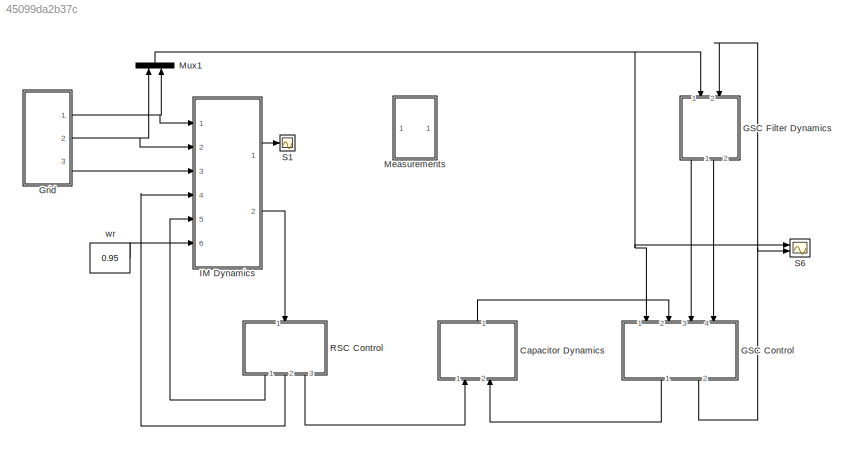
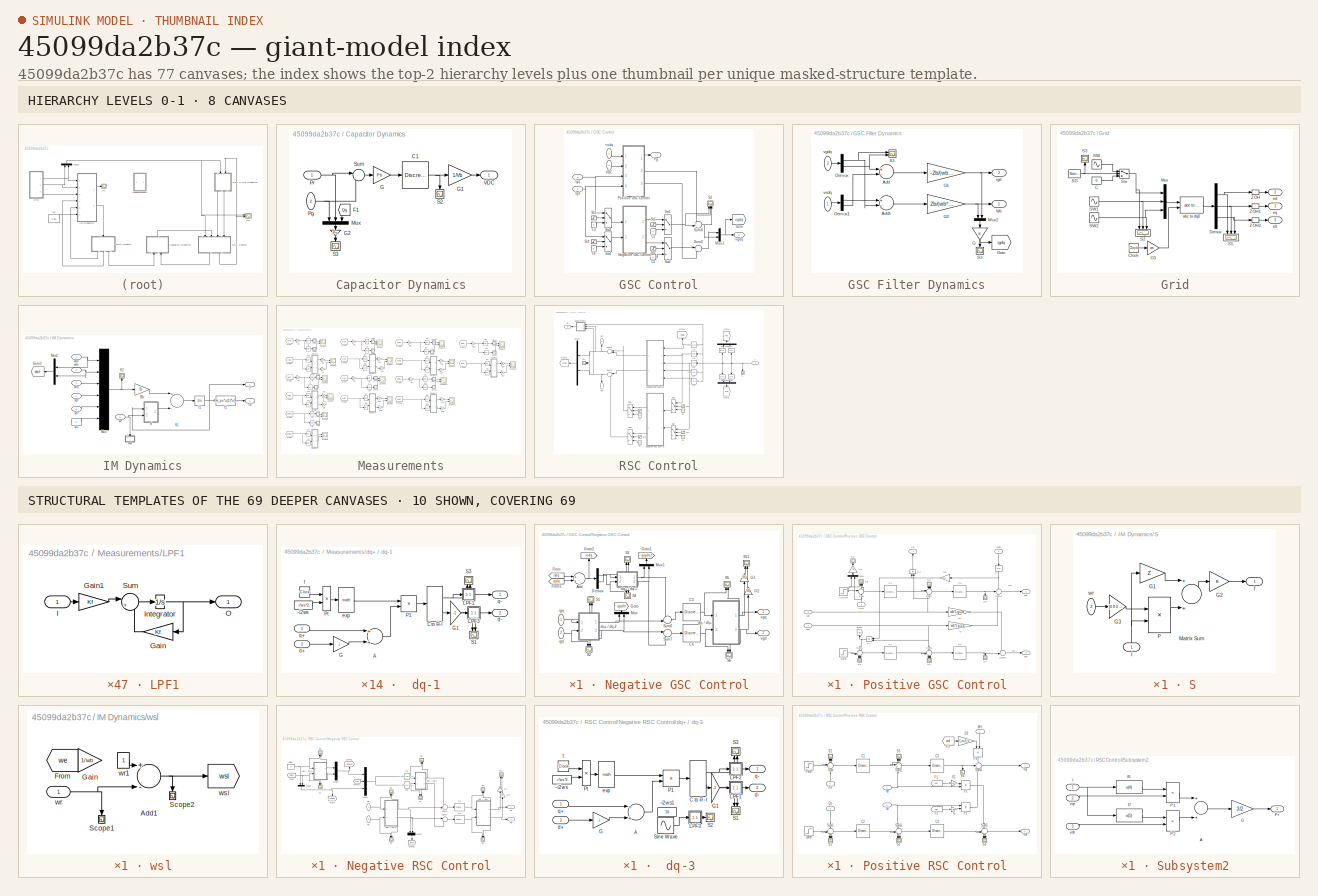
[diagram: thumbnail index - top-2 hierarchy levels (8 canvases) + 10 structural-template representatives of the remaining 69 canvases]
MODEL slx_45099da2b37c
KIND model
BLOCK [SubSystem] Capacitor Dynamics
  FunctionWithSeparateData = off
  MaskHideContents = off
  MinAlgLoopOccurrences = off
  Opaque = off
  Ports = [2, 1]
  PropExecContextOutsideSubsystem = off
  RTWSystemCode = Auto
  RequestExecContextInheritance = off
BLOCK [Reference] Capacitor Dynamics/C1  REF=powerlib_extras/Discrete 
Control Blocks/Discrete
PI Controller
  Init = 1200
  Ki = 1/(C*VDC0)
  Kp = 0
  Par_Limits = [10e5 10e-5]
  Ports = [1, 1]
  SourceBlock = powerlib_extras/Discrete \nControl Blocks/Discrete\nPI Controller
  SourceType = Discrete PI Controller
  Ts = 50e-6
BLOCK [From] Capacitor Dynamics/F1
  GotoTag = Qg
  TagVisibility = global
BLOCK [Gain] Capacitor Dynamics/G
  Gain = Pb
  OutDataTypeStr = Inherit: Inherit via internal rule
  ParamDataTypeStr = Inherit: Inherit via internal rule
  SaturateOnIntegerOverflow = off
BLOCK [Gain] Capacitor Dynamics/G1
  Gain = 1/Vb
  OutDataTypeStr = Inherit: Inherit via internal rule
  ParamDataTypeStr = Inherit: Inherit via internal rule
  SaturateOnIntegerOverflow = off
BLOCK [Gain] Capacitor Dynamics/G2
  Gain = Pb
  OutDataTypeStr = Inherit: Inherit via internal rule
  ParamDataTypeStr = Inherit: Inherit via internal rule
  SaturateOnIntegerOverflow = off
BLOCK [Mux] Capacitor Dynamics/Mux
  DisplayOption = bar
  Inputs = 3
  Ports = [3, 1]
BLOCK [Inport] Capacitor Dynamics/Pg
  IconDisplay = Port number
  Port = 2
BLOCK [Inport] Capacitor Dynamics/Pr
  IconDisplay = Port number
BLOCK [Scope] Capacitor Dynamics/S2
  DataFormat = StructureWithTime
  Floating = off
  LimitDataPoints = off
  NumInputPorts = 1
  Ports = [1]
  SampleTime = 0
  SaveName = ScopeData5
  ShowLegends = off
  YMax = 1300
  YMin = 1100
  ZoomMode = yonly
BLOCK [Scope] Capacitor Dynamics/S3
  DataFormat = StructureWithTime
  Floating = off
  LimitDataPoints = off
  NumInputPorts = 1
  Ports = [1]
  SampleTime = 0
  SaveName = ScopeData12
  ShowLegends = off
  YMax = 55000
  YMin = -50000
  ZoomMode = yonly
BLOCK [Sum] Capacitor Dynamics/Sum
  IconShape = round
  InputSameDT = off
  Inputs = |--
  OutDataTypeStr = Inherit: Inherit via internal rule
  Ports = [2, 1]
  SaturateOnIntegerOverflow = off
BLOCK [Outport] Capacitor Dynamics/VDC
  IconDisplay = Port number
BLOCK [SubSystem] GSC Control
  FunctionWithSeparateData = off
  MaskHideContents = off
  MinAlgLoopOccurrences = off
  Opaque = off
  Ports = [4, 2]
  PropExecContextOutsideSubsystem = off
  RTWSystemCode = Auto
  RequestExecContextInheritance = off
BLOCK [Constant] GSC Control/C1
  Value = 0
BLOCK [Constant] GSC Control/C2
  Value = 0
BLOCK [Constant] GSC Control/C3
  Value = 0
BLOCK [Constant] GSC Control/C4
  Value = 0
BLOCK [Goto] GSC Control/Goto
  GotoTag = vgdq
  TagVisibility = global
BLOCK [Inport] GSC Control/Igd
  IconDisplay = Port number
  Port = 4
BLOCK [Inport] GSC Control/Igq
  IconDisplay = Port number
  Port = 3
BLOCK [Mux] GSC Control/Mux1
  DisplayOption = bar
  Inputs = 2
  Ports = [2, 1]
BLOCK [SubSystem] GSC Control/Negative GSC Control
  FunctionWithSeparateData = off
  MaskHideContents = off
  MinAlgLoopOccurrences = off
  Opaque = off
  Ports = [2, 2]
  PropExecContextOutsideSubsystem = off
  RTWSystemCode = Auto
  RequestExecContextInheritance = off
BLOCK [Sum] GSC Control/Negative GSC Control/Add
  InputSameDT = off
  OutDataTypeStr = Inherit: Inherit via internal rule
  Ports = [2, 1]
  SaturateOnIntegerOverflow = off
BLOCK [Reference] GSC Control/Negative GSC Control/C5  REF=powerlib_extras/Discrete 
Control Blocks/Discrete
PI Controller
  Init = 0
  Ki = 0
  Kp = Kp
  Par_Limits = [10e5 -10e5]
  Ports = [1, 1]
  SourceBlock = powerlib_extras/Discrete \nControl Blocks/Discrete\nPI Controller
  SourceType = Discrete PI Controller
  Ts = 50e-6
BLOCK [Reference] GSC Control/Negative GSC Control/C6  REF=powerlib_extras/Discrete 
Control Blocks/Discrete
PI Controller
  Init = 0
  Ki = 0
  Kp = Kp
  Par_Limits = [10e5 -10e5]
  Ports = [1, 1]
  SourceBlock = powerlib_extras/Discrete \nControl Blocks/Discrete\nPI Controller
  SourceType = Discrete PI Controller
  Ts = 50e-6
BLOCK [Demux] GSC Control/Negative GSC Control/Demux
  DisplayOption = bar
  Outputs = 2
  Ports = [1, 2]
BLOCK [From] GSC Control/Negative GSC Control/From
  GotoTag = isdq
  TagVisibility = global
BLOCK [From] GSC Control/Negative GSC Control/From1
  GotoTag = igdq
  TagVisibility = global
BLOCK [Gain] GSC Control/Negative GSC Control/G1
  Gain = Vb
  OutDataTypeStr = Inherit: Inherit via internal rule
  ParamDataTypeStr = Inherit: Inherit via internal rule
  SaturateOnIntegerOverflow = off
BLOCK [Gain] GSC Control/Negative GSC Control/G2
  Gain = Vb
  OutDataTypeStr = Inherit: Inherit via internal rule
  ParamDataTypeStr = Inherit: Inherit via internal rule
  SaturateOnIntegerOverflow = off
BLOCK [Goto] GSC Control/Negative GSC Control/Goto
  GotoTag = igqdn
  TagVisibility = global
BLOCK [Goto] GSC Control/Negative GSC Control/Goto1
  GotoTag = igqdref
  TagVisibility = global
BLOCK [Goto] GSC Control/Negative GSC Control/Goto2
  GotoTag = iedq
  TagVisibility = global
BLOCK [Mux] GSC Control/Negative GSC Control/Mux
  DisplayOption = bar
  Inputs = 2
  Ports = [2, 1]
BLOCK [Mux] GSC Control/Negative GSC Control/Mux1
  DisplayOption = bar
  Inputs = 2
  Ports = [2, 1]
BLOCK [Scope] GSC Control/Negative GSC Control/S1
  DataFormat = StructureWithTime
  Floating = off
  LimitDataPoints = off
  NumInputPorts = 2
  Ports = [2]
  SampleTime = 0
  SaveName = ScopeData54
  ShowLegends = off
  YMax = 1~1
  YMin = -1~-1
  ZoomMode = xonly
BLOCK [Scope] GSC Control/Negative GSC Control/S11
  DataFormat = StructureWithTime
  Floating = off
  LimitDataPoints = off
  NumInputPorts = 2
  Ports = [2]
  SampleTime = 0
  SaveName = ScopeData28
  ShowLegends = off
  YMax = 1.5~1.5
  YMin = -1.5~-1.5
  ZoomMode = yonly
BLOCK [Scope] GSC Control/Negative GSC Control/S2
  DataFormat = StructureWithTime
  Floating = off
  LimitDataPoints = off
  NumInputPorts = 2
  Ports = [2]
  SampleTime = 0
  SaveName = ScopeData55
  ShowLegends = off
  YMax = 1~1
  YMin = -1~-1
  ZoomMode = xonly
BLOCK [Scope] GSC Control/Negative GSC Control/S3
  DataFormat = StructureWithTime
  Floating = off
  LimitDataPoints = off
  NumInputPorts = 2
  Ports = [2]
  SampleTime = 0
  SaveName = ScopeData56
  ShowLegends = off
  YMax = 1~1
  YMin = -1~-1
  ZoomMode = xonly
BLOCK [Scope] GSC Control/Negative GSC Control/S4
  DataFormat = StructureWithTime
  Floating = off
  LimitDataPoints = off
  NumInputPorts = 2
  Ports = [2]
  SampleTime = 0
  SaveName = ScopeData57
  ShowLegends = off
  YMax = 1~1
  YMin = -1~-1
  ZoomMode = xonly
BLOCK [Scope] GSC Control/Negative GSC Control/S5
  DataFormat = StructureWithTime
  Floating = off
  LimitDataPoints = off
  NumInputPorts = 2
  Ports = [2]
  SampleTime = 0
  SaveName = ScopeData58
  ShowLegends = off
  YMax = 1~1
  YMin = -1~-1
  ZoomMode = xonly
BLOCK [Scope] GSC Control/Negative GSC Control/S6
  DataFormat = StructureWithTime
  Floating = off
  LimitDataPoints = off
  NumInputPorts = 2
  Ports = [2]
  SampleTime = 0
  SaveName = ScopeData59
  ShowLegends = off
  YMax = 1~1
  YMin = -1~-1
  ZoomMode = xonly
BLOCK [Sum] GSC Control/Negative GSC Control/Sum6
  IconShape = round
  InputSameDT = off
  Inputs = +-|
  OutDataTypeStr = Inherit: Inherit via internal rule
  Ports = [2, 1]
  SaturateOnIntegerOverflow = off
BLOCK [Sum] GSC Control/Negative GSC Control/Sum7
  IconShape = round
  InputSameDT = off
  Inputs = |-+
  OutDataTypeStr = Inherit: Inherit via internal rule
  Ports = [2, 1]
  SaturateOnIntegerOverflow = off
BLOCK [SubSystem] GSC Control/Negative GSC Control/dq+ // dq-1
  FunctionWithSeparateData = off
  MaskHideContents = off
  MinAlgLoopOccurrences = off
  Opaque = off
  Ports = [2, 2]
  PropExecContextOutsideSubsystem = off
  RTWSystemCode = Auto
  RequestExecContextInheritance = off
BLOCK [Constant] GSC Control/Negative GSC Control/dq+ // dq-1/-i2ws
  Value = -i*ws*2
BLOCK [Sum] GSC Control/Negative GSC Control/dq+ // dq-1/A
  InputSameDT = off
  OutDataTypeStr = Inherit: Inherit via internal rule
  Ports = [2, 1]
  SaturateOnIntegerOverflow = off
BLOCK [ComplexToRealImag] GSC Control/Negative GSC Control/dq+ // dq-1/C to R-I
  Ports = [1, 2]
BLOCK [Gain] GSC Control/Negative GSC Control/dq+ // dq-1/G
  Gain = -i
  OutDataTypeStr = Inherit: Inherit via internal rule
  ParamDataTypeStr = Inherit: Inherit via internal rule
  SaturateOnIntegerOverflow = off
BLOCK [Gain] GSC Control/Negative GSC Control/dq+ // dq-1/G1
  Gain = -1
  OutDataTypeStr = Inherit: Inherit via internal rule
  ParamDataTypeStr = Inherit: Inherit via internal rule
  SaturateOnIntegerOverflow = off
BLOCK [SubSystem] GSC Control/Negative GSC Control/dq+ // dq-1/LPF1
  FunctionWithSeparateData = off
  MaskHideContents = off
  MinAlgLoopOccurrences = off
  Opaque = off
  Ports = [1, 1]
  PropExecContextOutsideSubsystem = off
  RTWSystemCode = Auto
  RequestExecContextInheritance = off
BLOCK [Gain] GSC Control/Negative GSC Control/dq+ // dq-1/LPF1/Gain
  Gain = Kf
  OutDataTypeStr = Inherit: Inherit via internal rule
  ParamDataTypeStr = Inherit: Inherit via internal rule
  SaturateOnIntegerOverflow = off
BLOCK [Gain] GSC Control/Negative GSC Control/dq+ // dq-1/LPF1/Gain1
  Gain = Kf
  OutDataTypeStr = Inherit: Inherit via internal rule
  ParamDataTypeStr = Inherit: Inherit via internal rule
  SaturateOnIntegerOverflow = off
BLOCK [Inport] GSC Control/Negative GSC Control/dq+ // dq-1/LPF1/I
  IconDisplay = Port number
BLOCK [Integrator] GSC Control/Negative GSC Control/dq+ // dq-1/LPF1/Integrator
  Ports = [1, 1]
BLOCK [Outport] GSC Control/Negative GSC Control/dq+ // dq-1/LPF1/O
  IconDisplay = Port number
BLOCK [Sum] GSC Control/Negative GSC Control/dq+ // dq-1/LPF1/Sum
  IconShape = round
  InputSameDT = off
  Inputs = |+-
  OutDataTypeStr = Inherit: Inherit via internal rule
  Ports = [2, 1]
  SaturateOnIntegerOverflow = off
BLOCK [SubSystem] GSC Control/Negative GSC Control/dq+ // dq-1/LPF3
  FunctionWithSeparateData = off
  MaskHideContents = off
  MinAlgLoopOccurrences = off
  Opaque = off
  Ports = [1, 1]
  PropExecContextOutsideSubsystem = off
  RTWSystemCode = Auto
  RequestExecContextInheritance = off
BLOCK [Gain] GSC Control/Negative GSC Control/dq+ // dq-1/LPF3/Gain
  Gain = Kf
  OutDataTypeStr = Inherit: Inherit via internal rule
  ParamDataTypeStr = Inherit: Inherit via internal rule
  SaturateOnIntegerOverflow = off
BLOCK [Gain] GSC Control/Negative GSC Control/dq+ // dq-1/LPF3/Gain1
  Gain = Kf
  OutDataTypeStr = Inherit: Inherit via internal rule
  ParamDataTypeStr = Inherit: Inherit via internal rule
  SaturateOnIntegerOverflow = off
BLOCK [Inport] GSC Control/Negative GSC Control/dq+ // dq-1/LPF3/I
  IconDisplay = Port number
BLOCK [Integrator] GSC Control/Negative GSC Control/dq+ // dq-1/LPF3/Integrator
  Ports = [1, 1]
BLOCK [Outport] GSC Control/Negative GSC Control/dq+ // dq-1/LPF3/O
  IconDisplay = Port number
BLOCK [Sum] GSC Control/Negative GSC Control/dq+ // dq-1/LPF3/Sum
  IconShape = round
  InputSameDT = off
  Inputs = |+-
  OutDataTypeStr = Inherit: Inherit via internal rule
  Ports = [2, 1]
  SaturateOnIntegerOverflow = off
BLOCK [Product] GSC Control/Negative GSC Control/dq+ // dq-1/P1
  InputSameDT = off
  OutDataTypeStr = Inherit: Inherit via internal rule
  Ports = [2, 1]
  RndMeth = Floor
  SaturateOnIntegerOverflow = off
BLOCK [Product] GSC Control/Negative GSC Control/dq+ // dq-1/Pt
  InputSameDT = off
  OutDataTypeStr = Inherit: Inherit via internal rule
  Ports = [2, 1]
  RndMeth = Floor
  SaturateOnIntegerOverflow = off
BLOCK [Scope] GSC Control/Negative GSC Control/dq+ // dq-1/S1
  DataFormat = StructureWithTime
  Floating = off
  LimitDataPoints = off
  NumInputPorts = 2
  Ports = [2]
  SampleTime = 0
  SaveName = ScopeData69
  ShowLegends = off
  YMax = 1~1
  YMin = -1~-1
  ZoomMode = xonly
BLOCK [Scope] GSC Control/Negative GSC Control/dq+ // dq-1/S3
  DataFormat = StructureWithTime
  Floating = off
  LimitDataPoints = off
  NumInputPorts = 2
  Ports = [2]
  SampleTime = 0
  SaveName = ScopeData68
  ShowLegends = off
  YMax = 1~1
  YMin = -1~-1
  ZoomMode = xonly
BLOCK [Inport] GSC Control/Negative GSC Control/dq+ // dq-1/d+
  IconDisplay = Port number
  Port = 2
BLOCK [Outport] GSC Control/Negative GSC Control/dq+ // dq-1/d-
  IconDisplay = Port number
  Port = 2
BLOCK [Math] GSC Control/Negative GSC Control/dq+ // dq-1/exp
  OutputSignalType = complex
  Ports = [1, 1]
BLOCK [Inport] GSC Control/Negative GSC Control/dq+ // dq-1/q+
  IconDisplay = Port number
BLOCK [Outport] GSC Control/Negative GSC Control/dq+ // dq-1/q-
  IconDisplay = Port number
BLOCK [Clock] GSC Control/Negative GSC Control/dq+ // dq-1/t
BLOCK [SubSystem] GSC Control/Negative GSC Control/dq+ // dq-2
  FunctionWithSeparateData = off
  MaskHideContents = off
  MinAlgLoopOccurrences = off
  Opaque = off
  Ports = [2, 2]
  PropExecContextOutsideSubsystem = off
  RTWSystemCode = Auto
  RequestExecContextInheritance = off
BLOCK [Constant] GSC Control/Negative GSC Control/dq+ // dq-2/-i2ws
  Value = -i*ws*2
BLOCK [Sum] GSC Control/Negative GSC Control/dq+ // dq-2/A
  InputSameDT = off
  OutDataTypeStr = Inherit: Inherit via internal rule
  Ports = [2, 1]
  SaturateOnIntegerOverflow = off
BLOCK [ComplexToRealImag] GSC Control/Negative GSC Control/dq+ // dq-2/C to R-I
  Ports = [1, 2]
BLOCK [Gain] GSC Control/Negative GSC Control/dq+ // dq-2/G
  Gain = -i
  OutDataTypeStr = Inherit: Inherit via internal rule
  ParamDataTypeStr = Inherit: Inherit via internal rule
  SaturateOnIntegerOverflow = off
BLOCK [Gain] GSC Control/Negative GSC Control/dq+ // dq-2/G1
  Gain = -1
  OutDataTypeStr = Inherit: Inherit via internal rule
  ParamDataTypeStr = Inherit: Inherit via internal rule
  SaturateOnIntegerOverflow = off
BLOCK [SubSystem] GSC Control/Negative GSC Control/dq+ // dq-2/LPF1
  FunctionWithSeparateData = off
  MaskHideContents = off
  MinAlgLoopOccurrences = off
  Opaque = off
  Ports = [1, 1]
  PropExecContextOutsideSubsystem = off
  RTWSystemCode = Auto
  RequestExecContextInheritance = off
BLOCK [Gain] GSC Control/Negative GSC Control/dq+ // dq-2/LPF1/Gain
  Gain = Kf
  OutDataTypeStr = Inherit: Inherit via internal rule
  ParamDataTypeStr = Inherit: Inherit via internal rule
  SaturateOnIntegerOverflow = off
BLOCK [Gain] GSC Control/Negative GSC Control/dq+ // dq-2/LPF1/Gain1
  Gain = Kf
  OutDataTypeStr = Inherit: Inherit via internal rule
  ParamDataTypeStr = Inherit: Inherit via internal rule
  SaturateOnIntegerOverflow = off
BLOCK [Inport] GSC Control/Negative GSC Control/dq+ // dq-2/LPF1/I
  IconDisplay = Port number
BLOCK [Integrator] GSC Control/Negative GSC Control/dq+ // dq-2/LPF1/Integrator
  Ports = [1, 1]
BLOCK [Outport] GSC Control/Negative GSC Control/dq+ // dq-2/LPF1/O
  IconDisplay = Port number
BLOCK [Sum] GSC Control/Negative GSC Control/dq+ // dq-2/LPF1/Sum
  IconShape = round
  InputSameDT = off
  Inputs = |+-
  OutDataTypeStr = Inherit: Inherit via internal rule
  Ports = [2, 1]
  SaturateOnIntegerOverflow = off
BLOCK [SubSystem] GSC Control/Negative GSC Control/dq+ // dq-2/LPF3
  FunctionWithSeparateData = off
  MaskHideContents = off
  MinAlgLoopOccurrences = off
  Opaque = off
  Ports = [1, 1]
  PropExecContextOutsideSubsystem = off
  RTWSystemCode = Auto
  RequestExecContextInheritance = off
BLOCK [Gain] GSC Control/Negative GSC Control/dq+ // dq-2/LPF3/Gain
  Gain = Kf
  OutDataTypeStr = Inherit: Inherit via internal rule
  ParamDataTypeStr = Inherit: Inherit via internal rule
  SaturateOnIntegerOverflow = off
BLOCK [Gain] GSC Control/Negative GSC Control/dq+ // dq-2/LPF3/Gain1
  Gain = Kf
  OutDataTypeStr = Inherit: Inherit via internal rule
  ParamDataTypeStr = Inherit: Inherit via internal rule
  SaturateOnIntegerOverflow = off
BLOCK [Inport] GSC Control/Negative GSC Control/dq+ // dq-2/LPF3/I
  IconDisplay = Port number
BLOCK [Integrator] GSC Control/Negative GSC Control/dq+ // dq-2/LPF3/Integrator
  Ports = [1, 1]
BLOCK [Outport] GSC Control/Negative GSC Control/dq+ // dq-2/LPF3/O
  IconDisplay = Port number
BLOCK [Sum] GSC Control/Negative GSC Control/dq+ // dq-2/LPF3/Sum
  IconShape = round
  InputSameDT = off
  Inputs = |+-
  OutDataTypeStr = Inherit: Inherit via internal rule
  Ports = [2, 1]
  SaturateOnIntegerOverflow = off
BLOCK [Product] GSC Control/Negative GSC Control/dq+ // dq-2/P1
  InputSameDT = off
  OutDataTypeStr = Inherit: Inherit via internal rule
  Ports = [2, 1]
  RndMeth = Floor
  SaturateOnIntegerOverflow = off
BLOCK [Product] GSC Control/Negative GSC Control/dq+ // dq-2/Pt
  InputSameDT = off
  OutDataTypeStr = Inherit: Inherit via internal rule
  Ports = [2, 1]
  RndMeth = Floor
  SaturateOnIntegerOverflow = off
BLOCK [Scope] GSC Control/Negative GSC Control/dq+ // dq-2/S11
  DataFormat = StructureWithTime
  Floating = off
  LimitDataPoints = off
  NumInputPorts = 2
  Ports = [2]
  SampleTime = 0
  SaveName = ScopeData52
  ShowLegends = off
  YMax = 0.1~0.1
  YMin = -0.1~-0.1
  ZoomMode = xonly
BLOCK [Scope] GSC Control/Negative GSC Control/dq+ // dq-2/S3
  DataFormat = StructureWithTime
  Floating = off
  LimitDataPoints = off
  NumInputPorts = 2
  Ports = [2]
  SampleTime = 0
  SaveName = ScopeData70
  ShowLegends = off
  YMax = 0.1~0.01
  YMin = -0.1~-0.01
  ZoomMode = xonly
BLOCK [Inport] GSC Control/Negative GSC Control/dq+ // dq-2/d+
  IconDisplay = Port number
  Port = 2
BLOCK [Outport] GSC Control/Negative GSC Control/dq+ // dq-2/d-
  IconDisplay = Port number
  Port = 2
BLOCK [Math] GSC Control/Negative GSC Control/dq+ // dq-2/exp
  OutputSignalType = complex
  Ports = [1, 1]
BLOCK [Inport] GSC Control/Negative GSC Control/dq+ // dq-2/q+
  IconDisplay = Port number
BLOCK [Outport] GSC Control/Negative GSC Control/dq+ // dq-2/q-
  IconDisplay = Port number
BLOCK [Clock] GSC Control/Negative GSC Control/dq+ // dq-2/t
BLOCK [SubSystem] GSC Control/Negative GSC Control/dq- // dq+
  FunctionWithSeparateData = off
  MaskHideContents = off
  MinAlgLoopOccurrences = off
  Opaque = off
  Ports = [2, 2]
  PropExecContextOutsideSubsystem = off
  RTWSystemCode = Auto
  RequestExecContextInheritance = off
BLOCK [Sum] GSC Control/Negative GSC Control/dq- // dq+/Add
  InputSameDT = off
  OutDataTypeStr = Inherit: Inherit via internal rule
  Ports = [2, 1]
  SaturateOnIntegerOverflow = off
BLOCK [ComplexToRealImag] GSC Control/Negative GSC Control/dq- // dq+/Complex to Real-Imag
  Ports = [1, 2]
BLOCK [Gain] GSC Control/Negative GSC Control/dq- // dq+/Gain
  Gain = -i
  OutDataTypeStr = Inherit: Inherit via internal rule
  ParamDataTypeStr = Inherit: Inherit via internal rule
  SaturateOnIntegerOverflow = off
BLOCK [Gain] GSC Control/Negative GSC Control/dq- // dq+/Gain1
  Gain = -1
  OutDataTypeStr = Inherit: Inherit via internal rule
  ParamDataTypeStr = Inherit: Inherit via internal rule
  SaturateOnIntegerOverflow = off
BLOCK [SubSystem] GSC Control/Negative GSC Control/dq- // dq+/LPF2
  FunctionWithSeparateData = off
  MaskHideContents = off
  MinAlgLoopOccurrences = off
  Opaque = off
  Ports = [1, 1]
  PropExecContextOutsideSubsystem = off
  RTWSystemCode = Auto
  RequestExecContextInheritance = off
BLOCK [Gain] GSC Control/Negative GSC Control/dq- // dq+/LPF2/Gain
  Gain = Kf
  OutDataTypeStr = Inherit: Inherit via internal rule
  ParamDataTypeStr = Inherit: Inherit via internal rule
  SaturateOnIntegerOverflow = off
BLOCK [Gain] GSC Control/Negative GSC Control/dq- // dq+/LPF2/Gain1
  Gain = Kf
  OutDataTypeStr = Inherit: Inherit via internal rule
  ParamDataTypeStr = Inherit: Inherit via internal rule
  SaturateOnIntegerOverflow = off
BLOCK [Inport] GSC Control/Negative GSC Control/dq- // dq+/LPF2/I
  IconDisplay = Port number
BLOCK [Integrator] GSC Control/Negative GSC Control/dq- // dq+/LPF2/Integrator
  Ports = [1, 1]
BLOCK [Outport] GSC Control/Negative GSC Control/dq- // dq+/LPF2/O
  IconDisplay = Port number
BLOCK [Sum] GSC Control/Negative GSC Control/dq- // dq+/LPF2/Sum
  IconShape = round
  InputSameDT = off
  Inputs = |+-
  OutDataTypeStr = Inherit: Inherit via internal rule
  Ports = [2, 1]
  SaturateOnIntegerOverflow = off
BLOCK [SubSystem] GSC Control/Negative GSC Control/dq- // dq+/LPF4
  FunctionWithSeparateData = off
  MaskHideContents = off
  MinAlgLoopOccurrences = off
  Opaque = off
  Ports = [1, 1]
  PropExecContextOutsideSubsystem = off
  RTWSystemCode = Auto
  RequestExecContextInheritance = off
BLOCK [Gain] GSC Control/Negative GSC Control/dq- // dq+/LPF4/Gain
  Gain = Kf
  OutDataTypeStr = Inherit: Inherit via internal rule
  ParamDataTypeStr = Inherit: Inherit via internal rule
  SaturateOnIntegerOverflow = off
BLOCK [Gain] GSC Control/Negative GSC Control/dq- // dq+/LPF4/Gain1
  Gain = Kf
  OutDataTypeStr = Inherit: Inherit via internal rule
  ParamDataTypeStr = Inherit: Inherit via internal rule
  SaturateOnIntegerOverflow = off
BLOCK [Inport] GSC Control/Negative GSC Control/dq- // dq+/LPF4/I
  IconDisplay = Port number
BLOCK [Integrator] GSC Control/Negative GSC Control/dq- // dq+/LPF4/Integrator
  Ports = [1, 1]
BLOCK [Outport] GSC Control/Negative GSC Control/dq- // dq+/LPF4/O
  IconDisplay = Port number
BLOCK [Sum] GSC Control/Negative GSC Control/dq- // dq+/LPF4/Sum
  IconShape = round
  InputSameDT = off
  Inputs = |+-
  OutDataTypeStr = Inherit: Inherit via internal rule
  Ports = [2, 1]
  SaturateOnIntegerOverflow = off
BLOCK [Product] GSC Control/Negative GSC Control/dq- // dq+/Product
  InputSameDT = off
  OutDataTypeStr = Inherit: Inherit via internal rule
  Ports = [2, 1]
  RndMeth = Floor
  SaturateOnIntegerOverflow = off
BLOCK [Product] GSC Control/Negative GSC Control/dq- // dq+/Product1
  InputSameDT = off
  OutDataTypeStr = Inherit: Inherit via internal rule
  Ports = [2, 1]
  RndMeth = Floor
  SaturateOnIntegerOverflow = off
BLOCK [Scope] GSC Control/Negative GSC Control/dq- // dq+/S1
  DataFormat = StructureWithTime
  Floating = off
  LimitDataPoints = off
  NumInputPorts = 2
  Ports = [2]
  SampleTime = 0
  SaveName = ScopeData72
  ShowLegends = off
  YMax = 1~1
  YMin = -1~-1
  ZoomMode = xonly
BLOCK [Scope] GSC Control/Negative GSC Control/dq- // dq+/S3
  DataFormat = StructureWithTime
  Floating = off
  LimitDataPoints = off
  NumInputPorts = 2
  Ports = [2]
  SampleTime = 0
  SaveName = ScopeData71
  ShowLegends = off
  YMax = 1~1
  YMin = -1~-1
  ZoomMode = xonly
BLOCK [Outport] GSC Control/Negative GSC Control/dq- // dq+/d+
  IconDisplay = Port number
  Port = 2
BLOCK [Inport] GSC Control/Negative GSC Control/dq- // dq+/d-
  IconDisplay = Port number
  Port = 2
BLOCK [Math] GSC Control/Negative GSC Control/dq- // dq+/exp
  Ports = [1, 1]
BLOCK [Constant] GSC Control/Negative GSC Control/dq- // dq+/i2ws
  Value = i*ws*2
BLOCK [Outport] GSC Control/Negative GSC Control/dq- // dq+/q+
  IconDisplay = Port number
BLOCK [Inport] GSC Control/Negative GSC Control/dq- // dq+/q-
  IconDisplay = Port number
BLOCK [Clock] GSC Control/Negative GSC Control/dq- // dq+/t
BLOCK [Inport] GSC Control/Negative GSC Control/igd
  IconDisplay = Port number
  Port = 2
BLOCK [Inport] GSC Control/Negative GSC Control/igq
  IconDisplay = Port number
BLOCK [Outport] GSC Control/Negative GSC Control/vgd
  IconDisplay = Port number
  Port = 2
BLOCK [Outport] GSC Control/Negative GSC Control/vgq
  IconDisplay = Port number
BLOCK [Outport] GSC Control/Pg
  IconDisplay = Port number
BLOCK [SubSystem] GSC Control/Positive GSC Control
  FunctionWithSeparateData = off
  MaskHideContents = off
  MinAlgLoopOccurrences = off
  Opaque = off
  Ports = [4, 3]
  PropExecContextOutsideSubsystem = off
  RTWSystemCode = Auto
  RequestExecContextInheritance = off
BLOCK [Reference] GSC Control/Positive GSC Control/C1  REF=powerlib_extras/Discrete 
Control Blocks/Discrete
PI Controller
  Init = 0
  Ki = Ki
  Kp = Kp
  Par_Limits = [10e5 -10e5]
  Ports = [1, 1]
  SourceBlock = powerlib_extras/Discrete \nControl Blocks/Discrete\nPI Controller
  SourceType = Discrete PI Controller
  Ts = Ts
BLOCK [Reference] GSC Control/Positive GSC Control/C2  REF=powerlib_extras/Discrete 
Control Blocks/Discrete
PI Controller
  Init = 0
  Ki = Ki
  Kp = Kp
  Par_Limits = [10e5 -10e5]
  Ports = [1, 1]
  SourceBlock = powerlib_extras/Discrete \nControl Blocks/Discrete\nPI Controller
  SourceType = Discrete PI Controller
  Ts = Ts
BLOCK [Reference] GSC Control/Positive GSC Control/C3  REF=powerlib_extras/Discrete 
Control Blocks/Discrete
PI Controller
  Init = 0
  Ki = Ki
  Kp = Kp
  Par_Limits = [1e6 -1e6]
  Ports = [1, 1]
  SourceBlock = powerlib_extras/Discrete \nControl Blocks/Discrete\nPI Controller
  SourceType = Discrete PI Controller
  Ts = Ts
BLOCK [Reference] GSC Control/Positive GSC Control/C4  REF=powerlib_extras/Discrete 
Control Blocks/Discrete
PI Controller
  Init = 0
  Ki = Ki
  Kp = Kp
  Par_Limits = [1e6 -1e6]
  Ports = [1, 1]
  SourceBlock = powerlib_extras/Discrete \nControl Blocks/Discrete\nPI Controller
  SourceType = Discrete PI Controller
  Ts = Ts
BLOCK [Gain] GSC Control/Positive GSC Control/G
  Gain = wb*Lg/Zb
  OutDataTypeStr = Inherit: Inherit via internal rule
  ParamDataTypeStr = Inherit: Inherit via internal rule
  SaturateOnIntegerOverflow = off
BLOCK [Gain] GSC Control/Positive GSC Control/G1
  Gain = wb*Lg/Zb
  OutDataTypeStr = Inherit: Inherit via internal rule
  ParamDataTypeStr = Inherit: Inherit via internal rule
  SaturateOnIntegerOverflow = off
BLOCK [Gain] GSC Control/Positive GSC Control/G4
  Gain = Vb
  OutDataTypeStr = Inherit: Inherit via internal rule
  ParamDataTypeStr = Inherit: Inherit via internal rule
  SaturateOnIntegerOverflow = off
BLOCK [Gain] GSC Control/Positive GSC Control/G5
  Gain = 3/2
  OutDataTypeStr = Inherit: Inherit via internal rule
  ParamDataTypeStr = Inherit: Inherit via internal rule
  SaturateOnIntegerOverflow = off
BLOCK [Goto] GSC Control/Positive GSC Control/Goto
  GotoTag = Qg
  TagVisibility = global
BLOCK [Mux] GSC Control/Positive GSC Control/Mux
  DisplayOption = bar
  Inputs = 2
  Ports = [2, 1]
BLOCK [Product] GSC Control/Positive GSC Control/P1
  InputSameDT = off
  OutDataTypeStr = Inherit: Inherit via internal rule
  Ports = [2, 1]
  RndMeth = Floor
  SaturateOnIntegerOverflow = off
BLOCK [Product] GSC Control/Positive GSC Control/P2
  InputSameDT = off
  OutDataTypeStr = Inherit: Inherit via internal rule
  Ports = [2, 1]
  RndMeth = Floor
  SaturateOnIntegerOverflow = off
BLOCK [Outport] GSC Control/Positive GSC Control/Pg
  IconDisplay = Port number
BLOCK [Step] GSC Control/Positive GSC Control/Qgref
  After = 0
  SampleTime = 0
  Time = 0
BLOCK [Scope] GSC Control/Positive GSC Control/S1
  DataFormat = StructureWithTime
  Floating = off
  LimitDataPoints = off
  NumInputPorts = 3
  Ports = [3]
  SampleTime = 0
  SaveName = ScopeData6
  ShowLegends = off
  YMax = -950000~-3.7266e+22~4.11888e+22
  YMin = -1.05e+06~-4.11888e+22~3.7266e+22
  ZoomMode = yonly
BLOCK [Scope] GSC Control/Positive GSC Control/S2
  DataFormat = StructureWithTime
  Floating = off
  LimitDataPoints = off
  NumInputPorts = 3
  Ports = [3]
  SampleTime = 0
  SaveName = ScopeData2
  ShowLegends = off
  YMax = 0.039536~-5.31635e+28~5.87597e+28
  YMin = 0.0357706~-5.87597e+28~5.31635e+28
  ZoomMode = yonly
BLOCK [Scope] GSC Control/Positive GSC Control/S3
  DataFormat = StructureWithTime
  Floating = off
  LimitDataPoints = off
  NumInputPorts = 1
  Ports = [1]
  SampleTime = 0
  SaveName = ScopeData22
  ShowLegends = off
  YMax = 1210
  YMin = 1190
  ZoomMode = yonly
BLOCK [Scope] GSC Control/Positive GSC Control/S4
  DataFormat = StructureWithTime
  Floating = off
  LimitDataPoints = off
  NumInputPorts = 3
  Ports = [3]
  SampleTime = 0
  SaveName = ScopeData9
  ShowLegends = off
  YMax = 0.25~0.25~0.25
  YMin = -0.25~-0.25~-0.25
BLOCK [Scope] GSC Control/Positive GSC Control/S5
  DataFormat = StructureWithTime
  Floating = off
  LimitDataPoints = off
  NumInputPorts = 3
  Ports = [3]
  SampleTime = 0
  SaveName = ScopeData11
  ShowLegends = off
  YMax = 3.04~3.04~0.02
  YMin = 2.99~2.99~-0.02
  ZoomMode = xonly
BLOCK [Scope] GSC Control/Positive GSC Control/S6
  DataFormat = StructureWithTime
  Floating = off
  LimitDataPoints = off
  NumInputPorts = 1
  Ports = [1]
  SampleTime = 0
  SaveName = ScopeData24
  ShowLegends = off
  TimeRange = 0.1
  YMax = 1
  YMin = -1
  ZoomMode = yonly
BLOCK [Scope] GSC Control/Positive GSC Control/S7
  DataFormat = StructureWithTime
  Floating = off
  LimitDataPoints = off
  NumInputPorts = 1
  Ports = [1]
  SampleTime = 0
  SaveName = ScopeData25
  ShowLegends = off
  TimeRange = 50
  YMax = 1
  YMin = -1
  ZoomMode = yonly
BLOCK [Sum] GSC Control/Positive GSC Control/Sum
  IconShape = round
  InputSameDT = off
  Inputs = |-+
  OutDataTypeStr = Inherit: Inherit via internal rule
  Ports = [2, 1]
  SaturateOnIntegerOverflow = off
BLOCK [Sum] GSC Control/Positive GSC Control/Sum1
  IconShape = round
  InputSameDT = off
  Inputs = +-|
  OutDataTypeStr = Inherit: Inherit via internal rule
  Ports = [2, 1]
  SaturateOnIntegerOverflow = off
BLOCK [Sum] GSC Control/Positive GSC Control/Sum2
  IconShape = round
  InputSameDT = off
  Inputs = |+-
  OutDataTypeStr = Inherit: Inherit via internal rule
  Ports = [2, 1]
  SaturateOnIntegerOverflow = off
BLOCK [Sum] GSC Control/Positive GSC Control/Sum3
  IconShape = round
  InputSameDT = off
  Inputs = -+|
  OutDataTypeStr = Inherit: Inherit via internal rule
  Ports = [2, 1]
  SaturateOnIntegerOverflow = off
BLOCK [Sum] GSC Control/Positive GSC Control/Sum4
  IconShape = round
  InputSameDT = off
  Inputs = +++
  OutDataTypeStr = Inherit: Inherit via internal rule
  Ports = [3, 1]
  SaturateOnIntegerOverflow = off
BLOCK [Sum] GSC Control/Positive GSC Control/Sum5
  IconShape = round
  InputSameDT = off
  Inputs = -+|
  OutDataTypeStr = Inherit: Inherit via internal rule
  Ports = [2, 1]
  SaturateOnIntegerOverflow = off
BLOCK [Inport] GSC Control/Positive GSC Control/VDC
  IconDisplay = Port number
  Port = 2
BLOCK [Step] GSC Control/Positive GSC Control/VDCref
  After = 1200/Vb
  Before = 1200/Vb
  SampleTime = 0
  Time = 0
BLOCK [Fcn] GSC Control/Positive GSC Control/f1
  Expr = u(2)
BLOCK [Inport] GSC Control/Positive GSC Control/igd
  IconDisplay = Port number
  Port = 4
BLOCK [Inport] GSC Control/Positive GSC Control/igq
  IconDisplay = Port number
  Port = 3
BLOCK [Outport] GSC Control/Positive GSC Control/vgd
  IconDisplay = Port number
  Port = 3
BLOCK [Outport] GSC Control/Positive GSC Control/vgq
  IconDisplay = Port number
  Port = 2
BLOCK [Inport] GSC Control/Positive GSC Control/vsdq
  IconDisplay = Port number
BLOCK [Scope] GSC Control/S2
  DataFormat = StructureWithTime
  Floating = off
  LimitDataPoints = off
  NumInputPorts = 3
  Ports = [3]
  SampleTime = 0
  SaveName = ScopeData53
  ShowLegends = off
  YMax = 0.001~2~1.4147
  YMin = -0.001~0~1.4137
  ZoomMode = yonly
BLOCK [Step] GSC Control/St1
  Before = -1
  SampleTime = 0
  Time = Tcomp
BLOCK [Step] GSC Control/St2
  Before = -1
  SampleTime = 0
  Time = Tcomp
BLOCK [Step] GSC Control/St3
  Before = -1
  SampleTime = 0
  Time = Tcomp
BLOCK [Step] GSC Control/St4
  Before = -1
  SampleTime = 0
  Time = Tcomp
BLOCK [Sum] GSC Control/Sum8
  IconShape = round
  InputSameDT = off
  Inputs = ++|
  OutDataTypeStr = Inherit: Inherit via internal rule
  Ports = [2, 1]
  SaturateOnIntegerOverflow = off
BLOCK [Sum] GSC Control/Sum9
  IconShape = round
  InputSameDT = off
  Inputs = |++
  OutDataTypeStr = Inherit: Inherit via internal rule
  Ports = [2, 1]
  SaturateOnIntegerOverflow = off
BLOCK [Switch] GSC Control/Sw1
  InputSameDT = off
  SampleTime = Ts
  SaturateOnIntegerOverflow = off
BLOCK [Switch] GSC Control/Sw2
  InputSameDT = off
  SampleTime = Ts
  SaturateOnIntegerOverflow = off
BLOCK [Switch] GSC Control/Sw3
  InputSameDT = off
  SaturateOnIntegerOverflow = off
BLOCK [Switch] GSC Control/Sw4
  InputSameDT = off
  SaturateOnIntegerOverflow = off
BLOCK [Inport] GSC Control/VDC
  IconDisplay = Port number
  Port = 2
BLOCK [Outport] GSC Control/vgdq
  IconDisplay = Port number
  Port = 2
BLOCK [Inport] GSC Control/vsdq
  IconDisplay = Port number
BLOCK [SubSystem] GSC Filter Dynamics
  FunctionWithSeparateData = off
  MaskHideContents = off
  MinAlgLoopOccurrences = off
  Opaque = off
  Ports = [2, 2]
  PropExecContextOutsideSubsystem = off
  RTWSystemCode = Auto
  RequestExecContextInheritance = off
BLOCK [Sum] GSC Filter Dynamics/Add
  InputSameDT = off
  Inputs = +-
  OutDataTypeStr = Inherit: Inherit via internal rule
  Ports = [2, 1]
  SaturateOnIntegerOverflow = off
BLOCK [Sum] GSC Filter Dynamics/Add1
  InputSameDT = off
  Inputs = +-
  OutDataTypeStr = Inherit: Inherit via internal rule
  Ports = [2, 1]
  SaturateOnIntegerOverflow = off
BLOCK [Demux] GSC Filter Dynamics/Demux
  DisplayOption = bar
  Outputs = 2
  Ports = [1, 2]
BLOCK [Demux] GSC Filter Dynamics/Demux1
  DisplayOption = bar
  Outputs = 2
  Ports = [1, 2]
BLOCK [Gain] GSC Filter Dynamics/G
  OutDataTypeStr = Inherit: Inherit via internal rule
  ParamDataTypeStr = Inherit: Inherit via internal rule
  SaturateOnIntegerOverflow = off
BLOCK [Gain] GSC Filter Dynamics/G1
  Gain = -Zb/(wb*Lg)
  OutDataTypeStr = Inherit: Inherit via internal rule
  ParamDataTypeStr = Inherit: Inherit via internal rule
  SaturateOnIntegerOverflow = off
BLOCK [Gain] GSC Filter Dynamics/G2
  Gain = Zb/(wb*Lg)
  OutDataTypeStr = Inherit: Inherit via internal rule
  ParamDataTypeStr = Inherit: Inherit via internal rule
  SaturateOnIntegerOverflow = off
BLOCK [Goto] GSC Filter Dynamics/Goto
  GotoTag = igdq
  TagVisibility = global
BLOCK [Mux] GSC Filter Dynamics/Mux2
  DisplayOption = bar
  Inputs = 2
  Ports = [2, 1]
BLOCK [Scope] GSC Filter Dynamics/S1
  DataFormat = StructureWithTime
  Floating = off
  LimitDataPoints = off
  NumInputPorts = 2
  Ports = [2]
  SampleTime = 0
  SaveName = ScopeData31
  ShowLegends = off
  YMax = 1.4505e+20~-4.64517e+16
  YMin = 1.31236e+20~-5.13413e+16
  ZoomMode = xonly
BLOCK [Scope] GSC Filter Dynamics/S3
  DataFormat = StructureWithTime
  Floating = off
  LimitDataPoints = off
  NumInputPorts = 1
  Ports = [1]
  SampleTime = 0
  SaveName = ScopeData10
  ShowLegends = off
  YMax = 1
  YMin = -1
  ZoomMode = xonly
BLOCK [Outport] GSC Filter Dynamics/igd
  IconDisplay = Port number
  Port = 2
BLOCK [Outport] GSC Filter Dynamics/igq
  IconDisplay = Port number
BLOCK [Inport] GSC Filter Dynamics/vgdq
  IconDisplay = Port number
  Port = 2
BLOCK [Inport] GSC Filter Dynamics/vsdq
  IconDisplay = Port number
BLOCK [SubSystem] Grid
  FunctionWithSeparateData = off
  MaskHideContents = off
  MinAlgLoopOccurrences = off
  Opaque = off
  Ports = [0, 3]
  PropExecContextOutsideSubsystem = off
  RTWSystemCode = Auto
  RequestExecContextInheritance = off
BLOCK [Constant] Grid/C
  Value = 0
BLOCK [Clock] Grid/Clock
BLOCK [Demux] Grid/Demux
  DisplayOption = bar
  Outputs = 3
  Ports = [1, 3]
BLOCK [Gain] Grid/G3
  Gain = ws
  OutDataTypeStr = Inherit: Inherit via internal rule
  ParamDataTypeStr = Inherit: Inherit via internal rule
  SaturateOnIntegerOverflow = off
BLOCK [Mux] Grid/Mux
  DisplayOption = bar
  Inputs = 3
  Ports = [3, 1]
BLOCK [Scope] Grid/S2
  DataFormat = StructureWithTime
  Floating = off
  LimitDataPoints = off
  NumInputPorts = 3
  Ports = [3]
  SampleTime = 0
  SaveName = ScopeData21
  ShowLegends = off
  YMax = 1.5~1.5~1.5
  YMin = -1.5~-1.5~-1.5
  ZoomMode = xonly
BLOCK [Scope] Grid/S3
  DataFormat = StructureWithTime
  Floating = off
  LimitDataPoints = off
  NumInputPorts = 1
  Ports = [1]
  SampleTime = 0
  SaveName = ScopeData32
  ShowLegends = off
  YMax = 1
  YMin = 1
  ZoomMode = yonly
BLOCK [Scope] Grid/S5
  DataFormat = StructureWithTime
  Floating = off
  LimitDataPoints = off
  NumInputPorts = 3
  Ports = [3]
  SampleTime = 0
  SaveName = ScopeData83
  ShowLegends = off
  YMax = 1.5~1.5~1.5
  YMin = -1.5~-1.5~-1.5
  ZoomMode = yonly
BLOCK [Reference] Grid/SG  REF=powerlib_meascontrol/Pulse & Signal
Generators/Stair
Generator
  Ports = [0, 1]
  SourceBlock = powerlib_meascontrol/Pulse & Signal\nGenerators/Stair\nGenerator
  SourceType = Stair Generator
  Ts = 0
  e = [1, -1, 1]
  t = [0, 10, 15]
BLOCK [Sin] Grid/SW
  Amplitude = sqrt(2)
  Frequency = ws
  Phase = 90*(pi/180)
  Ports = [0, 1]
  SampleTime = 0
BLOCK [Sin] Grid/SW1
  Amplitude = sqrt(2)
  Frequency = ws
  Phase = -30*(pi/180)
  Ports = [0, 1]
  SampleTime = 0
BLOCK [Sin] Grid/SW2
  Amplitude = sqrt(2)
  Frequency = ws
  Phase = -150*(pi/180)
  Ports = [0, 1]
  SampleTime = 0
BLOCK [Switch] Grid/Sw
  InputSameDT = off
  SaturateOnIntegerOverflow = off
BLOCK [ZeroOrderHold] Grid/ZOH
  SampleTime = Ts
BLOCK [ZeroOrderHold] Grid/ZOH1
  SampleTime = Ts
BLOCK [ZeroOrderHold] Grid/ZOH2
  SampleTime = Ts
BLOCK [Reference] Grid/abc to dq0  REF=powerlib_meascontrol/Transformations/abc to dq0
  Alignment = 90 degrees behind phase A axis
  Ports = [2, 1]
  SourceBlock = powerlib_meascontrol/Transformations/abc to dq0
  SourceType = abc to dq0 Transformation
BLOCK [Outport] Grid/e0
  IconDisplay = Port number
  Port = 3
BLOCK [Outport] Grid/ed
  IconDisplay = Port number
  Port = 2
BLOCK [Outport] Grid/eq
  IconDisplay = Port number
BLOCK [SubSystem] IM Dynamics
  FunctionWithSeparateData = off
  MaskHideContents = off
  MinAlgLoopOccurrences = off
  Opaque = off
  Ports = [6, 2]
  PropExecContextOutsideSubsystem = off
  RTWSystemCode = Auto
  RequestExecContextInheritance = off
BLOCK [Gain] IM Dynamics/Bb
  Gain = B
  Multiplication = Matrix(K*u)
  OutDataTypeStr = Inherit: Inherit via internal rule
  ParamDataTypeStr = Inherit: Inherit via internal rule
  SaturateOnIntegerOverflow = off
BLOCK [Goto] IM Dynamics/Goto2
  GotoTag = vsqd
  TagVisibility = global
BLOCK [Outport] IM Dynamics/I
  IconDisplay = Port number
  Port = 2
BLOCK [Integrator] IM Dynamics/I1
  InitialCondition = [-0.5648; 0; 0; 0.578; 0.3585; 0]
  LowerSaturationLimit = -[2; 2; 2; 2; 2; 2]
  Ports = [1, 1]
  UpperSaturationLimit = [2; 2; 2; 2; 2; 2]
BLOCK [Mux] IM Dynamics/Mux
  DisplayOption = bar
  Inputs = 6
  Ports = [6, 1]
BLOCK [Mux] IM Dynamics/Mux2
  DisplayOption = bar
  Inputs = 2
  Ports = [2, 1]
BLOCK [SubSystem] IM Dynamics/S
  FunctionWithSeparateData = off
  MaskHideContents = off
  MinAlgLoopOccurrences = off
  Opaque = off
  Ports = [2, 1]
  PropExecContextOutsideSubsystem = off
  RTWSystemCode = Auto
  RequestExecContextInheritance = off
BLOCK [Gain] IM Dynamics/S/G1
  Gain = Z
  Multiplication = Matrix(K*u)
  OutDataTypeStr = Inherit: Inherit via internal rule
  ParamDataTypeStr = Inherit: Inherit via internal rule
  SaturateOnIntegerOverflow = off
BLOCK [Gain] IM Dynamics/S/G2
  Gain = B
  Multiplication = Matrix(K*u)
  OutDataTypeStr = Inherit: Inherit via internal rule
  ParamDataTypeStr = Inherit: Inherit via internal rule
  SaturateOnIntegerOverflow = off
BLOCK [Gain] IM Dynamics/S/G3
  Gain = [0 0 0 0 0 0;0 0 0 0 0 0;0 0 0 0 0 0;0 -Xm_pu 0 0 -Xr_pu 0;Xm_pu 0 0 Xr_pu 0 0;0 0 0 0 0 0]
  OutDataTypeStr = Inherit: Inherit via internal rule
  ParamDataTypeStr = Inherit: Inherit via internal rule
  SaturateOnIntegerOverflow = off
BLOCK [Inport] IM Dynamics/S/I
  IconDisplay = Port number
BLOCK [Outport] IM Dynamics/S/I'
  IconDisplay = Port number
BLOCK [Sum] IM Dynamics/S/Matrix Sum
  InputSameDT = off
  OutDataTypeStr = Inherit: Inherit via internal rule
  Ports = [2, 1]
  SaturateOnIntegerOverflow = off
BLOCK [Product] IM Dynamics/S/P
  InputSameDT = off
  Multiplication = Matrix(*)
  OutDataTypeStr = Inherit: Inherit via internal rule
  Ports = [2, 1]
  RndMeth = Floor
  SaturateOnIntegerOverflow = off
BLOCK [Inport] IM Dynamics/S/wr
  IconDisplay = Port number
  Port = 2
BLOCK [Sum] IM Dynamics/S1
  InputSameDT = off
  Inputs = +-
  OutDataTypeStr = Inherit: Inherit via internal rule
  Ports = [2, 1]
  SaturateOnIntegerOverflow = off
BLOCK [Scope] IM Dynamics/S2
  DataFormat = StructureWithTime
  Floating = off
  LimitDataPoints = off
  NumInputPorts = 1
  Ports = [1]
  SampleTime = 0
  SaveName = ScopeData8
  ShowLegends = off
  YMax = 1.05e+06
  YMin = 950000
  ZoomMode = yonly
BLOCK [Outport] IM Dynamics/Te
  IconDisplay = Port number
BLOCK [Fcn] IM Dynamics/f1
  Expr = Xm_pu*u(1)*u(5)-Xm_pu*u(2)*u(4)
BLOCK [Constant] IM Dynamics/v0r
  Value = 0
BLOCK [Inport] IM Dynamics/v0s
  IconDisplay = Port number
  Port = 3
BLOCK [Inport] IM Dynamics/vdr
  IconDisplay = Port number
  Port = 5
BLOCK [Inport] IM Dynamics/vds
  IconDisplay = Port number
  Port = 2
BLOCK [Inport] IM Dynamics/vqr
  IconDisplay = Port number
  Port = 4
BLOCK [Inport] IM Dynamics/vqs
  IconDisplay = Port number
BLOCK [Inport] IM Dynamics/wr
  IconDisplay = Port number
  Port = 6
BLOCK [SubSystem] IM Dynamics/wsl
  FunctionWithSeparateData = off
  MaskHideContents = off
  MinAlgLoopOccurrences = off
  Opaque = off
  Ports = [1]
  PropExecContextOutsideSubsystem = off
  RTWSystemCode = Auto
  RequestExecContextInheritance = off
BLOCK [Sum] IM Dynamics/wsl/Add1
  InputSameDT = off
  Inputs = +-
  OutDataTypeStr = Inherit: Inherit via internal rule
  Ports = [2, 1]
  SaturateOnIntegerOverflow = off
BLOCK [From] IM Dynamics/wsl/From
  GotoTag = we
BLOCK [Gain] IM Dynamics/wsl/Gain
  Gain = 1/wb
  OutDataTypeStr = Inherit: Inherit via internal rule
  ParamDataTypeStr = Inherit: Inherit via internal rule
  SaturateOnIntegerOverflow = off
BLOCK [Scope] IM Dynamics/wsl/Scope1
  DataFormat = StructureWithTime
  Floating = off
  LimitDataPoints = off
  NumInputPorts = 1
  Ports = [1]
  SampleTime = 0
  SaveName = ScopeData13
  ShowLegends = off
  YMax = 0.9975
  YMin = 0.9025
  ZoomMode = yonly
BLOCK [Scope] IM Dynamics/wsl/Scope2
  DataFormat = StructureWithTime
  Floating = off
  LimitDataPoints = off
  NumInputPorts = 1
  Ports = [1]
  SampleTime = 0
  SaveName = ScopeData18
  ShowLegends = off
  YMax = 0.0525
  YMin = 0.0475
  ZoomMode = yonly
BLOCK [Inport] IM Dynamics/wsl/wr
  IconDisplay = Port number
BLOCK [Constant] IM Dynamics/wsl/wr1
BLOCK [Goto] IM Dynamics/wsl/wsl
  GotoTag = wsl
  TagVisibility = global
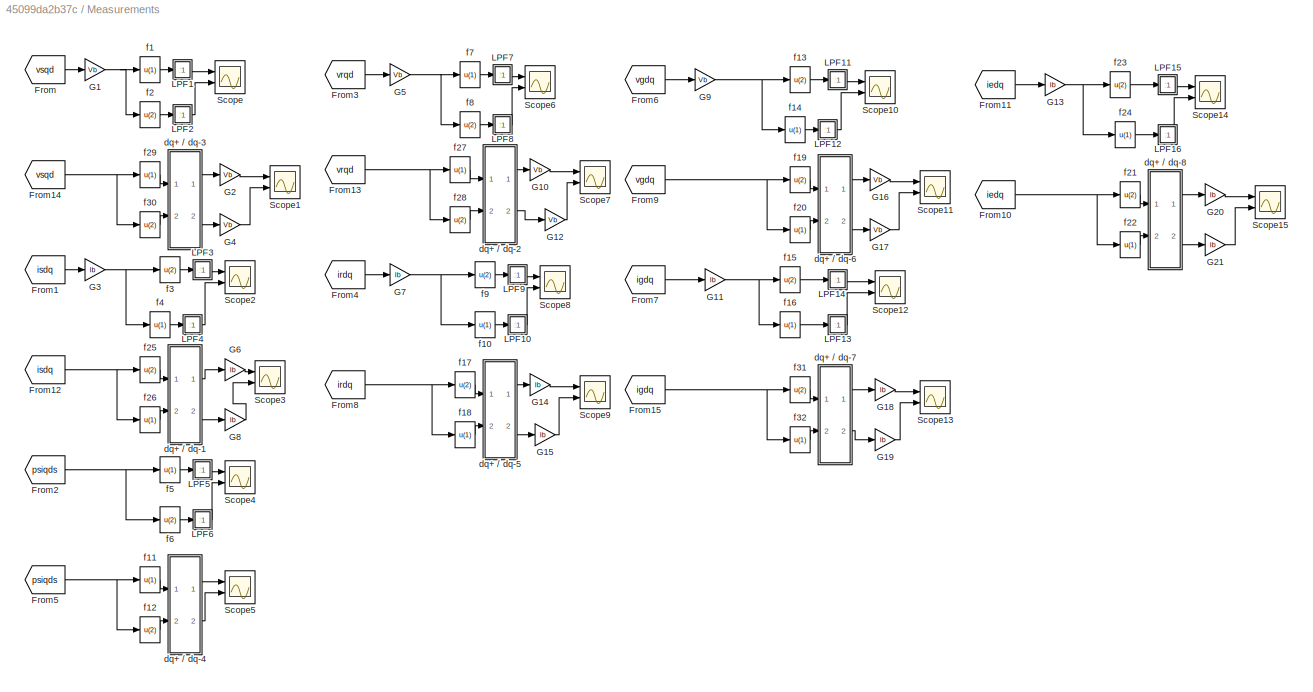
BLOCK [SubSystem] Measurements
  FunctionWithSeparateData = off
  MaskHideContents = off
  MinAlgLoopOccurrences = off
  Opaque = off
  Ports = []
  PropExecContextOutsideSubsystem = off
  RTWSystemCode = Auto
  RequestExecContextInheritance = off
BLOCK [From] Measurements/From
  GotoTag = vsqd
  TagVisibility = global
BLOCK [From] Measurements/From1
  GotoTag = isdq
  TagVisibility = global
BLOCK [From] Measurements/From10
  GotoTag = iedq
  TagVisibility = global
BLOCK [From] Measurements/From11
  GotoTag = iedq
  TagVisibility = global
BLOCK [From] Measurements/From12
  GotoTag = isdq
  TagVisibility = global
BLOCK [From] Measurements/From13
  GotoTag = vrqd
  TagVisibility = global
BLOCK [From] Measurements/From14
  GotoTag = vsqd
  TagVisibility = global
BLOCK [From] Measurements/From15
  GotoTag = igdq
  TagVisibility = global
BLOCK [From] Measurements/From2
  GotoTag = psiqds
  TagVisibility = global
BLOCK [From] Measurements/From3
  GotoTag = vrqd
  TagVisibility = global
BLOCK [From] Measurements/From4
  GotoTag = irdq
  TagVisibility = global
BLOCK [From] Measurements/From5
  GotoTag = psiqds
  TagVisibility = global
BLOCK [From] Measurements/From6
  GotoTag = vgdq
  TagVisibility = global
BLOCK [From] Measurements/From7
  GotoTag = igdq
  TagVisibility = global
BLOCK [From] Measurements/From8
  GotoTag = irdq
  TagVisibility = global
BLOCK [From] Measurements/From9
  GotoTag = vgdq
  TagVisibility = global
BLOCK [Gain] Measurements/G1
  Gain = Vb
  OutDataTypeStr = Inherit: Inherit via internal rule
  ParamDataTypeStr = Inherit: Inherit via internal rule
  SaturateOnIntegerOverflow = off
BLOCK [Gain] Measurements/G10
  Gain = Vb
  OutDataTypeStr = Inherit: Inherit via internal rule
  ParamDataTypeStr = Inherit: Inherit via internal rule
  SaturateOnIntegerOverflow = off
BLOCK [Gain] Measurements/G11
  Gain = Ib
  OutDataTypeStr = Inherit: Inherit via internal rule
  ParamDataTypeStr = Inherit: Inherit via internal rule
  SaturateOnIntegerOverflow = off
BLOCK [Gain] Measurements/G12
  Gain = Vb
  OutDataTypeStr = Inherit: Inherit via internal rule
  ParamDataTypeStr = Inherit: Inherit via internal rule
  SaturateOnIntegerOverflow = off
BLOCK [Gain] Measurements/G13
  Gain = Ib
  OutDataTypeStr = Inherit: Inherit via internal rule
  ParamDataTypeStr = Inherit: Inherit via internal rule
  SaturateOnIntegerOverflow = off
BLOCK [Gain] Measurements/G14
  Gain = Ib
  OutDataTypeStr = Inherit: Inherit via internal rule
  ParamDataTypeStr = Inherit: Inherit via internal rule
  SaturateOnIntegerOverflow = off
BLOCK [Gain] Measurements/G15
  Gain = Ib
  OutDataTypeStr = Inherit: Inherit via internal rule
  ParamDataTypeStr = Inherit: Inherit via internal rule
  SaturateOnIntegerOverflow = off
BLOCK [Gain] Measurements/G16
  Gain = Vb
  OutDataTypeStr = Inherit: Inherit via internal rule
  ParamDataTypeStr = Inherit: Inherit via internal rule
  SaturateOnIntegerOverflow = off
BLOCK [Gain] Measurements/G17
  Gain = Vb
  OutDataTypeStr = Inherit: Inherit via internal rule
  ParamDataTypeStr = Inherit: Inherit via internal rule
  SaturateOnIntegerOverflow = off
BLOCK [Gain] Measurements/G18
  Gain = Ib
  OutDataTypeStr = Inherit: Inherit via internal rule
  ParamDataTypeStr = Inherit: Inherit via internal rule
  SaturateOnIntegerOverflow = off
BLOCK [Gain] Measurements/G19
  Gain = Ib
  OutDataTypeStr = Inherit: Inherit via internal rule
  ParamDataTypeStr = Inherit: Inherit via internal rule
  SaturateOnIntegerOverflow = off
BLOCK [Gain] Measurements/G2
  Gain = Vb
  OutDataTypeStr = Inherit: Inherit via internal rule
  ParamDataTypeStr = Inherit: Inherit via internal rule
  SaturateOnIntegerOverflow = off
BLOCK [Gain] Measurements/G20
  Gain = Ib
  OutDataTypeStr = Inherit: Inherit via internal rule
  ParamDataTypeStr = Inherit: Inherit via internal rule
  SaturateOnIntegerOverflow = off
BLOCK [Gain] Measurements/G21
  Gain = Ib
  OutDataTypeStr = Inherit: Inherit via internal rule
  ParamDataTypeStr = Inherit: Inherit via internal rule
  SaturateOnIntegerOverflow = off
BLOCK [Gain] Measurements/G3
  Gain = Ib
  OutDataTypeStr = Inherit: Inherit via internal rule
  ParamDataTypeStr = Inherit: Inherit via internal rule
  SaturateOnIntegerOverflow = off
BLOCK [Gain] Measurements/G4
  Gain = Vb
  OutDataTypeStr = Inherit: Inherit via internal rule
  ParamDataTypeStr = Inherit: Inherit via internal rule
  SaturateOnIntegerOverflow = off
BLOCK [Gain] Measurements/G5
  Gain = Vb
  OutDataTypeStr = Inherit: Inherit via internal rule
  ParamDataTypeStr = Inherit: Inherit via internal rule
  SaturateOnIntegerOverflow = off
BLOCK [Gain] Measurements/G6
  Gain = Ib
  OutDataTypeStr = Inherit: Inherit via internal rule
  ParamDataTypeStr = Inherit: Inherit via internal rule
  SaturateOnIntegerOverflow = off
BLOCK [Gain] Measurements/G7
  Gain = Ib
  OutDataTypeStr = Inherit: Inherit via internal rule
  ParamDataTypeStr = Inherit: Inherit via internal rule
  SaturateOnIntegerOverflow = off
BLOCK [Gain] Measurements/G8
  Gain = Ib
  OutDataTypeStr = Inherit: Inherit via internal rule
  ParamDataTypeStr = Inherit: Inherit via internal rule
  SaturateOnIntegerOverflow = off
BLOCK [Gain] Measurements/G9
  Gain = Vb
  OutDataTypeStr = Inherit: Inherit via internal rule
  ParamDataTypeStr = Inherit: Inherit via internal rule
  SaturateOnIntegerOverflow = off
BLOCK [SubSystem] Measurements/LPF1
  FunctionWithSeparateData = off
  MaskHideContents = off
  MinAlgLoopOccurrences = off
  Opaque = off
  Ports = [1, 1]
  PropExecContextOutsideSubsystem = off
  RTWSystemCode = Auto
  RequestExecContextInheritance = off
BLOCK [Gain] Measurements/LPF1/Gain
  Gain = Kf
  OutDataTypeStr = Inherit: Inherit via internal rule
  ParamDataTypeStr = Inherit: Inherit via internal rule
  SaturateOnIntegerOverflow = off
BLOCK [Gain] Measurements/LPF1/Gain1
  Gain = Kf
  OutDataTypeStr = Inherit: Inherit via internal rule
  ParamDataTypeStr = Inherit: Inherit via internal rule
  SaturateOnIntegerOverflow = off
BLOCK [Inport] Measurements/LPF1/I
  IconDisplay = Port number
BLOCK [Integrator] Measurements/LPF1/Integrator
  Ports = [1, 1]
BLOCK [Outport] Measurements/LPF1/O
  IconDisplay = Port number
BLOCK [Sum] Measurements/LPF1/Sum
  IconShape = round
  InputSameDT = off
  Inputs = |+-
  OutDataTypeStr = Inherit: Inherit via internal rule
  Ports = [2, 1]
  SaturateOnIntegerOverflow = off
BLOCK [SubSystem] Measurements/LPF10
  FunctionWithSeparateData = off
  MaskHideContents = off
  MinAlgLoopOccurrences = off
  Opaque = off
  Ports = [1, 1]
  PropExecContextOutsideSubsystem = off
  RTWSystemCode = Auto
  RequestExecContextInheritance = off
BLOCK [Gain] Measurements/LPF10/Gain
  Gain = Kf
  OutDataTypeStr = Inherit: Inherit via internal rule
  ParamDataTypeStr = Inherit: Inherit via internal rule
  SaturateOnIntegerOverflow = off
BLOCK [Gain] Measurements/LPF10/Gain1
  Gain = Kf
  OutDataTypeStr = Inherit: Inherit via internal rule
  ParamDataTypeStr = Inherit: Inherit via internal rule
  SaturateOnIntegerOverflow = off
BLOCK [Inport] Measurements/LPF10/I
  IconDisplay = Port number
BLOCK [Integrator] Measurements/LPF10/Integrator
  Ports = [1, 1]
BLOCK [Outport] Measurements/LPF10/O
  IconDisplay = Port number
BLOCK [Sum] Measurements/LPF10/Sum
  IconShape = round
  InputSameDT = off
  Inputs = |+-
  OutDataTypeStr = Inherit: Inherit via internal rule
  Ports = [2, 1]
  SaturateOnIntegerOverflow = off
BLOCK [SubSystem] Measurements/LPF11
  FunctionWithSeparateData = off
  MaskHideContents = off
  MinAlgLoopOccurrences = off
  Opaque = off
  Ports = [1, 1]
  PropExecContextOutsideSubsystem = off
  RTWSystemCode = Auto
  RequestExecContextInheritance = off
BLOCK [Gain] Measurements/LPF11/Gain
  Gain = Kf
  OutDataTypeStr = Inherit: Inherit via internal rule
  ParamDataTypeStr = Inherit: Inherit via internal rule
  SaturateOnIntegerOverflow = off
BLOCK [Gain] Measurements/LPF11/Gain1
  Gain = Kf
  OutDataTypeStr = Inherit: Inherit via internal rule
  ParamDataTypeStr = Inherit: Inherit via internal rule
  SaturateOnIntegerOverflow = off
BLOCK [Inport] Measurements/LPF11/I
  IconDisplay = Port number
BLOCK [Integrator] Measurements/LPF11/Integrator
  Ports = [1, 1]
BLOCK [Outport] Measurements/LPF11/O
  IconDisplay = Port number
BLOCK [Sum] Measurements/LPF11/Sum
  IconShape = round
  InputSameDT = off
  Inputs = |+-
  OutDataTypeStr = Inherit: Inherit via internal rule
  Ports = [2, 1]
  SaturateOnIntegerOverflow = off
BLOCK [SubSystem] Measurements/LPF12
  FunctionWithSeparateData = off
  MaskHideContents = off
  MinAlgLoopOccurrences = off
  Opaque = off
  Ports = [1, 1]
  PropExecContextOutsideSubsystem = off
  RTWSystemCode = Auto
  RequestExecContextInheritance = off
BLOCK [Gain] Measurements/LPF12/Gain
  Gain = Kf
  OutDataTypeStr = Inherit: Inherit via internal rule
  ParamDataTypeStr = Inherit: Inherit via internal rule
  SaturateOnIntegerOverflow = off
BLOCK [Gain] Measurements/LPF12/Gain1
  Gain = Kf
  OutDataTypeStr = Inherit: Inherit via internal rule
  ParamDataTypeStr = Inherit: Inherit via internal rule
  SaturateOnIntegerOverflow = off
BLOCK [Inport] Measurements/LPF12/I
  IconDisplay = Port number
BLOCK [Integrator] Measurements/LPF12/Integrator
  Ports = [1, 1]
BLOCK [Outport] Measurements/LPF12/O
  IconDisplay = Port number
BLOCK [Sum] Measurements/LPF12/Sum
  IconShape = round
  InputSameDT = off
  Inputs = |+-
  OutDataTypeStr = Inherit: Inherit via internal rule
  Ports = [2, 1]
  SaturateOnIntegerOverflow = off
BLOCK [SubSystem] Measurements/LPF13
  FunctionWithSeparateData = off
  MaskHideContents = off
  MinAlgLoopOccurrences = off
  Opaque = off
  Ports = [1, 1]
  PropExecContextOutsideSubsystem = off
  RTWSystemCode = Auto
  RequestExecContextInheritance = off
BLOCK [Gain] Measurements/LPF13/Gain
  Gain = Kf
  OutDataTypeStr = Inherit: Inherit via internal rule
  ParamDataTypeStr = Inherit: Inherit via internal rule
  SaturateOnIntegerOverflow = off
BLOCK [Gain] Measurements/LPF13/Gain1
  Gain = Kf
  OutDataTypeStr = Inherit: Inherit via internal rule
  ParamDataTypeStr = Inherit: Inherit via internal rule
  SaturateOnIntegerOverflow = off
BLOCK [Inport] Measurements/LPF13/I
  IconDisplay = Port number
BLOCK [Integrator] Measurements/LPF13/Integrator
  Ports = [1, 1]
BLOCK [Outport] Measurements/LPF13/O
  IconDisplay = Port number
BLOCK [Sum] Measurements/LPF13/Sum
  IconShape = round
  InputSameDT = off
  Inputs = |+-
  OutDataTypeStr = Inherit: Inherit via internal rule
  Ports = [2, 1]
  SaturateOnIntegerOverflow = off
BLOCK [SubSystem] Measurements/LPF14
  FunctionWithSeparateData = off
  MaskHideContents = off
  MinAlgLoopOccurrences = off
  Opaque = off
  Ports = [1, 1]
  PropExecContextOutsideSubsystem = off
  RTWSystemCode = Auto
  RequestExecContextInheritance = off
BLOCK [Gain] Measurements/LPF14/Gain
  Gain = Kf
  OutDataTypeStr = Inherit: Inherit via internal rule
  ParamDataTypeStr = Inherit: Inherit via internal rule
  SaturateOnIntegerOverflow = off
BLOCK [Gain] Measurements/LPF14/Gain1
  Gain = Kf
  OutDataTypeStr = Inherit: Inherit via internal rule
  ParamDataTypeStr = Inherit: Inherit via internal rule
  SaturateOnIntegerOverflow = off
BLOCK [Inport] Measurements/LPF14/I
  IconDisplay = Port number
BLOCK [Integrator] Measurements/LPF14/Integrator
  Ports = [1, 1]
BLOCK [Outport] Measurements/LPF14/O
  IconDisplay = Port number
BLOCK [Sum] Measurements/LPF14/Sum
  IconShape = round
  InputSameDT = off
  Inputs = |+-
  OutDataTypeStr = Inherit: Inherit via internal rule
  Ports = [2, 1]
  SaturateOnIntegerOverflow = off
BLOCK [SubSystem] Measurements/LPF15
  FunctionWithSeparateData = off
  MaskHideContents = off
  MinAlgLoopOccurrences = off
  Opaque = off
  Ports = [1, 1]
  PropExecContextOutsideSubsystem = off
  RTWSystemCode = Auto
  RequestExecContextInheritance = off
BLOCK [Gain] Measurements/LPF15/Gain
  Gain = Kf
  OutDataTypeStr = Inherit: Inherit via internal rule
  ParamDataTypeStr = Inherit: Inherit via internal rule
  SaturateOnIntegerOverflow = off
BLOCK [Gain] Measurements/LPF15/Gain1
  Gain = Kf
  OutDataTypeStr = Inherit: Inherit via internal rule
  ParamDataTypeStr = Inherit: Inherit via internal rule
  SaturateOnIntegerOverflow = off
BLOCK [Inport] Measurements/LPF15/I
  IconDisplay = Port number
BLOCK [Integrator] Measurements/LPF15/Integrator
  Ports = [1, 1]
BLOCK [Outport] Measurements/LPF15/O
  IconDisplay = Port number
BLOCK [Sum] Measurements/LPF15/Sum
  IconShape = round
  InputSameDT = off
  Inputs = |+-
  OutDataTypeStr = Inherit: Inherit via internal rule
  Ports = [2, 1]
  SaturateOnIntegerOverflow = off
BLOCK [SubSystem] Measurements/LPF16
  FunctionWithSeparateData = off
  MaskHideContents = off
  MinAlgLoopOccurrences = off
  Opaque = off
  Ports = [1, 1]
  PropExecContextOutsideSubsystem = off
  RTWSystemCode = Auto
  RequestExecContextInheritance = off
BLOCK [Gain] Measurements/LPF16/Gain
  Gain = Kf
  OutDataTypeStr = Inherit: Inherit via internal rule
  ParamDataTypeStr = Inherit: Inherit via internal rule
  SaturateOnIntegerOverflow = off
BLOCK [Gain] Measurements/LPF16/Gain1
  Gain = Kf
  OutDataTypeStr = Inherit: Inherit via internal rule
  ParamDataTypeStr = Inherit: Inherit via internal rule
  SaturateOnIntegerOverflow = off
BLOCK [Inport] Measurements/LPF16/I
  IconDisplay = Port number
BLOCK [Integrator] Measurements/LPF16/Integrator
  Ports = [1, 1]
BLOCK [Outport] Measurements/LPF16/O
  IconDisplay = Port number
BLOCK [Sum] Measurements/LPF16/Sum
  IconShape = round
  InputSameDT = off
  Inputs = |+-
  OutDataTypeStr = Inherit: Inherit via internal rule
  Ports = [2, 1]
  SaturateOnIntegerOverflow = off
BLOCK [SubSystem] Measurements/LPF2
  FunctionWithSeparateData = off
  MaskHideContents = off
  MinAlgLoopOccurrences = off
  Opaque = off
  Ports = [1, 1]
  PropExecContextOutsideSubsystem = off
  RTWSystemCode = Auto
  RequestExecContextInheritance = off
BLOCK [Gain] Measurements/LPF2/Gain
  Gain = Kf
  OutDataTypeStr = Inherit: Inherit via internal rule
  ParamDataTypeStr = Inherit: Inherit via internal rule
  SaturateOnIntegerOverflow = off
BLOCK [Gain] Measurements/LPF2/Gain1
  Gain = Kf
  OutDataTypeStr = Inherit: Inherit via internal rule
  ParamDataTypeStr = Inherit: Inherit via internal rule
  SaturateOnIntegerOverflow = off
BLOCK [Inport] Measurements/LPF2/I
  IconDisplay = Port number
BLOCK [Integrator] Measurements/LPF2/Integrator
  Ports = [1, 1]
BLOCK [Outport] Measurements/LPF2/O
  IconDisplay = Port number
BLOCK [Sum] Measurements/LPF2/Sum
  IconShape = round
  InputSameDT = off
  Inputs = |+-
  OutDataTypeStr = Inherit: Inherit via internal rule
  Ports = [2, 1]
  SaturateOnIntegerOverflow = off
BLOCK [SubSystem] Measurements/LPF3
  FunctionWithSeparateData = off
  MaskHideContents = off
  MinAlgLoopOccurrences = off
  Opaque = off
  Ports = [1, 1]
  PropExecContextOutsideSubsystem = off
  RTWSystemCode = Auto
  RequestExecContextInheritance = off
BLOCK [Gain] Measurements/LPF3/Gain
  Gain = Kf
  OutDataTypeStr = Inherit: Inherit via internal rule
  ParamDataTypeStr = Inherit: Inherit via internal rule
  SaturateOnIntegerOverflow = off
BLOCK [Gain] Measurements/LPF3/Gain1
  Gain = Kf
  OutDataTypeStr = Inherit: Inherit via internal rule
  ParamDataTypeStr = Inherit: Inherit via internal rule
  SaturateOnIntegerOverflow = off
BLOCK [Inport] Measurements/LPF3/I
  IconDisplay = Port number
BLOCK [Integrator] Measurements/LPF3/Integrator
  Ports = [1, 1]
BLOCK [Outport] Measurements/LPF3/O
  IconDisplay = Port number
BLOCK [Sum] Measurements/LPF3/Sum
  IconShape = round
  InputSameDT = off
  Inputs = |+-
  OutDataTypeStr = Inherit: Inherit via internal rule
  Ports = [2, 1]
  SaturateOnIntegerOverflow = off
BLOCK [SubSystem] Measurements/LPF4
  FunctionWithSeparateData = off
  MaskHideContents = off
  MinAlgLoopOccurrences = off
  Opaque = off
  Ports = [1, 1]
  PropExecContextOutsideSubsystem = off
  RTWSystemCode = Auto
  RequestExecContextInheritance = off
BLOCK [Gain] Measurements/LPF4/Gain
  Gain = Kf
  OutDataTypeStr = Inherit: Inherit via internal rule
  ParamDataTypeStr = Inherit: Inherit via internal rule
  SaturateOnIntegerOverflow = off
BLOCK [Gain] Measurements/LPF4/Gain1
  Gain = Kf
  OutDataTypeStr = Inherit: Inherit via internal rule
  ParamDataTypeStr = Inherit: Inherit via internal rule
  SaturateOnIntegerOverflow = off
BLOCK [Inport] Measurements/LPF4/I
  IconDisplay = Port number
BLOCK [Integrator] Measurements/LPF4/Integrator
  Ports = [1, 1]
BLOCK [Outport] Measurements/LPF4/O
  IconDisplay = Port number
BLOCK [Sum] Measurements/LPF4/Sum
  IconShape = round
  InputSameDT = off
  Inputs = |+-
  OutDataTypeStr = Inherit: Inherit via internal rule
  Ports = [2, 1]
  SaturateOnIntegerOverflow = off
BLOCK [SubSystem] Measurements/LPF5
  FunctionWithSeparateData = off
  MaskHideContents = off
  MinAlgLoopOccurrences = off
  Opaque = off
  Ports = [1, 1]
  PropExecContextOutsideSubsystem = off
  RTWSystemCode = Auto
  RequestExecContextInheritance = off
BLOCK [Gain] Measurements/LPF5/Gain
  Gain = Kf
  OutDataTypeStr = Inherit: Inherit via internal rule
  ParamDataTypeStr = Inherit: Inherit via internal rule
  SaturateOnIntegerOverflow = off
BLOCK [Gain] Measurements/LPF5/Gain1
  Gain = Kf
  OutDataTypeStr = Inherit: Inherit via internal rule
  ParamDataTypeStr = Inherit: Inherit via internal rule
  SaturateOnIntegerOverflow = off
BLOCK [Inport] Measurements/LPF5/I
  IconDisplay = Port number
BLOCK [Integrator] Measurements/LPF5/Integrator
  Ports = [1, 1]
BLOCK [Outport] Measurements/LPF5/O
  IconDisplay = Port number
BLOCK [Sum] Measurements/LPF5/Sum
  IconShape = round
  InputSameDT = off
  Inputs = |+-
  OutDataTypeStr = Inherit: Inherit via internal rule
  Ports = [2, 1]
  SaturateOnIntegerOverflow = off
BLOCK [SubSystem] Measurements/LPF6
  FunctionWithSeparateData = off
  MaskHideContents = off
  MinAlgLoopOccurrences = off
  Opaque = off
  Ports = [1, 1]
  PropExecContextOutsideSubsystem = off
  RTWSystemCode = Auto
  RequestExecContextInheritance = off
BLOCK [Gain] Measurements/LPF6/Gain
  Gain = Kf
  OutDataTypeStr = Inherit: Inherit via internal rule
  ParamDataTypeStr = Inherit: Inherit via internal rule
  SaturateOnIntegerOverflow = off
BLOCK [Gain] Measurements/LPF6/Gain1
  Gain = Kf
  OutDataTypeStr = Inherit: Inherit via internal rule
  ParamDataTypeStr = Inherit: Inherit via internal rule
  SaturateOnIntegerOverflow = off
BLOCK [Inport] Measurements/LPF6/I
  IconDisplay = Port number
BLOCK [Integrator] Measurements/LPF6/Integrator
  Ports = [1, 1]
BLOCK [Outport] Measurements/LPF6/O
  IconDisplay = Port number
BLOCK [Sum] Measurements/LPF6/Sum
  IconShape = round
  InputSameDT = off
  Inputs = |+-
  OutDataTypeStr = Inherit: Inherit via internal rule
  Ports = [2, 1]
  SaturateOnIntegerOverflow = off
BLOCK [SubSystem] Measurements/LPF7
  FunctionWithSeparateData = off
  MaskHideContents = off
  MinAlgLoopOccurrences = off
  Opaque = off
  Ports = [1, 1]
  PropExecContextOutsideSubsystem = off
  RTWSystemCode = Auto
  RequestExecContextInheritance = off
BLOCK [Gain] Measurements/LPF7/Gain
  Gain = Kf
  OutDataTypeStr = Inherit: Inherit via internal rule
  ParamDataTypeStr = Inherit: Inherit via internal rule
  SaturateOnIntegerOverflow = off
BLOCK [Gain] Measurements/LPF7/Gain1
  Gain = Kf
  OutDataTypeStr = Inherit: Inherit via internal rule
  ParamDataTypeStr = Inherit: Inherit via internal rule
  SaturateOnIntegerOverflow = off
BLOCK [Inport] Measurements/LPF7/I
  IconDisplay = Port number
BLOCK [Integrator] Measurements/LPF7/Integrator
  Ports = [1, 1]
BLOCK [Outport] Measurements/LPF7/O
  IconDisplay = Port number
BLOCK [Sum] Measurements/LPF7/Sum
  IconShape = round
  InputSameDT = off
  Inputs = |+-
  OutDataTypeStr = Inherit: Inherit via internal rule
  Ports = [2, 1]
  SaturateOnIntegerOverflow = off
BLOCK [SubSystem] Measurements/LPF8
  FunctionWithSeparateData = off
  MaskHideContents = off
  MinAlgLoopOccurrences = off
  Opaque = off
  Ports = [1, 1]
  PropExecContextOutsideSubsystem = off
  RTWSystemCode = Auto
  RequestExecContextInheritance = off
BLOCK [Gain] Measurements/LPF8/Gain
  Gain = Kf
  OutDataTypeStr = Inherit: Inherit via internal rule
  ParamDataTypeStr = Inherit: Inherit via internal rule
  SaturateOnIntegerOverflow = off
BLOCK [Gain] Measurements/LPF8/Gain1
  Gain = Kf
  OutDataTypeStr = Inherit: Inherit via internal rule
  ParamDataTypeStr = Inherit: Inherit via internal rule
  SaturateOnIntegerOverflow = off
BLOCK [Inport] Measurements/LPF8/I
  IconDisplay = Port number
BLOCK [Integrator] Measurements/LPF8/Integrator
  Ports = [1, 1]
BLOCK [Outport] Measurements/LPF8/O
  IconDisplay = Port number
BLOCK [Sum] Measurements/LPF8/Sum
  IconShape = round
  InputSameDT = off
  Inputs = |+-
  OutDataTypeStr = Inherit: Inherit via internal rule
  Ports = [2, 1]
  SaturateOnIntegerOverflow = off
BLOCK [SubSystem] Measurements/LPF9
  FunctionWithSeparateData = off
  MaskHideContents = off
  MinAlgLoopOccurrences = off
  Opaque = off
  Ports = [1, 1]
  PropExecContextOutsideSubsystem = off
  RTWSystemCode = Auto
  RequestExecContextInheritance = off
BLOCK [Gain] Measurements/LPF9/Gain
  Gain = Kf
  OutDataTypeStr = Inherit: Inherit via internal rule
  ParamDataTypeStr = Inherit: Inherit via internal rule
  SaturateOnIntegerOverflow = off
BLOCK [Gain] Measurements/LPF9/Gain1
  Gain = Kf
  OutDataTypeStr = Inherit: Inherit via internal rule
  ParamDataTypeStr = Inherit: Inherit via internal rule
  SaturateOnIntegerOverflow = off
BLOCK [Inport] Measurements/LPF9/I
  IconDisplay = Port number
BLOCK [Integrator] Measurements/LPF9/Integrator
  Ports = [1, 1]
BLOCK [Outport] Measurements/LPF9/O
  IconDisplay = Port number
BLOCK [Sum] Measurements/LPF9/Sum
  IconShape = round
  InputSameDT = off
  Inputs = |+-
  OutDataTypeStr = Inherit: Inherit via internal rule
  Ports = [2, 1]
  SaturateOnIntegerOverflow = off
BLOCK [Scope] Measurements/Scope
  DataFormat = StructureWithTime
  Floating = off
  LimitDataPoints = off
  NumInputPorts = 2
  Ports = [2]
  SampleTime = 0
  SaveName = ScopeData23
  ShowLegends = off
  YMax = 575~1
  YMin = 300~-1
BLOCK [Scope] Measurements/Scope1
  DataFormat = StructureWithTime
  Floating = off
  LimitDataPoints = off
  NumInputPorts = 2
  Ports = [2]
  SampleTime = 0
  SaveName = ScopeData19
  ShowLegends = off
  YMax = 8~8
  YMin = -8~-8
BLOCK [Scope] Measurements/Scope10
  DataFormat = StructureWithTime
  Floating = off
  LimitDataPoints = off
  NumInputPorts = 2
  Ports = [2]
  SampleTime = 0
  SaveName = ScopeData37
  ShowLegends = off
  YMax = 5~5
  YMin = -5~-5
BLOCK [Scope] Measurements/Scope11
  DataFormat = StructureWithTime
  Floating = off
  LimitDataPoints = off
  NumInputPorts = 2
  Ports = [2]
  SampleTime = 0
  SaveName = ScopeData38
  ShowLegends = off
  YMax = 5~5
  YMin = -5~-5
BLOCK [Scope] Measurements/Scope12
  DataFormat = StructureWithTime
  Floating = off
  LimitDataPoints = off
  NumInputPorts = 2
  Ports = [2]
  SampleTime = 0
  SaveName = ScopeData39
  ShowLegends = off
  YMax = 5~5
  YMin = -5~-5
BLOCK [Scope] Measurements/Scope13
  DataFormat = StructureWithTime
  Floating = off
  LimitDataPoints = off
  NumInputPorts = 2
  Ports = [2]
  SampleTime = 0
  SaveName = ScopeData40
  ShowLegends = off
  YMax = 5~5
  YMin = -5~-5
BLOCK [Scope] Measurements/Scope14
  DataFormat = StructureWithTime
  Floating = off
  LimitDataPoints = off
  NumInputPorts = 2
  Ports = [2]
  SampleTime = 0
  SaveName = ScopeData41
  ShowLegends = off
  YMax = -500~-203
  YMin = -1500~-211
BLOCK [Scope] Measurements/Scope15
  DataFormat = StructureWithTime
  Floating = off
  LimitDataPoints = off
  NumInputPorts = 2
  Ports = [2]
  SampleTime = 0
  SaveName = ScopeData42
  ShowLegends = off
  YMax = 5~5
  YMin = -5~-5
BLOCK [Scope] Measurements/Scope2
  DataFormat = StructureWithTime
  Floating = off
  LimitDataPoints = off
  NumInputPorts = 2
  Ports = [2]
  SampleTime = 0
  SaveName = ScopeData26
  ShowLegends = off
  YMax = 1000~24.9
  YMin = -1000~24.25
BLOCK [Scope] Measurements/Scope3
  DataFormat = StructureWithTime
  Floating = off
  LimitDataPoints = off
  NumInputPorts = 2
  Ports = [2]
  SampleTime = 0
  SaveName = ScopeData27
  ShowLegends = off
  YMax = 7~7
  YMin = -7~-7
BLOCK [Scope] Measurements/Scope4
  DataFormat = StructureWithTime
  Floating = off
  LimitDataPoints = off
  NumInputPorts = 2
  Ports = [2]
  SampleTime = 0
  SaveName = ScopeData29
  ShowLegends = off
  YMax = 5~5
  YMin = -5~-5
BLOCK [Scope] Measurements/Scope5
  DataFormat = StructureWithTime
  Floating = off
  LimitDataPoints = off
  NumInputPorts = 2
  Ports = [2]
  SampleTime = 0
  SaveName = ScopeData30
  ShowLegends = off
  YMax = 6e-06~6e-06
  YMin = -6e-06~-6e-06
BLOCK [Scope] Measurements/Scope6
  DataFormat = StructureWithTime
  Floating = off
  LimitDataPoints = off
  NumInputPorts = 2
  Ports = [2]
  SampleTime = 0
  SaveName = ScopeData33
  ShowLegends = off
  YMax = 35~100
  YMin = 15~-100
BLOCK [Scope] Measurements/Scope7
  DataFormat = StructureWithTime
  Floating = off
  LimitDataPoints = off
  NumInputPorts = 2
  Ports = [2]
  SampleTime = 0
  SaveName = ScopeData34
  ShowLegends = off
  YMax = 5~5
  YMin = -5~-5
BLOCK [Scope] Measurements/Scope8
  DataFormat = StructureWithTime
  Floating = off
  LimitDataPoints = off
  NumInputPorts = 2
  Ports = [2]
  SampleTime = 0
  SaveName = ScopeData35
  ShowLegends = off
  YMax = 5~5
  YMin = -5~-5
BLOCK [Scope] Measurements/Scope9
  DataFormat = StructureWithTime
  Floating = off
  LimitDataPoints = off
  NumInputPorts = 2
  Ports = [2]
  SampleTime = 0
  SaveName = ScopeData36
  ShowLegends = off
  YMax = 5~5
  YMin = -5~-5
BLOCK [SubSystem] Measurements/dq+ // dq-1
  FunctionWithSeparateData = off
  MaskHideContents = off
  MinAlgLoopOccurrences = off
  Opaque = off
  Ports = [2, 2]
  PropExecContextOutsideSubsystem = off
  RTWSystemCode = Auto
  RequestExecContextInheritance = off
BLOCK [Constant] Measurements/dq+ // dq-1/-i2ws
  Value = -i*ws*2
BLOCK [Sum] Measurements/dq+ // dq-1/A
  InputSameDT = off
  OutDataTypeStr = Inherit: Inherit via internal rule
  Ports = [2, 1]
  SaturateOnIntegerOverflow = off
BLOCK [ComplexToRealImag] Measurements/dq+ // dq-1/C to R-I
  Ports = [1, 2]
BLOCK [Gain] Measurements/dq+ // dq-1/G
  Gain = -i
  OutDataTypeStr = Inherit: Inherit via internal rule
  ParamDataTypeStr = Inherit: Inherit via internal rule
  SaturateOnIntegerOverflow = off
BLOCK [Gain] Measurements/dq+ // dq-1/G1
  Gain = -1
  OutDataTypeStr = Inherit: Inherit via internal rule
  ParamDataTypeStr = Inherit: Inherit via internal rule
  SaturateOnIntegerOverflow = off
BLOCK [SubSystem] Measurements/dq+ // dq-1/LPF1
  FunctionWithSeparateData = off
  MaskHideContents = off
  MinAlgLoopOccurrences = off
  Opaque = off
  Ports = [1, 1]
  PropExecContextOutsideSubsystem = off
  RTWSystemCode = Auto
  RequestExecContextInheritance = off
BLOCK [Gain] Measurements/dq+ // dq-1/LPF1/Gain
  Gain = Kf
  OutDataTypeStr = Inherit: Inherit via internal rule
  ParamDataTypeStr = Inherit: Inherit via internal rule
  SaturateOnIntegerOverflow = off
BLOCK [Gain] Measurements/dq+ // dq-1/LPF1/Gain1
  Gain = Kf
  OutDataTypeStr = Inherit: Inherit via internal rule
  ParamDataTypeStr = Inherit: Inherit via internal rule
  SaturateOnIntegerOverflow = off
BLOCK [Inport] Measurements/dq+ // dq-1/LPF1/I
  IconDisplay = Port number
BLOCK [Integrator] Measurements/dq+ // dq-1/LPF1/Integrator
  Ports = [1, 1]
BLOCK [Outport] Measurements/dq+ // dq-1/LPF1/O
  IconDisplay = Port number
BLOCK [Sum] Measurements/dq+ // dq-1/LPF1/Sum
  IconShape = round
  InputSameDT = off
  Inputs = |+-
  OutDataTypeStr = Inherit: Inherit via internal rule
  Ports = [2, 1]
  SaturateOnIntegerOverflow = off
BLOCK [SubSystem] Measurements/dq+ // dq-1/LPF3
  FunctionWithSeparateData = off
  MaskHideContents = off
  MinAlgLoopOccurrences = off
  Opaque = off
  Ports = [1, 1]
  PropExecContextOutsideSubsystem = off
  RTWSystemCode = Auto
  RequestExecContextInheritance = off
BLOCK [Gain] Measurements/dq+ // dq-1/LPF3/Gain
  Gain = Kf
  OutDataTypeStr = Inherit: Inherit via internal rule
  ParamDataTypeStr = Inherit: Inherit via internal rule
  SaturateOnIntegerOverflow = off
BLOCK [Gain] Measurements/dq+ // dq-1/LPF3/Gain1
  Gain = Kf
  OutDataTypeStr = Inherit: Inherit via internal rule
  ParamDataTypeStr = Inherit: Inherit via internal rule
  SaturateOnIntegerOverflow = off
BLOCK [Inport] Measurements/dq+ // dq-1/LPF3/I
  IconDisplay = Port number
BLOCK [Integrator] Measurements/dq+ // dq-1/LPF3/Integrator
  Ports = [1, 1]
BLOCK [Outport] Measurements/dq+ // dq-1/LPF3/O
  IconDisplay = Port number
BLOCK [Sum] Measurements/dq+ // dq-1/LPF3/Sum
  IconShape = round
  InputSameDT = off
  Inputs = |+-
  OutDataTypeStr = Inherit: Inherit via internal rule
  Ports = [2, 1]
  SaturateOnIntegerOverflow = off
BLOCK [Product] Measurements/dq+ // dq-1/P1
  InputSameDT = off
  OutDataTypeStr = Inherit: Inherit via internal rule
  Ports = [2, 1]
  RndMeth = Floor
  SaturateOnIntegerOverflow = off
BLOCK [Product] Measurements/dq+ // dq-1/Pt
  InputSameDT = off
  OutDataTypeStr = Inherit: Inherit via internal rule
  Ports = [2, 1]
  RndMeth = Floor
  SaturateOnIntegerOverflow = off
BLOCK [Scope] Measurements/dq+ // dq-1/S1
  DataFormat = StructureWithTime
  Floating = off
  LimitDataPoints = off
  NumInputPorts = 2
  Ports = [2]
  SampleTime = 0
  SaveName = ScopeData74
  ShowLegends = off
  YMax = 1~1
  YMin = -1~-1
  ZoomMode = xonly
BLOCK [Scope] Measurements/dq+ // dq-1/S3
  DataFormat = StructureWithTime
  Floating = off
  LimitDataPoints = off
  NumInputPorts = 2
  Ports = [2]
  SampleTime = 0
  SaveName = ScopeData73
  ShowLegends = off
  YMax = 1~1
  YMin = -1~-1
  ZoomMode = xonly
BLOCK [Inport] Measurements/dq+ // dq-1/d+
  IconDisplay = Port number
  Port = 2
BLOCK [Outport] Measurements/dq+ // dq-1/d-
  IconDisplay = Port number
  Port = 2
BLOCK [Math] Measurements/dq+ // dq-1/exp
  OutputSignalType = complex
  Ports = [1, 1]
BLOCK [Inport] Measurements/dq+ // dq-1/q+
  IconDisplay = Port number
BLOCK [Outport] Measurements/dq+ // dq-1/q-
  IconDisplay = Port number
BLOCK [Clock] Measurements/dq+ // dq-1/t
BLOCK [SubSystem] Measurements/dq+ // dq-2
  FunctionWithSeparateData = off
  MaskHideContents = off
  MinAlgLoopOccurrences = off
  Opaque = off
  Ports = [2, 2]
  PropExecContextOutsideSubsystem = off
  RTWSystemCode = Auto
  RequestExecContextInheritance = off
BLOCK [Constant] Measurements/dq+ // dq-2/-i2ws
  Value = -i*ws*2
BLOCK [Sum] Measurements/dq+ // dq-2/A
  InputSameDT = off
  OutDataTypeStr = Inherit: Inherit via internal rule
  Ports = [2, 1]
  SaturateOnIntegerOverflow = off
BLOCK [ComplexToRealImag] Measurements/dq+ // dq-2/C to R-I
  Ports = [1, 2]
BLOCK [Gain] Measurements/dq+ // dq-2/G
  Gain = -i
  OutDataTypeStr = Inherit: Inherit via internal rule
  ParamDataTypeStr = Inherit: Inherit via internal rule
  SaturateOnIntegerOverflow = off
BLOCK [Gain] Measurements/dq+ // dq-2/G1
  Gain = -1
  OutDataTypeStr = Inherit: Inherit via internal rule
  ParamDataTypeStr = Inherit: Inherit via internal rule
  SaturateOnIntegerOverflow = off
BLOCK [SubSystem] Measurements/dq+ // dq-2/LPF1
  FunctionWithSeparateData = off
  MaskHideContents = off
  MinAlgLoopOccurrences = off
  Opaque = off
  Ports = [1, 1]
  PropExecContextOutsideSubsystem = off
  RTWSystemCode = Auto
  RequestExecContextInheritance = off
BLOCK [Gain] Measurements/dq+ // dq-2/LPF1/Gain
  Gain = Kf
  OutDataTypeStr = Inherit: Inherit via internal rule
  ParamDataTypeStr = Inherit: Inherit via internal rule
  SaturateOnIntegerOverflow = off
BLOCK [Gain] Measurements/dq+ // dq-2/LPF1/Gain1
  Gain = Kf
  OutDataTypeStr = Inherit: Inherit via internal rule
  ParamDataTypeStr = Inherit: Inherit via internal rule
  SaturateOnIntegerOverflow = off
BLOCK [Inport] Measurements/dq+ // dq-2/LPF1/I
  IconDisplay = Port number
BLOCK [Integrator] Measurements/dq+ // dq-2/LPF1/Integrator
  Ports = [1, 1]
BLOCK [Outport] Measurements/dq+ // dq-2/LPF1/O
  IconDisplay = Port number
BLOCK [Sum] Measurements/dq+ // dq-2/LPF1/Sum
  IconShape = round
  InputSameDT = off
  Inputs = |+-
  OutDataTypeStr = Inherit: Inherit via internal rule
  Ports = [2, 1]
  SaturateOnIntegerOverflow = off
BLOCK [SubSystem] Measurements/dq+ // dq-2/LPF3
  FunctionWithSeparateData = off
  MaskHideContents = off
  MinAlgLoopOccurrences = off
  Opaque = off
  Ports = [1, 1]
  PropExecContextOutsideSubsystem = off
  RTWSystemCode = Auto
  RequestExecContextInheritance = off
BLOCK [Gain] Measurements/dq+ // dq-2/LPF3/Gain
  Gain = Kf
  OutDataTypeStr = Inherit: Inherit via internal rule
  ParamDataTypeStr = Inherit: Inherit via internal rule
  SaturateOnIntegerOverflow = off
BLOCK [Gain] Measurements/dq+ // dq-2/LPF3/Gain1
  Gain = Kf
  OutDataTypeStr = Inherit: Inherit via internal rule
  ParamDataTypeStr = Inherit: Inherit via internal rule
  SaturateOnIntegerOverflow = off
BLOCK [Inport] Measurements/dq+ // dq-2/LPF3/I
  IconDisplay = Port number
BLOCK [Integrator] Measurements/dq+ // dq-2/LPF3/Integrator
  Ports = [1, 1]
BLOCK [Outport] Measurements/dq+ // dq-2/LPF3/O
  IconDisplay = Port number
BLOCK [Sum] Measurements/dq+ // dq-2/LPF3/Sum
  IconShape = round
  InputSameDT = off
  Inputs = |+-
  OutDataTypeStr = Inherit: Inherit via internal rule
  Ports = [2, 1]
  SaturateOnIntegerOverflow = off
BLOCK [Product] Measurements/dq+ // dq-2/P1
  InputSameDT = off
  OutDataTypeStr = Inherit: Inherit via internal rule
  Ports = [2, 1]
  RndMeth = Floor
  SaturateOnIntegerOverflow = off
BLOCK [Product] Measurements/dq+ // dq-2/Pt
  InputSameDT = off
  OutDataTypeStr = Inherit: Inherit via internal rule
  Ports = [2, 1]
  RndMeth = Floor
  SaturateOnIntegerOverflow = off
BLOCK [Scope] Measurements/dq+ // dq-2/S1
  DataFormat = StructureWithTime
  Floating = off
  LimitDataPoints = off
  NumInputPorts = 2
  Ports = [2]
  SampleTime = 0
  SaveName = ScopeData74
  ShowLegends = off
  YMax = 1~1
  YMin = -1~-1
  ZoomMode = xonly
BLOCK [Scope] Measurements/dq+ // dq-2/S3
  DataFormat = StructureWithTime
  Floating = off
  LimitDataPoints = off
  NumInputPorts = 2
  Ports = [2]
  SampleTime = 0
  SaveName = ScopeData73
  ShowLegends = off
  YMax = 1~1
  YMin = -1~-1
  ZoomMode = xonly
BLOCK [Inport] Measurements/dq+ // dq-2/d+
  IconDisplay = Port number
  Port = 2
BLOCK [Outport] Measurements/dq+ // dq-2/d-
  IconDisplay = Port number
  Port = 2
BLOCK [Math] Measurements/dq+ // dq-2/exp
  OutputSignalType = complex
  Ports = [1, 1]
BLOCK [Inport] Measurements/dq+ // dq-2/q+
  IconDisplay = Port number
BLOCK [Outport] Measurements/dq+ // dq-2/q-
  IconDisplay = Port number
BLOCK [Clock] Measurements/dq+ // dq-2/t
BLOCK [SubSystem] Measurements/dq+ // dq-3
  FunctionWithSeparateData = off
  MaskHideContents = off
  MinAlgLoopOccurrences = off
  Opaque = off
  Ports = [2, 2]
  PropExecContextOutsideSubsystem = off
  RTWSystemCode = Auto
  RequestExecContextInheritance = off
BLOCK [Constant] Measurements/dq+ // dq-3/-i2ws
  Value = -i*ws*2
BLOCK [Sum] Measurements/dq+ // dq-3/A
  InputSameDT = off
  OutDataTypeStr = Inherit: Inherit via internal rule
  Ports = [2, 1]
  SaturateOnIntegerOverflow = off
BLOCK [ComplexToRealImag] Measurements/dq+ // dq-3/C to R-I
  Ports = [1, 2]
BLOCK [Gain] Measurements/dq+ // dq-3/G
  Gain = -i
  OutDataTypeStr = Inherit: Inherit via internal rule
  ParamDataTypeStr = Inherit: Inherit via internal rule
  SaturateOnIntegerOverflow = off
BLOCK [Gain] Measurements/dq+ // dq-3/G1
  Gain = -1
  OutDataTypeStr = Inherit: Inherit via internal rule
  ParamDataTypeStr = Inherit: Inherit via internal rule
  SaturateOnIntegerOverflow = off
BLOCK [SubSystem] Measurements/dq+ // dq-3/LPF1
  FunctionWithSeparateData = off
  MaskHideContents = off
  MinAlgLoopOccurrences = off
  Opaque = off
  Ports = [1, 1]
  PropExecContextOutsideSubsystem = off
  RTWSystemCode = Auto
  RequestExecContextInheritance = off
BLOCK [Gain] Measurements/dq+ // dq-3/LPF1/Gain
  Gain = Kf
  OutDataTypeStr = Inherit: Inherit via internal rule
  ParamDataTypeStr = Inherit: Inherit via internal rule
  SaturateOnIntegerOverflow = off
BLOCK [Gain] Measurements/dq+ // dq-3/LPF1/Gain1
  Gain = Kf
  OutDataTypeStr = Inherit: Inherit via internal rule
  ParamDataTypeStr = Inherit: Inherit via internal rule
  SaturateOnIntegerOverflow = off
BLOCK [Inport] Measurements/dq+ // dq-3/LPF1/I
  IconDisplay = Port number
BLOCK [Integrator] Measurements/dq+ // dq-3/LPF1/Integrator
  Ports = [1, 1]
BLOCK [Outport] Measurements/dq+ // dq-3/LPF1/O
  IconDisplay = Port number
BLOCK [Sum] Measurements/dq+ // dq-3/LPF1/Sum
  IconShape = round
  InputSameDT = off
  Inputs = |+-
  OutDataTypeStr = Inherit: Inherit via internal rule
  Ports = [2, 1]
  SaturateOnIntegerOverflow = off
BLOCK [SubSystem] Measurements/dq+ // dq-3/LPF3
  FunctionWithSeparateData = off
  MaskHideContents = off
  MinAlgLoopOccurrences = off
  Opaque = off
  Ports = [1, 1]
  PropExecContextOutsideSubsystem = off
  RTWSystemCode = Auto
  RequestExecContextInheritance = off
BLOCK [Gain] Measurements/dq+ // dq-3/LPF3/Gain
  Gain = Kf
  OutDataTypeStr = Inherit: Inherit via internal rule
  ParamDataTypeStr = Inherit: Inherit via internal rule
  SaturateOnIntegerOverflow = off
BLOCK [Gain] Measurements/dq+ // dq-3/LPF3/Gain1
  Gain = Kf
  OutDataTypeStr = Inherit: Inherit via internal rule
  ParamDataTypeStr = Inherit: Inherit via internal rule
  SaturateOnIntegerOverflow = off
BLOCK [Inport] Measurements/dq+ // dq-3/LPF3/I
  IconDisplay = Port number
BLOCK [Integrator] Measurements/dq+ // dq-3/LPF3/Integrator
  Ports = [1, 1]
BLOCK [Outport] Measurements/dq+ // dq-3/LPF3/O
  IconDisplay = Port number
BLOCK [Sum] Measurements/dq+ // dq-3/LPF3/Sum
  IconShape = round
  InputSameDT = off
  Inputs = |+-
  OutDataTypeStr = Inherit: Inherit via internal rule
  Ports = [2, 1]
  SaturateOnIntegerOverflow = off
BLOCK [Product] Measurements/dq+ // dq-3/P1
  InputSameDT = off
  OutDataTypeStr = Inherit: Inherit via internal rule
  Ports = [2, 1]
  RndMeth = Floor
  SaturateOnIntegerOverflow = off
BLOCK [Product] Measurements/dq+ // dq-3/Pt
  InputSameDT = off
  OutDataTypeStr = Inherit: Inherit via internal rule
  Ports = [2, 1]
  RndMeth = Floor
  SaturateOnIntegerOverflow = off
BLOCK [Scope] Measurements/dq+ // dq-3/S1
  DataFormat = StructureWithTime
  Floating = off
  LimitDataPoints = off
  NumInputPorts = 2
  Ports = [2]
  SampleTime = 0
  SaveName = ScopeData74
  ShowLegends = off
  YMax = 1~1
  YMin = -1~-1
  ZoomMode = xonly
BLOCK [Scope] Measurements/dq+ // dq-3/S3
  DataFormat = StructureWithTime
  Floating = off
  LimitDataPoints = off
  NumInputPorts = 2
  Ports = [2]
  SampleTime = 0
  SaveName = ScopeData73
  ShowLegends = off
  YMax = 1~1.5
  YMin = -1~-1.5
  ZoomMode = xonly
BLOCK [Inport] Measurements/dq+ // dq-3/d+
  IconDisplay = Port number
  Port = 2
BLOCK [Outport] Measurements/dq+ // dq-3/d-
  IconDisplay = Port number
  Port = 2
BLOCK [Math] Measurements/dq+ // dq-3/exp
  OutputSignalType = complex
  Ports = [1, 1]
BLOCK [Inport] Measurements/dq+ // dq-3/q+
  IconDisplay = Port number
BLOCK [Outport] Measurements/dq+ // dq-3/q-
  IconDisplay = Port number
BLOCK [Clock] Measurements/dq+ // dq-3/t
BLOCK [SubSystem] Measurements/dq+ // dq-4
  FunctionWithSeparateData = off
  MaskHideContents = off
  MinAlgLoopOccurrences = off
  Opaque = off
  Ports = [2, 2]
  PropExecContextOutsideSubsystem = off
  RTWSystemCode = Auto
  RequestExecContextInheritance = off
BLOCK [Constant] Measurements/dq+ // dq-4/-i2ws
  Value = -i*ws*2
BLOCK [Sum] Measurements/dq+ // dq-4/A
  InputSameDT = off
  OutDataTypeStr = Inherit: Inherit via internal rule
  Ports = [2, 1]
  SaturateOnIntegerOverflow = off
BLOCK [ComplexToRealImag] Measurements/dq+ // dq-4/C to R-I
  Ports = [1, 2]
BLOCK [Gain] Measurements/dq+ // dq-4/G
  Gain = -i
  OutDataTypeStr = Inherit: Inherit via internal rule
  ParamDataTypeStr = Inherit: Inherit via internal rule
  SaturateOnIntegerOverflow = off
BLOCK [Gain] Measurements/dq+ // dq-4/G1
  Gain = -1
  OutDataTypeStr = Inherit: Inherit via internal rule
  ParamDataTypeStr = Inherit: Inherit via internal rule
  SaturateOnIntegerOverflow = off
BLOCK [SubSystem] Measurements/dq+ // dq-4/LPF1
  FunctionWithSeparateData = off
  MaskHideContents = off
  MinAlgLoopOccurrences = off
  Opaque = off
  Ports = [1, 1]
  PropExecContextOutsideSubsystem = off
  RTWSystemCode = Auto
  RequestExecContextInheritance = off
BLOCK [Gain] Measurements/dq+ // dq-4/LPF1/Gain
  Gain = Kf
  OutDataTypeStr = Inherit: Inherit via internal rule
  ParamDataTypeStr = Inherit: Inherit via internal rule
  SaturateOnIntegerOverflow = off
BLOCK [Gain] Measurements/dq+ // dq-4/LPF1/Gain1
  Gain = Kf
  OutDataTypeStr = Inherit: Inherit via internal rule
  ParamDataTypeStr = Inherit: Inherit via internal rule
  SaturateOnIntegerOverflow = off
BLOCK [Inport] Measurements/dq+ // dq-4/LPF1/I
  IconDisplay = Port number
BLOCK [Integrator] Measurements/dq+ // dq-4/LPF1/Integrator
  Ports = [1, 1]
BLOCK [Outport] Measurements/dq+ // dq-4/LPF1/O
  IconDisplay = Port number
BLOCK [Sum] Measurements/dq+ // dq-4/LPF1/Sum
  IconShape = round
  InputSameDT = off
  Inputs = |+-
  OutDataTypeStr = Inherit: Inherit via internal rule
  Ports = [2, 1]
  SaturateOnIntegerOverflow = off
BLOCK [SubSystem] Measurements/dq+ // dq-4/LPF3
  FunctionWithSeparateData = off
  MaskHideContents = off
  MinAlgLoopOccurrences = off
  Opaque = off
  Ports = [1, 1]
  PropExecContextOutsideSubsystem = off
  RTWSystemCode = Auto
  RequestExecContextInheritance = off
BLOCK [Gain] Measurements/dq+ // dq-4/LPF3/Gain
  Gain = Kf
  OutDataTypeStr = Inherit: Inherit via internal rule
  ParamDataTypeStr = Inherit: Inherit via internal rule
  SaturateOnIntegerOverflow = off
BLOCK [Gain] Measurements/dq+ // dq-4/LPF3/Gain1
  Gain = Kf
  OutDataTypeStr = Inherit: Inherit via internal rule
  ParamDataTypeStr = Inherit: Inherit via internal rule
  SaturateOnIntegerOverflow = off
BLOCK [Inport] Measurements/dq+ // dq-4/LPF3/I
  IconDisplay = Port number
BLOCK [Integrator] Measurements/dq+ // dq-4/LPF3/Integrator
  Ports = [1, 1]
BLOCK [Outport] Measurements/dq+ // dq-4/LPF3/O
  IconDisplay = Port number
BLOCK [Sum] Measurements/dq+ // dq-4/LPF3/Sum
  IconShape = round
  InputSameDT = off
  Inputs = |+-
  OutDataTypeStr = Inherit: Inherit via internal rule
  Ports = [2, 1]
  SaturateOnIntegerOverflow = off
BLOCK [Product] Measurements/dq+ // dq-4/P1
  InputSameDT = off
  OutDataTypeStr = Inherit: Inherit via internal rule
  Ports = [2, 1]
  RndMeth = Floor
  SaturateOnIntegerOverflow = off
BLOCK [Product] Measurements/dq+ // dq-4/Pt
  InputSameDT = off
  OutDataTypeStr = Inherit: Inherit via internal rule
  Ports = [2, 1]
  RndMeth = Floor
  SaturateOnIntegerOverflow = off
BLOCK [Scope] Measurements/dq+ // dq-4/S1
  DataFormat = StructureWithTime
  Floating = off
  LimitDataPoints = off
  NumInputPorts = 2
  Ports = [2]
  SampleTime = 0
  SaveName = ScopeData74
  ShowLegends = off
  YMax = 1~1
  YMin = -1~-1
  ZoomMode = xonly
BLOCK [Scope] Measurements/dq+ // dq-4/S3
  DataFormat = StructureWithTime
  Floating = off
  LimitDataPoints = off
  NumInputPorts = 2
  Ports = [2]
  SampleTime = 0
  SaveName = ScopeData73
  ShowLegends = off
  YMax = 1~1
  YMin = -1~-1
  ZoomMode = xonly
BLOCK [Inport] Measurements/dq+ // dq-4/d+
  IconDisplay = Port number
  Port = 2
BLOCK [Outport] Measurements/dq+ // dq-4/d-
  IconDisplay = Port number
  Port = 2
BLOCK [Math] Measurements/dq+ // dq-4/exp
  OutputSignalType = complex
  Ports = [1, 1]
BLOCK [Inport] Measurements/dq+ // dq-4/q+
  IconDisplay = Port number
BLOCK [Outport] Measurements/dq+ // dq-4/q-
  IconDisplay = Port number
BLOCK [Clock] Measurements/dq+ // dq-4/t
BLOCK [SubSystem] Measurements/dq+ // dq-5
  FunctionWithSeparateData = off
  MaskHideContents = off
  MinAlgLoopOccurrences = off
  Opaque = off
  Ports = [2, 2]
  PropExecContextOutsideSubsystem = off
  RTWSystemCode = Auto
  RequestExecContextInheritance = off
BLOCK [Constant] Measurements/dq+ // dq-5/-i2ws
  Value = -i*ws*2
BLOCK [Sum] Measurements/dq+ // dq-5/A
  InputSameDT = off
  OutDataTypeStr = Inherit: Inherit via internal rule
  Ports = [2, 1]
  SaturateOnIntegerOverflow = off
BLOCK [ComplexToRealImag] Measurements/dq+ // dq-5/C to R-I
  Ports = [1, 2]
BLOCK [Gain] Measurements/dq+ // dq-5/G
  Gain = -i
  OutDataTypeStr = Inherit: Inherit via internal rule
  ParamDataTypeStr = Inherit: Inherit via internal rule
  SaturateOnIntegerOverflow = off
BLOCK [Gain] Measurements/dq+ // dq-5/G1
  Gain = -1
  OutDataTypeStr = Inherit: Inherit via internal rule
  ParamDataTypeStr = Inherit: Inherit via internal rule
  SaturateOnIntegerOverflow = off
BLOCK [SubSystem] Measurements/dq+ // dq-5/LPF1
  FunctionWithSeparateData = off
  MaskHideContents = off
  MinAlgLoopOccurrences = off
  Opaque = off
  Ports = [1, 1]
  PropExecContextOutsideSubsystem = off
  RTWSystemCode = Auto
  RequestExecContextInheritance = off
BLOCK [Gain] Measurements/dq+ // dq-5/LPF1/Gain
  Gain = Kf
  OutDataTypeStr = Inherit: Inherit via internal rule
  ParamDataTypeStr = Inherit: Inherit via internal rule
  SaturateOnIntegerOverflow = off
BLOCK [Gain] Measurements/dq+ // dq-5/LPF1/Gain1
  Gain = Kf
  OutDataTypeStr = Inherit: Inherit via internal rule
  ParamDataTypeStr = Inherit: Inherit via internal rule
  SaturateOnIntegerOverflow = off
BLOCK [Inport] Measurements/dq+ // dq-5/LPF1/I
  IconDisplay = Port number
BLOCK [Integrator] Measurements/dq+ // dq-5/LPF1/Integrator
  Ports = [1, 1]
BLOCK [Outport] Measurements/dq+ // dq-5/LPF1/O
  IconDisplay = Port number
BLOCK [Sum] Measurements/dq+ // dq-5/LPF1/Sum
  IconShape = round
  InputSameDT = off
  Inputs = |+-
  OutDataTypeStr = Inherit: Inherit via internal rule
  Ports = [2, 1]
  SaturateOnIntegerOverflow = off
BLOCK [SubSystem] Measurements/dq+ // dq-5/LPF3
  FunctionWithSeparateData = off
  MaskHideContents = off
  MinAlgLoopOccurrences = off
  Opaque = off
  Ports = [1, 1]
  PropExecContextOutsideSubsystem = off
  RTWSystemCode = Auto
  RequestExecContextInheritance = off
BLOCK [Gain] Measurements/dq+ // dq-5/LPF3/Gain
  Gain = Kf
  OutDataTypeStr = Inherit: Inherit via internal rule
  ParamDataTypeStr = Inherit: Inherit via internal rule
  SaturateOnIntegerOverflow = off
BLOCK [Gain] Measurements/dq+ // dq-5/LPF3/Gain1
  Gain = Kf
  OutDataTypeStr = Inherit: Inherit via internal rule
  ParamDataTypeStr = Inherit: Inherit via internal rule
  SaturateOnIntegerOverflow = off
BLOCK [Inport] Measurements/dq+ // dq-5/LPF3/I
  IconDisplay = Port number
BLOCK [Integrator] Measurements/dq+ // dq-5/LPF3/Integrator
  Ports = [1, 1]
BLOCK [Outport] Measurements/dq+ // dq-5/LPF3/O
  IconDisplay = Port number
BLOCK [Sum] Measurements/dq+ // dq-5/LPF3/Sum
  IconShape = round
  InputSameDT = off
  Inputs = |+-
  OutDataTypeStr = Inherit: Inherit via internal rule
  Ports = [2, 1]
  SaturateOnIntegerOverflow = off
BLOCK [Product] Measurements/dq+ // dq-5/P1
  InputSameDT = off
  OutDataTypeStr = Inherit: Inherit via internal rule
  Ports = [2, 1]
  RndMeth = Floor
  SaturateOnIntegerOverflow = off
BLOCK [Product] Measurements/dq+ // dq-5/Pt
  InputSameDT = off
  OutDataTypeStr = Inherit: Inherit via internal rule
  Ports = [2, 1]
  RndMeth = Floor
  SaturateOnIntegerOverflow = off
BLOCK [Scope] Measurements/dq+ // dq-5/S1
  DataFormat = StructureWithTime
  Floating = off
  LimitDataPoints = off
  NumInputPorts = 2
  Ports = [2]
  SampleTime = 0
  SaveName = ScopeData74
  ShowLegends = off
  YMax = 1~1
  YMin = -1~-1
  ZoomMode = xonly
BLOCK [Scope] Measurements/dq+ // dq-5/S3
  DataFormat = StructureWithTime
  Floating = off
  LimitDataPoints = off
  NumInputPorts = 2
  Ports = [2]
  SampleTime = 0
  SaveName = ScopeData73
  ShowLegends = off
  YMax = 1~1
  YMin = -1~-1
  ZoomMode = xonly
BLOCK [Inport] Measurements/dq+ // dq-5/d+
  IconDisplay = Port number
  Port = 2
BLOCK [Outport] Measurements/dq+ // dq-5/d-
  IconDisplay = Port number
  Port = 2
BLOCK [Math] Measurements/dq+ // dq-5/exp
  OutputSignalType = complex
  Ports = [1, 1]
BLOCK [Inport] Measurements/dq+ // dq-5/q+
  IconDisplay = Port number
BLOCK [Outport] Measurements/dq+ // dq-5/q-
  IconDisplay = Port number
BLOCK [Clock] Measurements/dq+ // dq-5/t
BLOCK [SubSystem] Measurements/dq+ // dq-6
  FunctionWithSeparateData = off
  MaskHideContents = off
  MinAlgLoopOccurrences = off
  Opaque = off
  Ports = [2, 2]
  PropExecContextOutsideSubsystem = off
  RTWSystemCode = Auto
  RequestExecContextInheritance = off
BLOCK [Constant] Measurements/dq+ // dq-6/-i2ws
  Value = -i*ws*2
BLOCK [Sum] Measurements/dq+ // dq-6/A
  InputSameDT = off
  OutDataTypeStr = Inherit: Inherit via internal rule
  Ports = [2, 1]
  SaturateOnIntegerOverflow = off
BLOCK [ComplexToRealImag] Measurements/dq+ // dq-6/C to R-I
  Ports = [1, 2]
BLOCK [Gain] Measurements/dq+ // dq-6/G
  Gain = -i
  OutDataTypeStr = Inherit: Inherit via internal rule
  ParamDataTypeStr = Inherit: Inherit via internal rule
  SaturateOnIntegerOverflow = off
BLOCK [Gain] Measurements/dq+ // dq-6/G1
  Gain = -1
  OutDataTypeStr = Inherit: Inherit via internal rule
  ParamDataTypeStr = Inherit: Inherit via internal rule
  SaturateOnIntegerOverflow = off
BLOCK [SubSystem] Measurements/dq+ // dq-6/LPF1
  FunctionWithSeparateData = off
  MaskHideContents = off
  MinAlgLoopOccurrences = off
  Opaque = off
  Ports = [1, 1]
  PropExecContextOutsideSubsystem = off
  RTWSystemCode = Auto
  RequestExecContextInheritance = off
BLOCK [Gain] Measurements/dq+ // dq-6/LPF1/Gain
  Gain = Kf
  OutDataTypeStr = Inherit: Inherit via internal rule
  ParamDataTypeStr = Inherit: Inherit via internal rule
  SaturateOnIntegerOverflow = off
BLOCK [Gain] Measurements/dq+ // dq-6/LPF1/Gain1
  Gain = Kf
  OutDataTypeStr = Inherit: Inherit via internal rule
  ParamDataTypeStr = Inherit: Inherit via internal rule
  SaturateOnIntegerOverflow = off
BLOCK [Inport] Measurements/dq+ // dq-6/LPF1/I
  IconDisplay = Port number
BLOCK [Integrator] Measurements/dq+ // dq-6/LPF1/Integrator
  Ports = [1, 1]
BLOCK [Outport] Measurements/dq+ // dq-6/LPF1/O
  IconDisplay = Port number
BLOCK [Sum] Measurements/dq+ // dq-6/LPF1/Sum
  IconShape = round
  InputSameDT = off
  Inputs = |+-
  OutDataTypeStr = Inherit: Inherit via internal rule
  Ports = [2, 1]
  SaturateOnIntegerOverflow = off
BLOCK [SubSystem] Measurements/dq+ // dq-6/LPF3
  FunctionWithSeparateData = off
  MaskHideContents = off
  MinAlgLoopOccurrences = off
  Opaque = off
  Ports = [1, 1]
  PropExecContextOutsideSubsystem = off
  RTWSystemCode = Auto
  RequestExecContextInheritance = off
BLOCK [Gain] Measurements/dq+ // dq-6/LPF3/Gain
  Gain = Kf
  OutDataTypeStr = Inherit: Inherit via internal rule
  ParamDataTypeStr = Inherit: Inherit via internal rule
  SaturateOnIntegerOverflow = off
BLOCK [Gain] Measurements/dq+ // dq-6/LPF3/Gain1
  Gain = Kf
  OutDataTypeStr = Inherit: Inherit via internal rule
  ParamDataTypeStr = Inherit: Inherit via internal rule
  SaturateOnIntegerOverflow = off
BLOCK [Inport] Measurements/dq+ // dq-6/LPF3/I
  IconDisplay = Port number
BLOCK [Integrator] Measurements/dq+ // dq-6/LPF3/Integrator
  Ports = [1, 1]
BLOCK [Outport] Measurements/dq+ // dq-6/LPF3/O
  IconDisplay = Port number
BLOCK [Sum] Measurements/dq+ // dq-6/LPF3/Sum
  IconShape = round
  InputSameDT = off
  Inputs = |+-
  OutDataTypeStr = Inherit: Inherit via internal rule
  Ports = [2, 1]
  SaturateOnIntegerOverflow = off
BLOCK [Product] Measurements/dq+ // dq-6/P1
  InputSameDT = off
  OutDataTypeStr = Inherit: Inherit via internal rule
  Ports = [2, 1]
  RndMeth = Floor
  SaturateOnIntegerOverflow = off
BLOCK [Product] Measurements/dq+ // dq-6/Pt
  InputSameDT = off
  OutDataTypeStr = Inherit: Inherit via internal rule
  Ports = [2, 1]
  RndMeth = Floor
  SaturateOnIntegerOverflow = off
BLOCK [Scope] Measurements/dq+ // dq-6/S1
  DataFormat = StructureWithTime
  Floating = off
  LimitDataPoints = off
  NumInputPorts = 2
  Ports = [2]
  SampleTime = 0
  SaveName = ScopeData74
  ShowLegends = off
  YMax = 1~1
  YMin = -1~-1
  ZoomMode = xonly
BLOCK [Scope] Measurements/dq+ // dq-6/S3
  DataFormat = StructureWithTime
  Floating = off
  LimitDataPoints = off
  NumInputPorts = 2
  Ports = [2]
  SampleTime = 0
  SaveName = ScopeData73
  ShowLegends = off
  YMax = 1~1
  YMin = -1~-1
  ZoomMode = xonly
BLOCK [Inport] Measurements/dq+ // dq-6/d+
  IconDisplay = Port number
  Port = 2
BLOCK [Outport] Measurements/dq+ // dq-6/d-
  IconDisplay = Port number
  Port = 2
BLOCK [Math] Measurements/dq+ // dq-6/exp
  OutputSignalType = complex
  Ports = [1, 1]
BLOCK [Inport] Measurements/dq+ // dq-6/q+
  IconDisplay = Port number
BLOCK [Outport] Measurements/dq+ // dq-6/q-
  IconDisplay = Port number
BLOCK [Clock] Measurements/dq+ // dq-6/t
BLOCK [SubSystem] Measurements/dq+ // dq-7
  FunctionWithSeparateData = off
  MaskHideContents = off
  MinAlgLoopOccurrences = off
  Opaque = off
  Ports = [2, 2]
  PropExecContextOutsideSubsystem = off
  RTWSystemCode = Auto
  RequestExecContextInheritance = off
BLOCK [Constant] Measurements/dq+ // dq-7/-i2ws
  Value = -i*ws*2
BLOCK [Sum] Measurements/dq+ // dq-7/A
  InputSameDT = off
  OutDataTypeStr = Inherit: Inherit via internal rule
  Ports = [2, 1]
  SaturateOnIntegerOverflow = off
BLOCK [ComplexToRealImag] Measurements/dq+ // dq-7/C to R-I
  Ports = [1, 2]
BLOCK [Gain] Measurements/dq+ // dq-7/G
  Gain = -i
  OutDataTypeStr = Inherit: Inherit via internal rule
  ParamDataTypeStr = Inherit: Inherit via internal rule
  SaturateOnIntegerOverflow = off
BLOCK [Gain] Measurements/dq+ // dq-7/G1
  Gain = -1
  OutDataTypeStr = Inherit: Inherit via internal rule
  ParamDataTypeStr = Inherit: Inherit via internal rule
  SaturateOnIntegerOverflow = off
BLOCK [SubSystem] Measurements/dq+ // dq-7/LPF1
  FunctionWithSeparateData = off
  MaskHideContents = off
  MinAlgLoopOccurrences = off
  Opaque = off
  Ports = [1, 1]
  PropExecContextOutsideSubsystem = off
  RTWSystemCode = Auto
  RequestExecContextInheritance = off
BLOCK [Gain] Measurements/dq+ // dq-7/LPF1/Gain
  Gain = Kf
  OutDataTypeStr = Inherit: Inherit via internal rule
  ParamDataTypeStr = Inherit: Inherit via internal rule
  SaturateOnIntegerOverflow = off
BLOCK [Gain] Measurements/dq+ // dq-7/LPF1/Gain1
  Gain = Kf
  OutDataTypeStr = Inherit: Inherit via internal rule
  ParamDataTypeStr = Inherit: Inherit via internal rule
  SaturateOnIntegerOverflow = off
BLOCK [Inport] Measurements/dq+ // dq-7/LPF1/I
  IconDisplay = Port number
BLOCK [Integrator] Measurements/dq+ // dq-7/LPF1/Integrator
  Ports = [1, 1]
BLOCK [Outport] Measurements/dq+ // dq-7/LPF1/O
  IconDisplay = Port number
BLOCK [Sum] Measurements/dq+ // dq-7/LPF1/Sum
  IconShape = round
  InputSameDT = off
  Inputs = |+-
  OutDataTypeStr = Inherit: Inherit via internal rule
  Ports = [2, 1]
  SaturateOnIntegerOverflow = off
BLOCK [SubSystem] Measurements/dq+ // dq-7/LPF3
  FunctionWithSeparateData = off
  MaskHideContents = off
  MinAlgLoopOccurrences = off
  Opaque = off
  Ports = [1, 1]
  PropExecContextOutsideSubsystem = off
  RTWSystemCode = Auto
  RequestExecContextInheritance = off
BLOCK [Gain] Measurements/dq+ // dq-7/LPF3/Gain
  Gain = Kf
  OutDataTypeStr = Inherit: Inherit via internal rule
  ParamDataTypeStr = Inherit: Inherit via internal rule
  SaturateOnIntegerOverflow = off
BLOCK [Gain] Measurements/dq+ // dq-7/LPF3/Gain1
  Gain = Kf
  OutDataTypeStr = Inherit: Inherit via internal rule
  ParamDataTypeStr = Inherit: Inherit via internal rule
  SaturateOnIntegerOverflow = off
BLOCK [Inport] Measurements/dq+ // dq-7/LPF3/I
  IconDisplay = Port number
BLOCK [Integrator] Measurements/dq+ // dq-7/LPF3/Integrator
  Ports = [1, 1]
BLOCK [Outport] Measurements/dq+ // dq-7/LPF3/O
  IconDisplay = Port number
BLOCK [Sum] Measurements/dq+ // dq-7/LPF3/Sum
  IconShape = round
  InputSameDT = off
  Inputs = |+-
  OutDataTypeStr = Inherit: Inherit via internal rule
  Ports = [2, 1]
  SaturateOnIntegerOverflow = off
BLOCK [Product] Measurements/dq+ // dq-7/P1
  InputSameDT = off
  OutDataTypeStr = Inherit: Inherit via internal rule
  Ports = [2, 1]
  RndMeth = Floor
  SaturateOnIntegerOverflow = off
BLOCK [Product] Measurements/dq+ // dq-7/Pt
  InputSameDT = off
  OutDataTypeStr = Inherit: Inherit via internal rule
  Ports = [2, 1]
  RndMeth = Floor
  SaturateOnIntegerOverflow = off
BLOCK [Scope] Measurements/dq+ // dq-7/S1
  DataFormat = StructureWithTime
  Floating = off
  LimitDataPoints = off
  NumInputPorts = 2
  Ports = [2]
  SampleTime = 0
  SaveName = ScopeData74
  ShowLegends = off
  YMax = 1~1
  YMin = -1~-1
  ZoomMode = xonly
BLOCK [Scope] Measurements/dq+ // dq-7/S3
  DataFormat = StructureWithTime
  Floating = off
  LimitDataPoints = off
  NumInputPorts = 2
  Ports = [2]
  SampleTime = 0
  SaveName = ScopeData73
  ShowLegends = off
  YMax = 1~1
  YMin = -1~-1
  ZoomMode = xonly
BLOCK [Inport] Measurements/dq+ // dq-7/d+
  IconDisplay = Port number
  Port = 2
BLOCK [Outport] Measurements/dq+ // dq-7/d-
  IconDisplay = Port number
  Port = 2
BLOCK [Math] Measurements/dq+ // dq-7/exp
  OutputSignalType = complex
  Ports = [1, 1]
BLOCK [Inport] Measurements/dq+ // dq-7/q+
  IconDisplay = Port number
BLOCK [Outport] Measurements/dq+ // dq-7/q-
  IconDisplay = Port number
BLOCK [Clock] Measurements/dq+ // dq-7/t
BLOCK [SubSystem] Measurements/dq+ // dq-8
  FunctionWithSeparateData = off
  MaskHideContents = off
  MinAlgLoopOccurrences = off
  Opaque = off
  Ports = [2, 2]
  PropExecContextOutsideSubsystem = off
  RTWSystemCode = Auto
  RequestExecContextInheritance = off
BLOCK [Constant] Measurements/dq+ // dq-8/-i2ws
  Value = -i*ws*2
BLOCK [Sum] Measurements/dq+ // dq-8/A
  InputSameDT = off
  OutDataTypeStr = Inherit: Inherit via internal rule
  Ports = [2, 1]
  SaturateOnIntegerOverflow = off
BLOCK [ComplexToRealImag] Measurements/dq+ // dq-8/C to R-I
  Ports = [1, 2]
BLOCK [Gain] Measurements/dq+ // dq-8/G
  Gain = -i
  OutDataTypeStr = Inherit: Inherit via internal rule
  ParamDataTypeStr = Inherit: Inherit via internal rule
  SaturateOnIntegerOverflow = off
BLOCK [Gain] Measurements/dq+ // dq-8/G1
  Gain = -1
  OutDataTypeStr = Inherit: Inherit via internal rule
  ParamDataTypeStr = Inherit: Inherit via internal rule
  SaturateOnIntegerOverflow = off
BLOCK [SubSystem] Measurements/dq+ // dq-8/LPF1
  FunctionWithSeparateData = off
  MaskHideContents = off
  MinAlgLoopOccurrences = off
  Opaque = off
  Ports = [1, 1]
  PropExecContextOutsideSubsystem = off
  RTWSystemCode = Auto
  RequestExecContextInheritance = off
BLOCK [Gain] Measurements/dq+ // dq-8/LPF1/Gain
  Gain = Kf
  OutDataTypeStr = Inherit: Inherit via internal rule
  ParamDataTypeStr = Inherit: Inherit via internal rule
  SaturateOnIntegerOverflow = off
BLOCK [Gain] Measurements/dq+ // dq-8/LPF1/Gain1
  Gain = Kf
  OutDataTypeStr = Inherit: Inherit via internal rule
  ParamDataTypeStr = Inherit: Inherit via internal rule
  SaturateOnIntegerOverflow = off
BLOCK [Inport] Measurements/dq+ // dq-8/LPF1/I
  IconDisplay = Port number
BLOCK [Integrator] Measurements/dq+ // dq-8/LPF1/Integrator
  Ports = [1, 1]
BLOCK [Outport] Measurements/dq+ // dq-8/LPF1/O
  IconDisplay = Port number
BLOCK [Sum] Measurements/dq+ // dq-8/LPF1/Sum
  IconShape = round
  InputSameDT = off
  Inputs = |+-
  OutDataTypeStr = Inherit: Inherit via internal rule
  Ports = [2, 1]
  SaturateOnIntegerOverflow = off
BLOCK [SubSystem] Measurements/dq+ // dq-8/LPF3
  FunctionWithSeparateData = off
  MaskHideContents = off
  MinAlgLoopOccurrences = off
  Opaque = off
  Ports = [1, 1]
  PropExecContextOutsideSubsystem = off
  RTWSystemCode = Auto
  RequestExecContextInheritance = off
BLOCK [Gain] Measurements/dq+ // dq-8/LPF3/Gain
  Gain = Kf
  OutDataTypeStr = Inherit: Inherit via internal rule
  ParamDataTypeStr = Inherit: Inherit via internal rule
  SaturateOnIntegerOverflow = off
BLOCK [Gain] Measurements/dq+ // dq-8/LPF3/Gain1
  Gain = Kf
  OutDataTypeStr = Inherit: Inherit via internal rule
  ParamDataTypeStr = Inherit: Inherit via internal rule
  SaturateOnIntegerOverflow = off
BLOCK [Inport] Measurements/dq+ // dq-8/LPF3/I
  IconDisplay = Port number
BLOCK [Integrator] Measurements/dq+ // dq-8/LPF3/Integrator
  Ports = [1, 1]
BLOCK [Outport] Measurements/dq+ // dq-8/LPF3/O
  IconDisplay = Port number
BLOCK [Sum] Measurements/dq+ // dq-8/LPF3/Sum
  IconShape = round
  InputSameDT = off
  Inputs = |+-
  OutDataTypeStr = Inherit: Inherit via internal rule
  Ports = [2, 1]
  SaturateOnIntegerOverflow = off
BLOCK [Product] Measurements/dq+ // dq-8/P1
  InputSameDT = off
  OutDataTypeStr = Inherit: Inherit via internal rule
  Ports = [2, 1]
  RndMeth = Floor
  SaturateOnIntegerOverflow = off
BLOCK [Product] Measurements/dq+ // dq-8/Pt
  InputSameDT = off
  OutDataTypeStr = Inherit: Inherit via internal rule
  Ports = [2, 1]
  RndMeth = Floor
  SaturateOnIntegerOverflow = off
BLOCK [Scope] Measurements/dq+ // dq-8/S1
  DataFormat = StructureWithTime
  Floating = off
  LimitDataPoints = off
  NumInputPorts = 2
  Ports = [2]
  SampleTime = 0
  SaveName = ScopeData74
  ShowLegends = off
  YMax = 1~1
  YMin = -1~-1
  ZoomMode = xonly
BLOCK [Scope] Measurements/dq+ // dq-8/S3
  DataFormat = StructureWithTime
  Floating = off
  LimitDataPoints = off
  NumInputPorts = 2
  Ports = [2]
  SampleTime = 0
  SaveName = ScopeData73
  ShowLegends = off
  YMax = 1~1
  YMin = -1~-1
  ZoomMode = xonly
BLOCK [Inport] Measurements/dq+ // dq-8/d+
  IconDisplay = Port number
  Port = 2
BLOCK [Outport] Measurements/dq+ // dq-8/d-
  IconDisplay = Port number
  Port = 2
BLOCK [Math] Measurements/dq+ // dq-8/exp
  OutputSignalType = complex
  Ports = [1, 1]
BLOCK [Inport] Measurements/dq+ // dq-8/q+
  IconDisplay = Port number
BLOCK [Outport] Measurements/dq+ // dq-8/q-
  IconDisplay = Port number
BLOCK [Clock] Measurements/dq+ // dq-8/t
BLOCK [Fcn] Measurements/f1
  Expr = u(1)
BLOCK [Fcn] Measurements/f10
  Expr = u(1)
BLOCK [Fcn] Measurements/f11
  Expr = u(1)
BLOCK [Fcn] Measurements/f12
  Expr = u(2)
BLOCK [Fcn] Measurements/f13
  Expr = u(2)
BLOCK [Fcn] Measurements/f14
  Expr = u(1)
BLOCK [Fcn] Measurements/f15
  Expr = u(2)
BLOCK [Fcn] Measurements/f16
  Expr = u(1)
BLOCK [Fcn] Measurements/f17
  Expr = u(2)
BLOCK [Fcn] Measurements/f18
  Expr = u(1)
BLOCK [Fcn] Measurements/f19
  Expr = u(2)
BLOCK [Fcn] Measurements/f2
  Expr = u(2)
BLOCK [Fcn] Measurements/f20
  Expr = u(1)
BLOCK [Fcn] Measurements/f21
  Expr = u(2)
BLOCK [Fcn] Measurements/f22
  Expr = u(1)
BLOCK [Fcn] Measurements/f23
  Expr = u(2)
BLOCK [Fcn] Measurements/f24
  Expr = u(1)
BLOCK [Fcn] Measurements/f25
  Expr = u(2)
BLOCK [Fcn] Measurements/f26
  Expr = u(1)
BLOCK [Fcn] Measurements/f27
  Expr = u(1)
BLOCK [Fcn] Measurements/f28
  Expr = u(2)
BLOCK [Fcn] Measurements/f29
  Expr = u(1)
BLOCK [Fcn] Measurements/f3
  Expr = u(2)
BLOCK [Fcn] Measurements/f30
  Expr = u(2)
BLOCK [Fcn] Measurements/f31
  Expr = u(2)
BLOCK [Fcn] Measurements/f32
  Expr = u(1)
BLOCK [Fcn] Measurements/f4
  Expr = u(1)
BLOCK [Fcn] Measurements/f5
  Expr = u(1)
BLOCK [Fcn] Measurements/f6
  Expr = u(2)
BLOCK [Fcn] Measurements/f7
  Expr = u(1)
BLOCK [Fcn] Measurements/f8
  Expr = u(2)
BLOCK [Fcn] Measurements/f9
  Expr = u(2)
BLOCK [Mux] Mux1
  DisplayOption = bar
  Inputs = 2
  Ports = [2, 1]
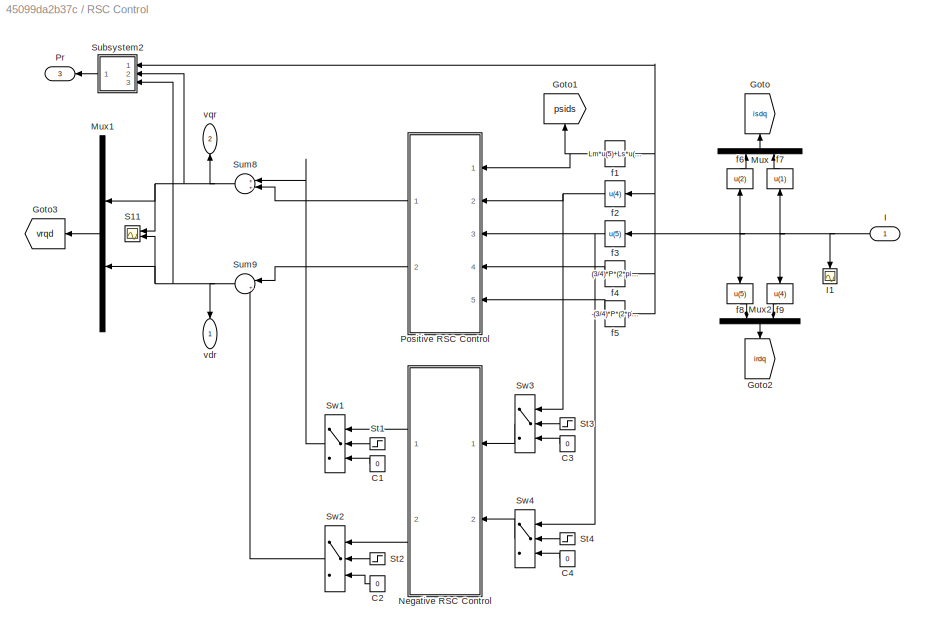
BLOCK [SubSystem] RSC Control
  FunctionWithSeparateData = off
  MaskHideContents = off
  MinAlgLoopOccurrences = off
  Opaque = off
  Ports = [1, 3]
  PropExecContextOutsideSubsystem = off
  RTWSystemCode = Auto
  RequestExecContextInheritance = off
BLOCK [Constant] RSC Control/C1
  Value = 0
BLOCK [Constant] RSC Control/C2
  Value = 0
BLOCK [Constant] RSC Control/C3
  Value = 0
BLOCK [Constant] RSC Control/C4
  Value = 0
BLOCK [Goto] RSC Control/Goto
  GotoTag = isdq
  TagVisibility = global
BLOCK [Goto] RSC Control/Goto1
  GotoTag = psids
  TagVisibility = global
BLOCK [Goto] RSC Control/Goto2
  GotoTag = irdq
  TagVisibility = global
BLOCK [Goto] RSC Control/Goto3
  GotoTag = vrqd
  TagVisibility = global
BLOCK [Inport] RSC Control/I
  IconDisplay = Port number
BLOCK [Scope] RSC Control/I1
  DataFormat = StructureWithTime
  Floating = off
  LimitDataPoints = off
  NumInputPorts = 1
  Ports = [1]
  SampleTime = 0
  SaveName = ScopeData1
  ShowLegends = off
  YMax = 0.6
  YMin = -0.6
  ZoomMode = yonly
BLOCK [Mux] RSC Control/Mux
  DisplayOption = bar
  Inputs = 2
  Ports = [2, 1]
BLOCK [Mux] RSC Control/Mux1
  DisplayOption = bar
  Inputs = 2
  Ports = [2, 1]
BLOCK [Mux] RSC Control/Mux2
  DisplayOption = bar
  Inputs = 2
  Ports = [2, 1]
BLOCK [SubSystem] RSC Control/Negative RSC Control
  FunctionWithSeparateData = off
  MaskHideContents = off
  MinAlgLoopOccurrences = off
  Opaque = off
  Ports = [2, 2]
  PropExecContextOutsideSubsystem = off
  RTWSystemCode = Auto
  RequestExecContextInheritance = off
BLOCK [Reference] RSC Control/Negative RSC Control/C5  REF=powerlib_extras/Discrete 
Control Blocks/Discrete
PI Controller
  Init = 0
  Ki = Ki
  Kp = Kp
  Par_Limits = [10e5 -10e5]
  Ports = [1, 1]
  SourceBlock = powerlib_extras/Discrete \nControl Blocks/Discrete\nPI Controller
  SourceType = Discrete PI Controller
  Ts = 50e-6
BLOCK [Reference] RSC Control/Negative RSC Control/C6  REF=powerlib_extras/Discrete 
Control Blocks/Discrete
PI Controller
  Init = 0
  Ki = Ki
  Kp = Kp
  Par_Limits = [10e5 -10e5]
  Ports = [1, 1]
  SourceBlock = powerlib_extras/Discrete \nControl Blocks/Discrete\nPI Controller
  SourceType = Discrete PI Controller
  Ts = 50e-6
BLOCK [From] RSC Control/Negative RSC Control/From
  GotoTag = psids
  TagVisibility = global
BLOCK [From] RSC Control/Negative RSC Control/From2
  GotoTag = irdq
  TagVisibility = global
BLOCK [Gain] RSC Control/Negative RSC Control/G1
  Gain = Vb
  OutDataTypeStr = Inherit: Inherit via internal rule
  ParamDataTypeStr = Inherit: Inherit via internal rule
  SaturateOnIntegerOverflow = off
BLOCK [Gain] RSC Control/Negative RSC Control/G2
  Gain = Vb
  OutDataTypeStr = Inherit: Inherit via internal rule
  ParamDataTypeStr = Inherit: Inherit via internal rule
  SaturateOnIntegerOverflow = off
BLOCK [Goto] RSC Control/Negative RSC Control/Goto
  GotoTag = psiqds
  TagVisibility = global
BLOCK [Goto] RSC Control/Negative RSC Control/Goto1
  GotoTag = psiqdsn
  TagVisibility = global
BLOCK [Goto] RSC Control/Negative RSC Control/Goto2
  GotoTag = iqdrn
  TagVisibility = global
BLOCK [Mux] RSC Control/Negative RSC Control/Mux2
  DisplayOption = bar
  Inputs = 2
  Ports = [2, 1]
BLOCK [Mux] RSC Control/Negative RSC Control/Mux3
  DisplayOption = bar
  Inputs = 2
  Ports = [2, 1]
BLOCK [Mux] RSC Control/Negative RSC Control/Mux4
  DisplayOption = bar
  Inputs = 2
  Ports = [2, 1]
BLOCK [Mux] RSC Control/Negative RSC Control/Mux5
  DisplayOption = bar
  Inputs = 3
  Ports = [3, 1]
BLOCK [Scope] RSC Control/Negative RSC Control/S1
  DataFormat = StructureWithTime
  Floating = off
  LimitDataPoints = off
  NumInputPorts = 2
  Ports = [2]
  SampleTime = 0
  SaveName = ScopeData61
  ShowLegends = off
  YMax = 1~1
  YMin = -1~-1
  ZoomMode = xonly
BLOCK [Scope] RSC Control/Negative RSC Control/S11
  DataFormat = StructureWithTime
  Floating = off
  LimitDataPoints = off
  NumInputPorts = 2
  Ports = [2]
  SampleTime = 0
  SaveName = ScopeData28
  ShowLegends = off
  YMax = 0.1~1.5
  YMin = -0.1~-0.5
  ZoomMode = yonly
BLOCK [Scope] RSC Control/Negative RSC Control/S2
  DataFormat = StructureWithTime
  Floating = off
  LimitDataPoints = off
  NumInputPorts = 2
  Ports = [2]
  SampleTime = 0
  SaveName = ScopeData62
  ShowLegends = off
  YMax = 1~1
  YMin = -1~-1
  ZoomMode = xonly
BLOCK [Scope] RSC Control/Negative RSC Control/S3
  DataFormat = StructureWithTime
  Floating = off
  LimitDataPoints = off
  NumInputPorts = 2
  Ports = [2]
  SampleTime = 0
  SaveName = ScopeData60
  ShowLegends = off
  YMax = 1~1
  YMin = -1~-1
  ZoomMode = xonly
BLOCK [Scope] RSC Control/Negative RSC Control/S4
  DataFormat = StructureWithTime
  Floating = off
  LimitDataPoints = off
  NumInputPorts = 2
  Ports = [2]
  SampleTime = 0
  SaveName = ScopeData63
  ShowLegends = off
  YMax = 1~1
  YMin = -1~-1
  ZoomMode = xonly
BLOCK [Scope] RSC Control/Negative RSC Control/S5
  DataFormat = StructureWithTime
  Floating = off
  LimitDataPoints = off
  NumInputPorts = 2
  Ports = [2]
  SampleTime = 0
  SaveName = ScopeData64
  ShowLegends = off
  YMax = 1~0.0011
  YMin = -1~-0.0009
  ZoomMode = xonly
BLOCK [Scope] RSC Control/Negative RSC Control/S6
  DataFormat = StructureWithTime
  Floating = off
  LimitDataPoints = off
  NumInputPorts = 2
  Ports = [2]
  SampleTime = 0
  SaveName = ScopeData65
  ShowLegends = off
  YMax = 1~1
  YMin = -1~-1
  ZoomMode = xonly
BLOCK [Scope] RSC Control/Negative RSC Control/S7
  DataFormat = StructureWithTime
  Floating = off
  LimitDataPoints = off
  NumInputPorts = 2
  Ports = [2]
  SampleTime = 0
  SaveName = ScopeData66
  ShowLegends = off
  YMax = 1~-0.003
  YMin = -1~-0.0095
  ZoomMode = xonly
BLOCK [Scope] RSC Control/Negative RSC Control/S8
  DataFormat = StructureWithTime
  Floating = off
  LimitDataPoints = off
  NumInputPorts = 2
  Ports = [2]
  SampleTime = 0
  SaveName = ScopeData67
  ShowLegends = off
  YMax = 1~1
  YMin = -1~-1
  ZoomMode = xonly
BLOCK [Sum] RSC Control/Negative RSC Control/Sum6
  IconShape = round
  InputSameDT = off
  Inputs = +-|
  OutDataTypeStr = Inherit: Inherit via internal rule
  Ports = [2, 1]
  SaturateOnIntegerOverflow = off
BLOCK [Sum] RSC Control/Negative RSC Control/Sum7
  IconShape = round
  InputSameDT = off
  Inputs = |-+
  OutDataTypeStr = Inherit: Inherit via internal rule
  Ports = [2, 1]
  SaturateOnIntegerOverflow = off
BLOCK [SubSystem] RSC Control/Negative RSC Control/dq+ // dq-1
  FunctionWithSeparateData = off
  MaskHideContents = off
  MinAlgLoopOccurrences = off
  Opaque = off
  Ports = [2, 2]
  PropExecContextOutsideSubsystem = off
  RTWSystemCode = Auto
  RequestExecContextInheritance = off
BLOCK [Constant] RSC Control/Negative RSC Control/dq+ // dq-1/-i2ws
  Value = -i*ws*2
BLOCK [Sum] RSC Control/Negative RSC Control/dq+ // dq-1/A
  InputSameDT = off
  OutDataTypeStr = Inherit: Inherit via internal rule
  Ports = [2, 1]
  SaturateOnIntegerOverflow = off
BLOCK [ComplexToRealImag] RSC Control/Negative RSC Control/dq+ // dq-1/C to R-I
  Ports = [1, 2]
BLOCK [Gain] RSC Control/Negative RSC Control/dq+ // dq-1/G
  Gain = -i
  OutDataTypeStr = Inherit: Inherit via internal rule
  ParamDataTypeStr = Inherit: Inherit via internal rule
  SaturateOnIntegerOverflow = off
BLOCK [Gain] RSC Control/Negative RSC Control/dq+ // dq-1/G1
  Gain = -1
  OutDataTypeStr = Inherit: Inherit via internal rule
  ParamDataTypeStr = Inherit: Inherit via internal rule
  SaturateOnIntegerOverflow = off
BLOCK [SubSystem] RSC Control/Negative RSC Control/dq+ // dq-1/LPF1
  FunctionWithSeparateData = off
  MaskHideContents = off
  MinAlgLoopOccurrences = off
  Opaque = off
  Ports = [1, 1]
  PropExecContextOutsideSubsystem = off
  RTWSystemCode = Auto
  RequestExecContextInheritance = off
BLOCK [Gain] RSC Control/Negative RSC Control/dq+ // dq-1/LPF1/Gain
  Gain = Kf
  OutDataTypeStr = Inherit: Inherit via internal rule
  ParamDataTypeStr = Inherit: Inherit via internal rule
  SaturateOnIntegerOverflow = off
BLOCK [Gain] RSC Control/Negative RSC Control/dq+ // dq-1/LPF1/Gain1
  Gain = Kf
  OutDataTypeStr = Inherit: Inherit via internal rule
  ParamDataTypeStr = Inherit: Inherit via internal rule
  SaturateOnIntegerOverflow = off
BLOCK [Inport] RSC Control/Negative RSC Control/dq+ // dq-1/LPF1/I
  IconDisplay = Port number
BLOCK [Integrator] RSC Control/Negative RSC Control/dq+ // dq-1/LPF1/Integrator
  Ports = [1, 1]
BLOCK [Outport] RSC Control/Negative RSC Control/dq+ // dq-1/LPF1/O
  IconDisplay = Port number
BLOCK [Sum] RSC Control/Negative RSC Control/dq+ // dq-1/LPF1/Sum
  IconShape = round
  InputSameDT = off
  Inputs = |+-
  OutDataTypeStr = Inherit: Inherit via internal rule
  Ports = [2, 1]
  SaturateOnIntegerOverflow = off
BLOCK [SubSystem] RSC Control/Negative RSC Control/dq+ // dq-1/LPF3
  FunctionWithSeparateData = off
  MaskHideContents = off
  MinAlgLoopOccurrences = off
  Opaque = off
  Ports = [1, 1]
  PropExecContextOutsideSubsystem = off
  RTWSystemCode = Auto
  RequestExecContextInheritance = off
BLOCK [Gain] RSC Control/Negative RSC Control/dq+ // dq-1/LPF3/Gain
  Gain = Kf
  OutDataTypeStr = Inherit: Inherit via internal rule
  ParamDataTypeStr = Inherit: Inherit via internal rule
  SaturateOnIntegerOverflow = off
BLOCK [Gain] RSC Control/Negative RSC Control/dq+ // dq-1/LPF3/Gain1
  Gain = Kf
  OutDataTypeStr = Inherit: Inherit via internal rule
  ParamDataTypeStr = Inherit: Inherit via internal rule
  SaturateOnIntegerOverflow = off
BLOCK [Inport] RSC Control/Negative RSC Control/dq+ // dq-1/LPF3/I
  IconDisplay = Port number
BLOCK [Integrator] RSC Control/Negative RSC Control/dq+ // dq-1/LPF3/Integrator
  Ports = [1, 1]
BLOCK [Outport] RSC Control/Negative RSC Control/dq+ // dq-1/LPF3/O
  IconDisplay = Port number
BLOCK [Sum] RSC Control/Negative RSC Control/dq+ // dq-1/LPF3/Sum
  IconShape = round
  InputSameDT = off
  Inputs = |+-
  OutDataTypeStr = Inherit: Inherit via internal rule
  Ports = [2, 1]
  SaturateOnIntegerOverflow = off
BLOCK [Product] RSC Control/Negative RSC Control/dq+ // dq-1/P1
  InputSameDT = off
  OutDataTypeStr = Inherit: Inherit via internal rule
  Ports = [2, 1]
  RndMeth = Floor
  SaturateOnIntegerOverflow = off
BLOCK [Product] RSC Control/Negative RSC Control/dq+ // dq-1/Pt
  InputSameDT = off
  OutDataTypeStr = Inherit: Inherit via internal rule
  Ports = [2, 1]
  RndMeth = Floor
  SaturateOnIntegerOverflow = off
BLOCK [Scope] RSC Control/Negative RSC Control/dq+ // dq-1/S1
  DataFormat = StructureWithTime
  Floating = off
  LimitDataPoints = off
  NumInputPorts = 2
  Ports = [2]
  SampleTime = 0
  SaveName = ScopeData74
  ShowLegends = off
  YMax = 1~1
  YMin = -1~-1
  ZoomMode = xonly
BLOCK [Scope] RSC Control/Negative RSC Control/dq+ // dq-1/S3
  DataFormat = StructureWithTime
  Floating = off
  LimitDataPoints = off
  NumInputPorts = 2
  Ports = [2]
  SampleTime = 0
  SaveName = ScopeData73
  ShowLegends = off
  YMax = 1~1
  YMin = -1~-1
  ZoomMode = xonly
BLOCK [Inport] RSC Control/Negative RSC Control/dq+ // dq-1/d+
  IconDisplay = Port number
  Port = 2
BLOCK [Outport] RSC Control/Negative RSC Control/dq+ // dq-1/d-
  IconDisplay = Port number
  Port = 2
BLOCK [Math] RSC Control/Negative RSC Control/dq+ // dq-1/exp
  OutputSignalType = complex
  Ports = [1, 1]
BLOCK [Inport] RSC Control/Negative RSC Control/dq+ // dq-1/q+
  IconDisplay = Port number
BLOCK [Outport] RSC Control/Negative RSC Control/dq+ // dq-1/q-
  IconDisplay = Port number
BLOCK [Clock] RSC Control/Negative RSC Control/dq+ // dq-1/t
BLOCK [SubSystem] RSC Control/Negative RSC Control/dq+ // dq-2
  FunctionWithSeparateData = off
  MaskHideContents = off
  MinAlgLoopOccurrences = off
  Opaque = off
  Ports = [2, 2]
  PropExecContextOutsideSubsystem = off
  RTWSystemCode = Auto
  RequestExecContextInheritance = off
BLOCK [Constant] RSC Control/Negative RSC Control/dq+ // dq-2/-i2ws
  Value = -i*ws*2
BLOCK [Sum] RSC Control/Negative RSC Control/dq+ // dq-2/A
  InputSameDT = off
  OutDataTypeStr = Inherit: Inherit via internal rule
  Ports = [2, 1]
  SaturateOnIntegerOverflow = off
BLOCK [ComplexToRealImag] RSC Control/Negative RSC Control/dq+ // dq-2/C to R-I
  Ports = [1, 2]
BLOCK [Gain] RSC Control/Negative RSC Control/dq+ // dq-2/G
  Gain = -i
  OutDataTypeStr = Inherit: Inherit via internal rule
  ParamDataTypeStr = Inherit: Inherit via internal rule
  SaturateOnIntegerOverflow = off
BLOCK [Gain] RSC Control/Negative RSC Control/dq+ // dq-2/G1
  Gain = -1
  OutDataTypeStr = Inherit: Inherit via internal rule
  ParamDataTypeStr = Inherit: Inherit via internal rule
  SaturateOnIntegerOverflow = off
BLOCK [SubSystem] RSC Control/Negative RSC Control/dq+ // dq-2/LPF1
  FunctionWithSeparateData = off
  MaskHideContents = off
  MinAlgLoopOccurrences = off
  Opaque = off
  Ports = [1, 1]
  PropExecContextOutsideSubsystem = off
  RTWSystemCode = Auto
  RequestExecContextInheritance = off
BLOCK [Gain] RSC Control/Negative RSC Control/dq+ // dq-2/LPF1/Gain
  Gain = Kf
  OutDataTypeStr = Inherit: Inherit via internal rule
  ParamDataTypeStr = Inherit: Inherit via internal rule
  SaturateOnIntegerOverflow = off
BLOCK [Gain] RSC Control/Negative RSC Control/dq+ // dq-2/LPF1/Gain1
  Gain = Kf
  OutDataTypeStr = Inherit: Inherit via internal rule
  ParamDataTypeStr = Inherit: Inherit via internal rule
  SaturateOnIntegerOverflow = off
BLOCK [Inport] RSC Control/Negative RSC Control/dq+ // dq-2/LPF1/I
  IconDisplay = Port number
BLOCK [Integrator] RSC Control/Negative RSC Control/dq+ // dq-2/LPF1/Integrator
  Ports = [1, 1]
BLOCK [Outport] RSC Control/Negative RSC Control/dq+ // dq-2/LPF1/O
  IconDisplay = Port number
BLOCK [Sum] RSC Control/Negative RSC Control/dq+ // dq-2/LPF1/Sum
  IconShape = round
  InputSameDT = off
  Inputs = |+-
  OutDataTypeStr = Inherit: Inherit via internal rule
  Ports = [2, 1]
  SaturateOnIntegerOverflow = off
BLOCK [SubSystem] RSC Control/Negative RSC Control/dq+ // dq-2/LPF3
  FunctionWithSeparateData = off
  MaskHideContents = off
  MinAlgLoopOccurrences = off
  Opaque = off
  Ports = [1, 1]
  PropExecContextOutsideSubsystem = off
  RTWSystemCode = Auto
  RequestExecContextInheritance = off
BLOCK [Gain] RSC Control/Negative RSC Control/dq+ // dq-2/LPF3/Gain
  Gain = Kf
  OutDataTypeStr = Inherit: Inherit via internal rule
  ParamDataTypeStr = Inherit: Inherit via internal rule
  SaturateOnIntegerOverflow = off
BLOCK [Gain] RSC Control/Negative RSC Control/dq+ // dq-2/LPF3/Gain1
  Gain = Kf
  OutDataTypeStr = Inherit: Inherit via internal rule
  ParamDataTypeStr = Inherit: Inherit via internal rule
  SaturateOnIntegerOverflow = off
BLOCK [Inport] RSC Control/Negative RSC Control/dq+ // dq-2/LPF3/I
  IconDisplay = Port number
BLOCK [Integrator] RSC Control/Negative RSC Control/dq+ // dq-2/LPF3/Integrator
  Ports = [1, 1]
BLOCK [Outport] RSC Control/Negative RSC Control/dq+ // dq-2/LPF3/O
  IconDisplay = Port number
BLOCK [Sum] RSC Control/Negative RSC Control/dq+ // dq-2/LPF3/Sum
  IconShape = round
  InputSameDT = off
  Inputs = |+-
  OutDataTypeStr = Inherit: Inherit via internal rule
  Ports = [2, 1]
  SaturateOnIntegerOverflow = off
BLOCK [Product] RSC Control/Negative RSC Control/dq+ // dq-2/P1
  InputSameDT = off
  OutDataTypeStr = Inherit: Inherit via internal rule
  Ports = [2, 1]
  RndMeth = Floor
  SaturateOnIntegerOverflow = off
BLOCK [Product] RSC Control/Negative RSC Control/dq+ // dq-2/Pt
  InputSameDT = off
  OutDataTypeStr = Inherit: Inherit via internal rule
  Ports = [2, 1]
  RndMeth = Floor
  SaturateOnIntegerOverflow = off
BLOCK [Scope] RSC Control/Negative RSC Control/dq+ // dq-2/S1
  DataFormat = StructureWithTime
  Floating = off
  LimitDataPoints = off
  NumInputPorts = 2
  Ports = [2]
  SampleTime = 0
  SaveName = ScopeData76
  ShowLegends = off
  YMax = 1~1
  YMin = -1~-1
  ZoomMode = xonly
BLOCK [Scope] RSC Control/Negative RSC Control/dq+ // dq-2/S3
  DataFormat = StructureWithTime
  Floating = off
  LimitDataPoints = off
  NumInputPorts = 2
  Ports = [2]
  SampleTime = 0
  SaveName = ScopeData75
  ShowLegends = off
  YMax = 1~1
  YMin = -1~-1
  ZoomMode = xonly
BLOCK [Inport] RSC Control/Negative RSC Control/dq+ // dq-2/d+
  IconDisplay = Port number
  Port = 2
BLOCK [Outport] RSC Control/Negative RSC Control/dq+ // dq-2/d-
  IconDisplay = Port number
  Port = 2
BLOCK [Math] RSC Control/Negative RSC Control/dq+ // dq-2/exp
  OutputSignalType = complex
  Ports = [1, 1]
BLOCK [Inport] RSC Control/Negative RSC Control/dq+ // dq-2/q+
  IconDisplay = Port number
BLOCK [Outport] RSC Control/Negative RSC Control/dq+ // dq-2/q-
  IconDisplay = Port number
BLOCK [Clock] RSC Control/Negative RSC Control/dq+ // dq-2/t
BLOCK [SubSystem] RSC Control/Negative RSC Control/dq+ // dq-3
  FunctionWithSeparateData = off
  MaskHideContents = off
  MinAlgLoopOccurrences = off
  Opaque = off
  Ports = [2, 2]
  PropExecContextOutsideSubsystem = off
  RTWSystemCode = Auto
  RequestExecContextInheritance = off
BLOCK [Constant] RSC Control/Negative RSC Control/dq+ // dq-3/-i2ws
  Value = -i*ws*2
BLOCK [Constant] RSC Control/Negative RSC Control/dq+ // dq-3/-i2ws1
  Value = 10
BLOCK [Sum] RSC Control/Negative RSC Control/dq+ // dq-3/A
  InputSameDT = off
  OutDataTypeStr = Inherit: Inherit via internal rule
  Ports = [2, 1]
  SaturateOnIntegerOverflow = off
BLOCK [ComplexToRealImag] RSC Control/Negative RSC Control/dq+ // dq-3/C to R-I
  Ports = [1, 2]
BLOCK [Gain] RSC Control/Negative RSC Control/dq+ // dq-3/G
  Gain = -i
  OutDataTypeStr = Inherit: Inherit via internal rule
  ParamDataTypeStr = Inherit: Inherit via internal rule
  SaturateOnIntegerOverflow = off
BLOCK [Gain] RSC Control/Negative RSC Control/dq+ // dq-3/G1
  Gain = -1
  OutDataTypeStr = Inherit: Inherit via internal rule
  ParamDataTypeStr = Inherit: Inherit via internal rule
  SaturateOnIntegerOverflow = off
BLOCK [SubSystem] RSC Control/Negative RSC Control/dq+ // dq-3/LPF1
  FunctionWithSeparateData = off
  MaskHideContents = off
  MinAlgLoopOccurrences = off
  Opaque = off
  Ports = [1, 1]
  PropExecContextOutsideSubsystem = off
  RTWSystemCode = Auto
  RequestExecContextInheritance = off
BLOCK [Gain] RSC Control/Negative RSC Control/dq+ // dq-3/LPF1/Gain
  Gain = Kf
  OutDataTypeStr = Inherit: Inherit via internal rule
  ParamDataTypeStr = Inherit: Inherit via internal rule
  SaturateOnIntegerOverflow = off
BLOCK [Gain] RSC Control/Negative RSC Control/dq+ // dq-3/LPF1/Gain1
  Gain = Kf
  OutDataTypeStr = Inherit: Inherit via internal rule
  ParamDataTypeStr = Inherit: Inherit via internal rule
  SaturateOnIntegerOverflow = off
BLOCK [Inport] RSC Control/Negative RSC Control/dq+ // dq-3/LPF1/I
  IconDisplay = Port number
BLOCK [Integrator] RSC Control/Negative RSC Control/dq+ // dq-3/LPF1/Integrator
  Ports = [1, 1]
BLOCK [Outport] RSC Control/Negative RSC Control/dq+ // dq-3/LPF1/O
  IconDisplay = Port number
BLOCK [Sum] RSC Control/Negative RSC Control/dq+ // dq-3/LPF1/Sum
  IconShape = round
  InputSameDT = off
  Inputs = |+-
  OutDataTypeStr = Inherit: Inherit via internal rule
  Ports = [2, 1]
  SaturateOnIntegerOverflow = off
BLOCK [SubSystem] RSC Control/Negative RSC Control/dq+ // dq-3/LPF2
  FunctionWithSeparateData = off
  MaskHideContents = off
  MinAlgLoopOccurrences = off
  Opaque = off
  Ports = [1, 1]
  PropExecContextOutsideSubsystem = off
  RTWSystemCode = Auto
  RequestExecContextInheritance = off
BLOCK [Gain] RSC Control/Negative RSC Control/dq+ // dq-3/LPF2/Gain
  Gain = Kf
  OutDataTypeStr = Inherit: Inherit via internal rule
  ParamDataTypeStr = Inherit: Inherit via internal rule
  SaturateOnIntegerOverflow = off
BLOCK [Gain] RSC Control/Negative RSC Control/dq+ // dq-3/LPF2/Gain1
  Gain = Kf
  OutDataTypeStr = Inherit: Inherit via internal rule
  ParamDataTypeStr = Inherit: Inherit via internal rule
  SaturateOnIntegerOverflow = off
BLOCK [Inport] RSC Control/Negative RSC Control/dq+ // dq-3/LPF2/I
  IconDisplay = Port number
BLOCK [Integrator] RSC Control/Negative RSC Control/dq+ // dq-3/LPF2/Integrator
  Ports = [1, 1]
BLOCK [Outport] RSC Control/Negative RSC Control/dq+ // dq-3/LPF2/O
  IconDisplay = Port number
BLOCK [Sum] RSC Control/Negative RSC Control/dq+ // dq-3/LPF2/Sum
  IconShape = round
  InputSameDT = off
  Inputs = |+-
  OutDataTypeStr = Inherit: Inherit via internal rule
  Ports = [2, 1]
  SaturateOnIntegerOverflow = off
BLOCK [SubSystem] RSC Control/Negative RSC Control/dq+ // dq-3/LPF3
  FunctionWithSeparateData = off
  MaskHideContents = off
  MinAlgLoopOccurrences = off
  Opaque = off
  Ports = [1, 1]
  PropExecContextOutsideSubsystem = off
  RTWSystemCode = Auto
  RequestExecContextInheritance = off
BLOCK [Gain] RSC Control/Negative RSC Control/dq+ // dq-3/LPF3/Gain
  Gain = Kf
  OutDataTypeStr = Inherit: Inherit via internal rule
  ParamDataTypeStr = Inherit: Inherit via internal rule
  SaturateOnIntegerOverflow = off
BLOCK [Gain] RSC Control/Negative RSC Control/dq+ // dq-3/LPF3/Gain1
  Gain = Kf
  OutDataTypeStr = Inherit: Inherit via internal rule
  ParamDataTypeStr = Inherit: Inherit via internal rule
  SaturateOnIntegerOverflow = off
BLOCK [Inport] RSC Control/Negative RSC Control/dq+ // dq-3/LPF3/I
  IconDisplay = Port number
BLOCK [Integrator] RSC Control/Negative RSC Control/dq+ // dq-3/LPF3/Integrator
  Ports = [1, 1]
BLOCK [Outport] RSC Control/Negative RSC Control/dq+ // dq-3/LPF3/O
  IconDisplay = Port number
BLOCK [Sum] RSC Control/Negative RSC Control/dq+ // dq-3/LPF3/Sum
  IconShape = round
  InputSameDT = off
  Inputs = |+-
  OutDataTypeStr = Inherit: Inherit via internal rule
  Ports = [2, 1]
  SaturateOnIntegerOverflow = off
BLOCK [Product] RSC Control/Negative RSC Control/dq+ // dq-3/P1
  InputSameDT = off
  OutDataTypeStr = Inherit: Inherit via internal rule
  Ports = [2, 1]
  RndMeth = Floor
  SaturateOnIntegerOverflow = off
BLOCK [Product] RSC Control/Negative RSC Control/dq+ // dq-3/Pt
  InputSameDT = off
  OutDataTypeStr = Inherit: Inherit via internal rule
  Ports = [2, 1]
  RndMeth = Floor
  SaturateOnIntegerOverflow = off
BLOCK [Scope] RSC Control/Negative RSC Control/dq+ // dq-3/S1
  DataFormat = StructureWithTime
  Floating = off
  LimitDataPoints = off
  NumInputPorts = 2
  Ports = [2]
  SampleTime = 0
  SaveName = ScopeData78
  ShowLegends = off
  YMax = 1~1
  YMin = -1~-1
  ZoomMode = xonly
BLOCK [Scope] RSC Control/Negative RSC Control/dq+ // dq-3/S2
  DataFormat = StructureWithTime
  Floating = off
  LimitDataPoints = off
  NumInputPorts = 1
  Ports = [1]
  SampleTime = 0
  SaveName = ScopeData81
  ShowLegends = off
  YMax = 6
  YMin = -4
  ZoomMode = xonly
BLOCK [Scope] RSC Control/Negative RSC Control/dq+ // dq-3/S3
  DataFormat = StructureWithTime
  Floating = off
  LimitDataPoints = off
  NumInputPorts = 2
  Ports = [2]
  SampleTime = 0
  SaveName = ScopeData77
  ShowLegends = off
  YMax = 1~1
  YMin = -1~-1
  ZoomMode = xonly
BLOCK [Sin] RSC Control/Negative RSC Control/dq+ // dq-3/Sine Wave
  Amplitude = 10
  Bias = 1
  Frequency = 2*pi*30
  Ports = [0, 1]
  SampleTime = 0
BLOCK [Inport] RSC Control/Negative RSC Control/dq+ // dq-3/d+
  IconDisplay = Port number
  Port = 2
BLOCK [Outport] RSC Control/Negative RSC Control/dq+ // dq-3/d-
  IconDisplay = Port number
  Port = 2
BLOCK [Math] RSC Control/Negative RSC Control/dq+ // dq-3/exp
  OutputSignalType = complex
  Ports = [1, 1]
BLOCK [Inport] RSC Control/Negative RSC Control/dq+ // dq-3/q+
  IconDisplay = Port number
BLOCK [Outport] RSC Control/Negative RSC Control/dq+ // dq-3/q-
  IconDisplay = Port number
BLOCK [Clock] RSC Control/Negative RSC Control/dq+ // dq-3/t
BLOCK [SubSystem] RSC Control/Negative RSC Control/dq- // dq+
  FunctionWithSeparateData = off
  MaskHideContents = off
  MinAlgLoopOccurrences = off
  Opaque = off
  Ports = [2, 2]
  PropExecContextOutsideSubsystem = off
  RTWSystemCode = Auto
  RequestExecContextInheritance = off
BLOCK [Sum] RSC Control/Negative RSC Control/dq- // dq+/Add
  InputSameDT = off
  OutDataTypeStr = Inherit: Inherit via internal rule
  Ports = [2, 1]
  SaturateOnIntegerOverflow = off
BLOCK [ComplexToRealImag] RSC Control/Negative RSC Control/dq- // dq+/Complex to Real-Imag
  Ports = [1, 2]
BLOCK [Gain] RSC Control/Negative RSC Control/dq- // dq+/Gain
  Gain = -i
  OutDataTypeStr = Inherit: Inherit via internal rule
  ParamDataTypeStr = Inherit: Inherit via internal rule
  SaturateOnIntegerOverflow = off
BLOCK [Gain] RSC Control/Negative RSC Control/dq- // dq+/Gain1
  Gain = -1
  OutDataTypeStr = Inherit: Inherit via internal rule
  ParamDataTypeStr = Inherit: Inherit via internal rule
  SaturateOnIntegerOverflow = off
BLOCK [SubSystem] RSC Control/Negative RSC Control/dq- // dq+/LPF1
  FunctionWithSeparateData = off
  MaskHideContents = off
  MinAlgLoopOccurrences = off
  Opaque = off
  Ports = [1, 1]
  PropExecContextOutsideSubsystem = off
  RTWSystemCode = Auto
  RequestExecContextInheritance = off
BLOCK [Gain] RSC Control/Negative RSC Control/dq- // dq+/LPF1/Gain
  Gain = Kf
  OutDataTypeStr = Inherit: Inherit via internal rule
  ParamDataTypeStr = Inherit: Inherit via internal rule
  SaturateOnIntegerOverflow = off
BLOCK [Gain] RSC Control/Negative RSC Control/dq- // dq+/LPF1/Gain1
  Gain = Kf
  OutDataTypeStr = Inherit: Inherit via internal rule
  ParamDataTypeStr = Inherit: Inherit via internal rule
  SaturateOnIntegerOverflow = off
BLOCK [Inport] RSC Control/Negative RSC Control/dq- // dq+/LPF1/I
  IconDisplay = Port number
BLOCK [Integrator] RSC Control/Negative RSC Control/dq- // dq+/LPF1/Integrator
  Ports = [1, 1]
BLOCK [Outport] RSC Control/Negative RSC Control/dq- // dq+/LPF1/O
  IconDisplay = Port number
BLOCK [Sum] RSC Control/Negative RSC Control/dq- // dq+/LPF1/Sum
  IconShape = round
  InputSameDT = off
  Inputs = |+-
  OutDataTypeStr = Inherit: Inherit via internal rule
  Ports = [2, 1]
  SaturateOnIntegerOverflow = off
BLOCK [SubSystem] RSC Control/Negative RSC Control/dq- // dq+/LPF3
  FunctionWithSeparateData = off
  MaskHideContents = off
  MinAlgLoopOccurrences = off
  Opaque = off
  Ports = [1, 1]
  PropExecContextOutsideSubsystem = off
  RTWSystemCode = Auto
  RequestExecContextInheritance = off
BLOCK [Gain] RSC Control/Negative RSC Control/dq- // dq+/LPF3/Gain
  Gain = Kf
  OutDataTypeStr = Inherit: Inherit via internal rule
  ParamDataTypeStr = Inherit: Inherit via internal rule
  SaturateOnIntegerOverflow = off
BLOCK [Gain] RSC Control/Negative RSC Control/dq- // dq+/LPF3/Gain1
  Gain = Kf
  OutDataTypeStr = Inherit: Inherit via internal rule
  ParamDataTypeStr = Inherit: Inherit via internal rule
  SaturateOnIntegerOverflow = off
BLOCK [Inport] RSC Control/Negative RSC Control/dq- // dq+/LPF3/I
  IconDisplay = Port number
BLOCK [Integrator] RSC Control/Negative RSC Control/dq- // dq+/LPF3/Integrator
  Ports = [1, 1]
BLOCK [Outport] RSC Control/Negative RSC Control/dq- // dq+/LPF3/O
  IconDisplay = Port number
BLOCK [Sum] RSC Control/Negative RSC Control/dq- // dq+/LPF3/Sum
  IconShape = round
  InputSameDT = off
  Inputs = |+-
  OutDataTypeStr = Inherit: Inherit via internal rule
  Ports = [2, 1]
  SaturateOnIntegerOverflow = off
BLOCK [Product] RSC Control/Negative RSC Control/dq- // dq+/Product
  InputSameDT = off
  OutDataTypeStr = Inherit: Inherit via internal rule
  Ports = [2, 1]
  RndMeth = Floor
  SaturateOnIntegerOverflow = off
BLOCK [Product] RSC Control/Negative RSC Control/dq- // dq+/Product1
  InputSameDT = off
  OutDataTypeStr = Inherit: Inherit via internal rule
  Ports = [2, 1]
  RndMeth = Floor
  SaturateOnIntegerOverflow = off
BLOCK [Scope] RSC Control/Negative RSC Control/dq- // dq+/S1
  DataFormat = StructureWithTime
  Floating = off
  LimitDataPoints = off
  NumInputPorts = 2
  Ports = [2]
  SampleTime = 0
  SaveName = ScopeData80
  ShowLegends = off
  YMax = 1~1
  YMin = -1~-1
  ZoomMode = xonly
BLOCK [Scope] RSC Control/Negative RSC Control/dq- // dq+/S3
  DataFormat = StructureWithTime
  Floating = off
  LimitDataPoints = off
  NumInputPorts = 2
  Ports = [2]
  SampleTime = 0
  SaveName = ScopeData79
  ShowLegends = off
  YMax = 1~1
  YMin = -1~-1
  ZoomMode = xonly
BLOCK [Outport] RSC Control/Negative RSC Control/dq- // dq+/d+
  IconDisplay = Port number
  Port = 2
BLOCK [Inport] RSC Control/Negative RSC Control/dq- // dq+/d-
  IconDisplay = Port number
  Port = 2
BLOCK [Math] RSC Control/Negative RSC Control/dq- // dq+/exp
  Ports = [1, 1]
BLOCK [Constant] RSC Control/Negative RSC Control/dq- // dq+/i2ws
  Value = i*ws*2
BLOCK [Outport] RSC Control/Negative RSC Control/dq- // dq+/q+
  IconDisplay = Port number
BLOCK [Inport] RSC Control/Negative RSC Control/dq- // dq+/q-
  IconDisplay = Port number
BLOCK [Clock] RSC Control/Negative RSC Control/dq- // dq+/t
BLOCK [Fcn] RSC Control/Negative RSC Control/f10
  Expr = (-u(1)*u(4)-u(2)*u(3))/(u(6)+1e-10)
BLOCK [Fcn] RSC Control/Negative RSC Control/f11
  Expr = (+u(2)*u(4)-u(1)*u(3))/(u(6)+1e-10)
BLOCK [Inport] RSC Control/Negative RSC Control/idr
  IconDisplay = Port number
  Port = 2
BLOCK [Inport] RSC Control/Negative RSC Control/iqr
  IconDisplay = Port number
BLOCK [Constant] RSC Control/Negative RSC Control/psiqs
  Value = 0
BLOCK [Outport] RSC Control/Negative RSC Control/vdr
  IconDisplay = Port number
  Port = 2
BLOCK [Outport] RSC Control/Negative RSC Control/vqr
  IconDisplay = Port number
BLOCK [SubSystem] RSC Control/Positive RSC Control
  FunctionWithSeparateData = off
  MaskHideContents = off
  MinAlgLoopOccurrences = off
  Opaque = off
  Ports = [5, 2]
  PropExecContextOutsideSubsystem = off
  RTWSystemCode = Auto
  RequestExecContextInheritance = off
BLOCK [Reference] RSC Control/Positive RSC Control/C1  REF=powerlib_extras/Discrete 
Control Blocks/Discrete
PI Controller
  Init = 0
  Ki = Ki
  Kp = Kp
  Par_Limits = [10e5 -10e5]
  Ports = [1, 1]
  SourceBlock = powerlib_extras/Discrete \nControl Blocks/Discrete\nPI Controller
  SourceType = Discrete PI Controller
  Ts = 50e-6
BLOCK [Reference] RSC Control/Positive RSC Control/C2  REF=powerlib_extras/Discrete 
Control Blocks/Discrete
PI Controller
  Init = 0
  Ki = Ki
  Kp = Kp
  Par_Limits = [10e5 -10e5]
  Ports = [1, 1]
  SourceBlock = powerlib_extras/Discrete \nControl Blocks/Discrete\nPI Controller
  SourceType = Discrete PI Controller
  Ts = 50e-6
BLOCK [Reference] RSC Control/Positive RSC Control/C3  REF=powerlib_extras/Discrete 
Control Blocks/Discrete
PI Controller
  Init = 0.0724
  Ki = Ki
  Kp = Kp
  Par_Limits = [10e5 -10e5]
  Ports = [1, 1]
  SourceBlock = powerlib_extras/Discrete \nControl Blocks/Discrete\nPI Controller
  SourceType = Discrete PI Controller
  Ts = 50e-6
BLOCK [Reference] RSC Control/Positive RSC Control/C4  REF=powerlib_extras/Discrete 
Control Blocks/Discrete
PI Controller
  Init = 1.968e-3
  Ki = Ki
  Kp = Kp
  Par_Limits = [10e5 -10e5]
  Ports = [1, 1]
  SourceBlock = powerlib_extras/Discrete \nControl Blocks/Discrete\nPI Controller
  SourceType = Discrete PI Controller
  Ts = 50e-6
BLOCK [From] RSC Control/Positive RSC Control/F1
  GotoTag = wsl
  TagVisibility = global
BLOCK [From] RSC Control/Positive RSC Control/F2
  GotoTag = wsl
  TagVisibility = global
BLOCK [From] RSC Control/Positive RSC Control/F3
  GotoTag = wsl
  TagVisibility = global
BLOCK [Gain] RSC Control/Positive RSC Control/G
  Gain = sigma*Lr/(Zb/wb)
  OutDataTypeStr = Inherit: Inherit via internal rule
  ParamDataTypeStr = Inherit: Inherit via internal rule
  SaturateOnIntegerOverflow = off
BLOCK [Gain] RSC Control/Positive RSC Control/G1
  Gain = sigma*Lr/(Zb/wb)
  OutDataTypeStr = Inherit: Inherit via internal rule
  ParamDataTypeStr = Inherit: Inherit via internal rule
  SaturateOnIntegerOverflow = off
BLOCK [Gain] RSC Control/Positive RSC Control/G3
  Gain = Lm/Ls
  OutDataTypeStr = Inherit: Inherit via internal rule
  ParamDataTypeStr = Inherit: Inherit via internal rule
  SaturateOnIntegerOverflow = off
BLOCK [Inport] RSC Control/Positive RSC Control/Idr
  IconDisplay = Port number
  Port = 3
BLOCK [Inport] RSC Control/Positive RSC Control/Iqr
  IconDisplay = Port number
  Port = 2
BLOCK [Product] RSC Control/Positive RSC Control/P1
  InputSameDT = off
  OutDataTypeStr = Inherit: Inherit via internal rule
  Ports = [2, 1]
  RndMeth = Floor
  SaturateOnIntegerOverflow = off
BLOCK [Product] RSC Control/Positive RSC Control/P2
  InputSameDT = off
  OutDataTypeStr = Inherit: Inherit via internal rule
  Ports = [2, 1]
  RndMeth = Floor
  SaturateOnIntegerOverflow = off
BLOCK [Product] RSC Control/Positive RSC Control/P3
  InputSameDT = off
  OutDataTypeStr = Inherit: Inherit via internal rule
  Ports = [2, 1]
  RndMeth = Floor
  SaturateOnIntegerOverflow = off
BLOCK [Inport] RSC Control/Positive RSC Control/Ps
  IconDisplay = Port number
  Port = 4
BLOCK [Step] RSC Control/Positive RSC Control/Psref
  After = 0.95*0.95*0.95
  Before = 0.95*0.95*0.95
  SampleTime = 0
  Time = 0
BLOCK [Inport] RSC Control/Positive RSC Control/Qs
  IconDisplay = Port number
  Port = 5
BLOCK [Step] RSC Control/Positive RSC Control/Qsref
  After = 0
  SampleTime = 0
  Time = 0
BLOCK [Scope] RSC Control/Positive RSC Control/S1
  DataFormat = StructureWithTime
  Floating = off
  LimitDataPoints = off
  NumInputPorts = 3
  Ports = [3]
  SampleTime = 0
  SaveName = ScopeData4
  ShowLegends = off
  YMax = 1~1~1
  YMin = -1~-1~-1
  ZoomMode = yonly
BLOCK [Scope] RSC Control/Positive RSC Control/S2
  DataFormat = StructureWithTime
  Floating = off
  LimitDataPoints = off
  NumInputPorts = 3
  Ports = [3]
  SampleTime = 0
  SaveName = ScopeData3
  ShowLegends = off
  YMax = 0.900244~1.15~0.25
  YMin = 0.814506~0.6~-0.3
  ZoomMode = xonly
BLOCK [Scope] RSC Control/Positive RSC Control/S3
  DataFormat = StructureWithTime
  Floating = off
  LimitDataPoints = off
  NumInputPorts = 3
  Ports = [3]
  SampleTime = 0
  SaveName = ScopeData7
  ShowLegends = off
  YMax = 0.358241~0.358239~3e-06
  YMin = 0.358236~0.358234~7.5e-07
  ZoomMode = xonly
BLOCK [Scope] RSC Control/Positive RSC Control/S4
  DataFormat = StructureWithTime
  Floating = off
  LimitDataPoints = off
  NumInputPorts = 3
  Ports = [3]
  SampleTime = 0
  SaveName = ScopeData17
  ShowLegends = off
  YMax = 0.00196805~0.00548419~-0.00351613
  YMin = 0.00196795~0.00548418~-0.00351623
  ZoomMode = yonly
BLOCK [Scope] RSC Control/Positive RSC Control/S5
  DataFormat = StructureWithTime
  Floating = off
  LimitDataPoints = off
  NumInputPorts = 3
  Ports = [3]
  SampleTime = 0
  SaveName = ScopeData20
  ShowLegends = off
  YMax = 0.5789~0.57845~0.0005
  YMin = 0.5772~0.5776~-0.0005
  ZoomMode = xonly
BLOCK [Scope] RSC Control/Positive RSC Control/S6
  DataFormat = StructureWithTime
  Floating = off
  LimitDataPoints = off
  NumInputPorts = 1
  Ports = [1]
  SampleTime = 0
  ShowLegends = off
  YMax = 0.0723622
  YMin = 0.0723587
  ZoomMode = yonly
BLOCK [Sum] RSC Control/Positive RSC Control/Sum
  IconShape = round
  InputSameDT = off
  Inputs = |+-
  OutDataTypeStr = Inherit: Inherit via internal rule
  Ports = [2, 1]
  SaturateOnIntegerOverflow = off
BLOCK [Sum] RSC Control/Positive RSC Control/Sum1
  IconShape = round
  InputSameDT = off
  Inputs = -+|
  OutDataTypeStr = Inherit: Inherit via internal rule
  Ports = [2, 1]
  SaturateOnIntegerOverflow = off
BLOCK [Sum] RSC Control/Positive RSC Control/Sum2
  IconShape = round
  InputSameDT = off
  Inputs = |+-
  OutDataTypeStr = Inherit: Inherit via internal rule
  Ports = [2, 1]
  SaturateOnIntegerOverflow = off
BLOCK [Sum] RSC Control/Positive RSC Control/Sum3
  IconShape = round
  InputSameDT = off
  Inputs = -+|
  OutDataTypeStr = Inherit: Inherit via internal rule
  Ports = [2, 1]
  SaturateOnIntegerOverflow = off
BLOCK [Sum] RSC Control/Positive RSC Control/Sum4
  IconShape = round
  InputSameDT = off
  Inputs = +++
  OutDataTypeStr = Inherit: Inherit via internal rule
  Ports = [3, 1]
  SaturateOnIntegerOverflow = off
BLOCK [Sum] RSC Control/Positive RSC Control/Sum5
  IconShape = round
  InputSameDT = off
  Inputs = -+|
  OutDataTypeStr = Inherit: Inherit via internal rule
  Ports = [2, 1]
  SaturateOnIntegerOverflow = off
BLOCK [Outport] RSC Control/Positive RSC Control/Vdr
  IconDisplay = Port number
  Port = 2
BLOCK [Outport] RSC Control/Positive RSC Control/Vqr
  IconDisplay = Port number
BLOCK [Inport] RSC Control/Positive RSC Control/psis
  IconDisplay = Port number
BLOCK [Outport] RSC Control/Pr
  IconDisplay = Port number
  Port = 3
BLOCK [Scope] RSC Control/S11
  DataFormat = StructureWithTime
  Floating = off
  LimitDataPoints = off
  NumInputPorts = 2
  Ports = [2]
  SampleTime = 0
  SaveName = ScopeData15
  ShowLegends = off
  YMax = 1~0.01
  YMin = -1~-0.01
  ZoomMode = yonly
BLOCK [Step] RSC Control/St1
  Before = -1
  SampleTime = 0
  Time = Tcomp
BLOCK [Step] RSC Control/St2
  Before = -1
  SampleTime = 0
  Time = Tcomp
BLOCK [Step] RSC Control/St3
  Before = -1
  SampleTime = 0
  Time = Tcomp
BLOCK [Step] RSC Control/St4
  Before = -1
  SampleTime = 0
  Time = Tcomp
BLOCK [SubSystem] RSC Control/Subsystem2
  FunctionWithSeparateData = off
  MaskHideContents = off
  MinAlgLoopOccurrences = off
  Opaque = off
  Ports = [3, 1]
  PropExecContextOutsideSubsystem = off
  RTWSystemCode = Auto
  RequestExecContextInheritance = off
BLOCK [Sum] RSC Control/Subsystem2/A
  InputSameDT = off
  OutDataTypeStr = Inherit: Inherit via internal rule
  Ports = [2, 1]
  SaturateOnIntegerOverflow = off
BLOCK [Gain] RSC Control/Subsystem2/G
  Gain = 3/2
  OutDataTypeStr = Inherit: Inherit via internal rule
  ParamDataTypeStr = Inherit: Inherit via internal rule
  SaturateOnIntegerOverflow = off
BLOCK [Inport] RSC Control/Subsystem2/I
  IconDisplay = Port number
BLOCK [Product] RSC Control/Subsystem2/P1
  InputSameDT = off
  OutDataTypeStr = Inherit: Inherit via internal rule
  Ports = [2, 1]
  RndMeth = Floor
  SaturateOnIntegerOverflow = off
BLOCK [Product] RSC Control/Subsystem2/P2
  InputSameDT = off
  OutDataTypeStr = Inherit: Inherit via internal rule
  Ports = [2, 1]
  RndMeth = Floor
  SaturateOnIntegerOverflow = off
BLOCK [Outport] RSC Control/Subsystem2/Pr
  IconDisplay = Port number
BLOCK [Fcn] RSC Control/Subsystem2/f6
  Expr = u(4)
BLOCK [Fcn] RSC Control/Subsystem2/f7
  Expr = u(5)
BLOCK [Inport] RSC Control/Subsystem2/vdr
  IconDisplay = Port number
  Port = 3
BLOCK [Inport] RSC Control/Subsystem2/vqr
  IconDisplay = Port number
  Port = 2
BLOCK [Sum] RSC Control/Sum8
  IconShape = round
  InputSameDT = off
  Inputs = ++|
  OutDataTypeStr = Inherit: Inherit via internal rule
  Ports = [2, 1]
  SaturateOnIntegerOverflow = off
BLOCK [Sum] RSC Control/Sum9
  IconShape = round
  InputSameDT = off
  Inputs = |++
  OutDataTypeStr = Inherit: Inherit via internal rule
  Ports = [2, 1]
  SaturateOnIntegerOverflow = off
BLOCK [Switch] RSC Control/Sw1
  InputSameDT = off
  SaturateOnIntegerOverflow = off
BLOCK [Switch] RSC Control/Sw2
  InputSameDT = off
  SaturateOnIntegerOverflow = off
BLOCK [Switch] RSC Control/Sw3
  InputSameDT = off
  SaturateOnIntegerOverflow = off
BLOCK [Switch] RSC Control/Sw4
  InputSameDT = off
  SaturateOnIntegerOverflow = off
BLOCK [Fcn] RSC Control/f1
  Expr = Lm*u(5)+Ls*u(2)
BLOCK [Fcn] RSC Control/f2
  Expr = u(4)
BLOCK [Fcn] RSC Control/f3
  Expr = u(5)
BLOCK [Fcn] RSC Control/f4
  Expr = (3/4)*P*(2*pi*f)*(Lm/Ls)*(Lm*u(5)+Ls*u(2))*u(4)
BLOCK [Fcn] RSC Control/f5
  Expr = -(3/4)*P*(2*pi*f)*(Lm*u(5)+Ls*u(2))*u(2)
BLOCK [Fcn] RSC Control/f6
  Expr = u(2)
BLOCK [Fcn] RSC Control/f7
  Expr = u(1)
BLOCK [Fcn] RSC Control/f8
  Expr = u(5)
BLOCK [Fcn] RSC Control/f9
  Expr = u(4)
BLOCK [Outport] RSC Control/vdr
  IconDisplay = Port number
BLOCK [Outport] RSC Control/vqr
  IconDisplay = Port number
  Port = 2
BLOCK [Scope] S1
  DataFormat = StructureWithTime
  Floating = off
  LimitDataPoints = off
  NumInputPorts = 1
  Ports = [1]
  SampleTime = 0
  SaveName = ScopeData14
  ShowLegends = off
  YMax = 1
  YMin = -1
  ZoomMode = yonly
BLOCK [Scope] S6
  DataFormat = StructureWithTime
  Floating = off
  LimitDataPoints = off
  NumInputPorts = 2
  Ports = [2]
  SampleTime = 0
  SaveName = ScopeData16
  ShowLegends = off
  YMax = 1.5~1.5
  YMin = 0~5.55112e-17
  ZoomMode = yonly
BLOCK [Constant] wr
  Value = 0.95
ANNOTATION GSC Control/Positive GSC Control: vgq
NET Capacitor Dynamics/C1:1 -> Capacitor Dynamics/G1:1, Capacitor Dynamics/S2:1
LINE Capacitor Dynamics/F1:1 -> Capacitor Dynamics/Mux:3
LINE Capacitor Dynamics/G1:1 -> Capacitor Dynamics/VDC:1
LINE Capacitor Dynamics/G2:1 -> Capacitor Dynamics/S3:1
LINE Capacitor Dynamics/G:1 -> Capacitor Dynamics/C1:1
LINE Capacitor Dynamics/Mux:1 -> Capacitor Dynamics/G2:1
NET Capacitor Dynamics/Pg:1 -> Capacitor Dynamics/Mux:1, Capacitor Dynamics/Sum:2
NET Capacitor Dynamics/Pr:1 -> Capacitor Dynamics/Mux:2, Capacitor Dynamics/Sum:1
LINE Capacitor Dynamics/Sum:1 -> Capacitor Dynamics/G:1
LINE Capacitor Dynamics:1 -> GSC Control:2
LINE GSC Control/C1:1 -> GSC Control/Sw1:3
LINE GSC Control/C2:1 -> GSC Control/Sw2:3
LINE GSC Control/C3:1 -> GSC Control/Sw3:3
LINE GSC Control/C4:1 -> GSC Control/Sw4:3
NET GSC Control/Igd:1 -> GSC Control/Positive GSC Control:4, GSC Control/Sw4:1
NET GSC Control/Igq:1 -> GSC Control/Positive GSC Control:3, GSC Control/Sw3:1
NET GSC Control/Mux1:1 -> GSC Control/Goto:1, GSC Control/vgdq:1
NET GSC Control/Negative GSC Control/Add:1 -> GSC Control/Negative GSC Control/Demux:1, GSC Control/Negative GSC Control/Goto2:1
NET GSC Control/Negative GSC Control/C5:1 -> GSC Control/Negative GSC Control/S5:1, GSC Control/Negative GSC Control/dq- // dq+:1
NET GSC Control/Negative GSC Control/C6:1 -> GSC Control/Negative GSC Control/S6:1, GSC Control/Negative GSC Control/dq- // dq+:2
NET GSC Control/Negative GSC Control/Demux:1 -> GSC Control/Negative GSC Control/S4:1, GSC Control/Negative GSC Control/dq+ // dq-1:2
NET GSC Control/Negative GSC Control/Demux:2 -> GSC Control/Negative GSC Control/S3:1, GSC Control/Negative GSC Control/dq+ // dq-1:1
LINE GSC Control/Negative GSC Control/From1:1 -> GSC Control/Negative GSC Control/Add:2
LINE GSC Control/Negative GSC Control/From:1 -> GSC Control/Negative GSC Control/Add:1
LINE GSC Control/Negative GSC Control/G1:1 -> GSC Control/Negative GSC Control/S11:1
LINE GSC Control/Negative GSC Control/G2:1 -> GSC Control/Negative GSC Control/S11:2
LINE GSC Control/Negative GSC Control/Mux1:1 -> GSC Control/Negative GSC Control/Goto1:1
LINE GSC Control/Negative GSC Control/Mux:1 -> GSC Control/Negative GSC Control/Goto:1
LINE GSC Control/Negative GSC Control/Sum6:1 -> GSC Control/Negative GSC Control/C5:1
LINE GSC Control/Negative GSC Control/Sum7:1 -> GSC Control/Negative GSC Control/C6:1
LINE GSC Control/Negative GSC Control/dq+ // dq-1/-i2ws:1 -> GSC Control/Negative GSC Control/dq+ // dq-1/Pt:2
LINE GSC Control/Negative GSC Control/dq+ // dq-1/A:1 -> GSC Control/Negative GSC Control/dq+ // dq-1/P1:2
NET GSC Control/Negative GSC Control/dq+ // dq-1/C to R-I:1 -> GSC Control/Negative GSC Control/dq+ // dq-1/LPF1:1, GSC Control/Negative GSC Control/dq+ // dq-1/S3:1
LINE GSC Control/Negative GSC Control/dq+ // dq-1/C to R-I:2 -> GSC Control/Negative GSC Control/dq+ // dq-1/G1:1
NET GSC Control/Negative GSC Control/dq+ // dq-1/G1:1 -> GSC Control/Negative GSC Control/dq+ // dq-1/LPF3:1, GSC Control/Negative GSC Control/dq+ // dq-1/S1:1
LINE GSC Control/Negative GSC Control/dq+ // dq-1/G:1 -> GSC Control/Negative GSC Control/dq+ // dq-1/A:2
LINE GSC Control/Negative GSC Control/dq+ // dq-1/LPF1/Gain1:1 -> GSC Control/Negative GSC Control/dq+ // dq-1/LPF1/Sum:1
LINE GSC Control/Negative GSC Control/dq+ // dq-1/LPF1/Gain:1 -> GSC Control/Negative GSC Control/dq+ // dq-1/LPF1/Sum:2
LINE GSC Control/Negative GSC Control/dq+ // dq-1/LPF1/I:1 -> GSC Control/Negative GSC Control/dq+ // dq-1/LPF1/Gain1:1
NET GSC Control/Negative GSC Control/dq+ // dq-1/LPF1/Integrator:1 -> GSC Control/Negative GSC Control/dq+ // dq-1/LPF1/Gain:1, GSC Control/Negative GSC Control/dq+ // dq-1/LPF1/O:1
LINE GSC Control/Negative GSC Control/dq+ // dq-1/LPF1/Sum:1 -> GSC Control/Negative GSC Control/dq+ // dq-1/LPF1/Integrator:1
NET GSC Control/Negative GSC Control/dq+ // dq-1/LPF1:1 -> GSC Control/Negative GSC Control/dq+ // dq-1/S3:2, GSC Control/Negative GSC Control/dq+ // dq-1/q-:1
LINE GSC Control/Negative GSC Control/dq+ // dq-1/LPF3/Gain1:1 -> GSC Control/Negative GSC Control/dq+ // dq-1/LPF3/Sum:1
LINE GSC Control/Negative GSC Control/dq+ // dq-1/LPF3/Gain:1 -> GSC Control/Negative GSC Control/dq+ // dq-1/LPF3/Sum:2
LINE GSC Control/Negative GSC Control/dq+ // dq-1/LPF3/I:1 -> GSC Control/Negative GSC Control/dq+ // dq-1/LPF3/Gain1:1
NET GSC Control/Negative GSC Control/dq+ // dq-1/LPF3/Integrator:1 -> GSC Control/Negative GSC Control/dq+ // dq-1/LPF3/Gain:1, GSC Control/Negative GSC Control/dq+ // dq-1/LPF3/O:1
LINE GSC Control/Negative GSC Control/dq+ // dq-1/LPF3/Sum:1 -> GSC Control/Negative GSC Control/dq+ // dq-1/LPF3/Integrator:1
NET GSC Control/Negative GSC Control/dq+ // dq-1/LPF3:1 -> GSC Control/Negative GSC Control/dq+ // dq-1/S1:2, GSC Control/Negative GSC Control/dq+ // dq-1/d-:1
LINE GSC Control/Negative GSC Control/dq+ // dq-1/P1:1 -> GSC Control/Negative GSC Control/dq+ // dq-1/C to R-I:1
LINE GSC Control/Negative GSC Control/dq+ // dq-1/Pt:1 -> GSC Control/Negative GSC Control/dq+ // dq-1/exp:1
LINE GSC Control/Negative GSC Control/dq+ // dq-1/d+:1 -> GSC Control/Negative GSC Control/dq+ // dq-1/G:1
LINE GSC Control/Negative GSC Control/dq+ // dq-1/exp:1 -> GSC Control/Negative GSC Control/dq+ // dq-1/P1:1
LINE GSC Control/Negative GSC Control/dq+ // dq-1/q+:1 -> GSC Control/Negative GSC Control/dq+ // dq-1/A:1
LINE GSC Control/Negative GSC Control/dq+ // dq-1/t:1 -> GSC Control/Negative GSC Control/dq+ // dq-1/Pt:1
NET GSC Control/Negative GSC Control/dq+ // dq-1:1 -> GSC Control/Negative GSC Control/Mux1:1, GSC Control/Negative GSC Control/S3:2, GSC Control/Negative GSC Control/Sum6:1
NET GSC Control/Negative GSC Control/dq+ // dq-1:2 -> GSC Control/Negative GSC Control/Mux1:2, GSC Control/Negative GSC Control/S4:2, GSC Control/Negative GSC Control/Sum7:2
LINE GSC Control/Negative GSC Control/dq+ // dq-2/-i2ws:1 -> GSC Control/Negative GSC Control/dq+ // dq-2/Pt:2
LINE GSC Control/Negative GSC Control/dq+ // dq-2/A:1 -> GSC Control/Negative GSC Control/dq+ // dq-2/P1:2
NET GSC Control/Negative GSC Control/dq+ // dq-2/C to R-I:1 -> GSC Control/Negative GSC Control/dq+ // dq-2/LPF1:1, GSC Control/Negative GSC Control/dq+ // dq-2/S11:1
LINE GSC Control/Negative GSC Control/dq+ // dq-2/C to R-I:2 -> GSC Control/Negative GSC Control/dq+ // dq-2/G1:1
NET GSC Control/Negative GSC Control/dq+ // dq-2/G1:1 -> GSC Control/Negative GSC Control/dq+ // dq-2/LPF3:1, GSC Control/Negative GSC Control/dq+ // dq-2/S3:1
LINE GSC Control/Negative GSC Control/dq+ // dq-2/G:1 -> GSC Control/Negative GSC Control/dq+ // dq-2/A:2
LINE GSC Control/Negative GSC Control/dq+ // dq-2/LPF1/Gain1:1 -> GSC Control/Negative GSC Control/dq+ // dq-2/LPF1/Sum:1
LINE GSC Control/Negative GSC Control/dq+ // dq-2/LPF1/Gain:1 -> GSC Control/Negative GSC Control/dq+ // dq-2/LPF1/Sum:2
LINE GSC Control/Negative GSC Control/dq+ // dq-2/LPF1/I:1 -> GSC Control/Negative GSC Control/dq+ // dq-2/LPF1/Gain1:1
NET GSC Control/Negative GSC Control/dq+ // dq-2/LPF1/Integrator:1 -> GSC Control/Negative GSC Control/dq+ // dq-2/LPF1/Gain:1, GSC Control/Negative GSC Control/dq+ // dq-2/LPF1/O:1
LINE GSC Control/Negative GSC Control/dq+ // dq-2/LPF1/Sum:1 -> GSC Control/Negative GSC Control/dq+ // dq-2/LPF1/Integrator:1
NET GSC Control/Negative GSC Control/dq+ // dq-2/LPF1:1 -> GSC Control/Negative GSC Control/dq+ // dq-2/S11:2, GSC Control/Negative GSC Control/dq+ // dq-2/q-:1
LINE GSC Control/Negative GSC Control/dq+ // dq-2/LPF3/Gain1:1 -> GSC Control/Negative GSC Control/dq+ // dq-2/LPF3/Sum:1
LINE GSC Control/Negative GSC Control/dq+ // dq-2/LPF3/Gain:1 -> GSC Control/Negative GSC Control/dq+ // dq-2/LPF3/Sum:2
LINE GSC Control/Negative GSC Control/dq+ // dq-2/LPF3/I:1 -> GSC Control/Negative GSC Control/dq+ // dq-2/LPF3/Gain1:1
NET GSC Control/Negative GSC Control/dq+ // dq-2/LPF3/Integrator:1 -> GSC Control/Negative GSC Control/dq+ // dq-2/LPF3/Gain:1, GSC Control/Negative GSC Control/dq+ // dq-2/LPF3/O:1
LINE GSC Control/Negative GSC Control/dq+ // dq-2/LPF3/Sum:1 -> GSC Control/Negative GSC Control/dq+ // dq-2/LPF3/Integrator:1
NET GSC Control/Negative GSC Control/dq+ // dq-2/LPF3:1 -> GSC Control/Negative GSC Control/dq+ // dq-2/S3:2, GSC Control/Negative GSC Control/dq+ // dq-2/d-:1
LINE GSC Control/Negative GSC Control/dq+ // dq-2/P1:1 -> GSC Control/Negative GSC Control/dq+ // dq-2/C to R-I:1
LINE GSC Control/Negative GSC Control/dq+ // dq-2/Pt:1 -> GSC Control/Negative GSC Control/dq+ // dq-2/exp:1
LINE GSC Control/Negative GSC Control/dq+ // dq-2/d+:1 -> GSC Control/Negative GSC Control/dq+ // dq-2/G:1
LINE GSC Control/Negative GSC Control/dq+ // dq-2/exp:1 -> GSC Control/Negative GSC Control/dq+ // dq-2/P1:1
LINE GSC Control/Negative GSC Control/dq+ // dq-2/q+:1 -> GSC Control/Negative GSC Control/dq+ // dq-2/A:1
LINE GSC Control/Negative GSC Control/dq+ // dq-2/t:1 -> GSC Control/Negative GSC Control/dq+ // dq-2/Pt:1
NET GSC Control/Negative GSC Control/dq+ // dq-2:1 -> GSC Control/Negative GSC Control/Mux:1, GSC Control/Negative GSC Control/S1:2, GSC Control/Negative GSC Control/Sum6:2
NET GSC Control/Negative GSC Control/dq+ // dq-2:2 -> GSC Control/Negative GSC Control/Mux:2, GSC Control/Negative GSC Control/S2:2, GSC Control/Negative GSC Control/Sum7:1
LINE GSC Control/Negative GSC Control/dq- // dq+/Add:1 -> GSC Control/Negative GSC Control/dq- // dq+/Product1:2
NET GSC Control/Negative GSC Control/dq- // dq+/Complex to Real-Imag:1 -> GSC Control/Negative GSC Control/dq- // dq+/LPF4:1, GSC Control/Negative GSC Control/dq- // dq+/S3:1
LINE GSC Control/Negative GSC Control/dq- // dq+/Complex to Real-Imag:2 -> GSC Control/Negative GSC Control/dq- // dq+/Gain1:1
NET GSC Control/Negative GSC Control/dq- // dq+/Gain1:1 -> GSC Control/Negative GSC Control/dq- // dq+/LPF2:1, GSC Control/Negative GSC Control/dq- // dq+/S1:1
LINE GSC Control/Negative GSC Control/dq- // dq+/Gain:1 -> GSC Control/Negative GSC Control/dq- // dq+/Add:2
LINE GSC Control/Negative GSC Control/dq- // dq+/LPF2/Gain1:1 -> GSC Control/Negative GSC Control/dq- // dq+/LPF2/Sum:1
LINE GSC Control/Negative GSC Control/dq- // dq+/LPF2/Gain:1 -> GSC Control/Negative GSC Control/dq- // dq+/LPF2/Sum:2
LINE GSC Control/Negative GSC Control/dq- // dq+/LPF2/I:1 -> GSC Control/Negative GSC Control/dq- // dq+/LPF2/Gain1:1
NET GSC Control/Negative GSC Control/dq- // dq+/LPF2/Integrator:1 -> GSC Control/Negative GSC Control/dq- // dq+/LPF2/Gain:1, GSC Control/Negative GSC Control/dq- // dq+/LPF2/O:1
LINE GSC Control/Negative GSC Control/dq- // dq+/LPF2/Sum:1 -> GSC Control/Negative GSC Control/dq- // dq+/LPF2/Integrator:1
NET GSC Control/Negative GSC Control/dq- // dq+/LPF2:1 -> GSC Control/Negative GSC Control/dq- // dq+/S1:2, GSC Control/Negative GSC Control/dq- // dq+/d+:1
LINE GSC Control/Negative GSC Control/dq- // dq+/LPF4/Gain1:1 -> GSC Control/Negative GSC Control/dq- // dq+/LPF4/Sum:1
LINE GSC Control/Negative GSC Control/dq- // dq+/LPF4/Gain:1 -> GSC Control/Negative GSC Control/dq- // dq+/LPF4/Sum:2
LINE GSC Control/Negative GSC Control/dq- // dq+/LPF4/I:1 -> GSC Control/Negative GSC Control/dq- // dq+/LPF4/Gain1:1
NET GSC Control/Negative GSC Control/dq- // dq+/LPF4/Integrator:1 -> GSC Control/Negative GSC Control/dq- // dq+/LPF4/Gain:1, GSC Control/Negative GSC Control/dq- // dq+/LPF4/O:1
LINE GSC Control/Negative GSC Control/dq- // dq+/LPF4/Sum:1 -> GSC Control/Negative GSC Control/dq- // dq+/LPF4/Integrator:1
NET GSC Control/Negative GSC Control/dq- // dq+/LPF4:1 -> GSC Control/Negative GSC Control/dq- // dq+/S3:2, GSC Control/Negative GSC Control/dq- // dq+/q+:1
LINE GSC Control/Negative GSC Control/dq- // dq+/Product1:1 -> GSC Control/Negative GSC Control/dq- // dq+/Complex to Real-Imag:1
LINE GSC Control/Negative GSC Control/dq- // dq+/Product:1 -> GSC Control/Negative GSC Control/dq- // dq+/exp:1
LINE GSC Control/Negative GSC Control/dq- // dq+/d-:1 -> GSC Control/Negative GSC Control/dq- // dq+/Gain:1
LINE GSC Control/Negative GSC Control/dq- // dq+/exp:1 -> GSC Control/Negative GSC Control/dq- // dq+/Product1:1
LINE GSC Control/Negative GSC Control/dq- // dq+/i2ws:1 -> GSC Control/Negative GSC Control/dq- // dq+/Product:2
LINE GSC Control/Negative GSC Control/dq- // dq+/q-:1 -> GSC Control/Negative GSC Control/dq- // dq+/Add:1
LINE GSC Control/Negative GSC Control/dq- // dq+/t:1 -> GSC Control/Negative GSC Control/dq- // dq+/Product:1
NET GSC Control/Negative GSC Control/dq- // dq+:1 -> GSC Control/Negative GSC Control/G1:1, GSC Control/Negative GSC Control/S5:2, GSC Control/Negative GSC Control/vgq:1
NET GSC Control/Negative GSC Control/dq- // dq+:2 -> GSC Control/Negative GSC Control/G2:1, GSC Control/Negative GSC Control/S6:2, GSC Control/Negative GSC Control/vgd:1
NET GSC Control/Negative GSC Control/igd:1 -> GSC Control/Negative GSC Control/S2:1, GSC Control/Negative GSC Control/dq+ // dq-2:2
NET GSC Control/Negative GSC Control/igq:1 -> GSC Control/Negative GSC Control/S1:1, GSC Control/Negative GSC Control/dq+ // dq-2:1
LINE GSC Control/Negative GSC Control:1 -> GSC Control/Sw1:1
LINE GSC Control/Negative GSC Control:2 -> GSC Control/Sw2:1
NET GSC Control/Positive GSC Control/C1:1 -> GSC Control/Positive GSC Control/S2:1, GSC Control/Positive GSC Control/Sum2:1
NET GSC Control/Positive GSC Control/C2:1 -> GSC Control/Positive GSC Control/S1:1, GSC Control/Positive GSC Control/Sum3:2
NET GSC Control/Positive GSC Control/C3:1 -> GSC Control/Positive GSC Control/S6:1, GSC Control/Positive GSC Control/Sum4:2
NET GSC Control/Positive GSC Control/C4:1 -> GSC Control/Positive GSC Control/S7:1, GSC Control/Positive GSC Control/Sum5:2
LINE GSC Control/Positive GSC Control/G1:1 -> GSC Control/Positive GSC Control/Sum5:1
LINE GSC Control/Positive GSC Control/G4:1 -> GSC Control/Positive GSC Control/S3:1
NET GSC Control/Positive GSC Control/G5:1 -> GSC Control/Positive GSC Control/P1:1, GSC Control/Positive GSC Control/P2:1
LINE GSC Control/Positive GSC Control/G:1 -> GSC Control/Positive GSC Control/Sum4:3
LINE GSC Control/Positive GSC Control/Mux:1 -> GSC Control/Positive GSC Control/G4:1
NET GSC Control/Positive GSC Control/P1:1 -> GSC Control/Positive GSC Control/Goto:1, GSC Control/Positive GSC Control/S4:2, GSC Control/Positive GSC Control/Sum1:1
LINE GSC Control/Positive GSC Control/P2:1 -> GSC Control/Positive GSC Control/Pg:1
NET GSC Control/Positive GSC Control/Qgref:1 -> GSC Control/Positive GSC Control/S4:1, GSC Control/Positive GSC Control/Sum1:2
NET GSC Control/Positive GSC Control/Sum1:1 -> GSC Control/Positive GSC Control/C2:1, GSC Control/Positive GSC Control/S4:3
NET GSC Control/Positive GSC Control/Sum2:1 -> GSC Control/Positive GSC Control/C3:1, GSC Control/Positive GSC Control/S2:3
NET GSC Control/Positive GSC Control/Sum3:1 -> GSC Control/Positive GSC Control/C4:1, GSC Control/Positive GSC Control/S1:3
LINE GSC Control/Positive GSC Control/Sum4:1 -> GSC Control/Positive GSC Control/vgq:1
LINE GSC Control/Positive GSC Control/Sum5:1 -> GSC Control/Positive GSC Control/vgd:1
NET GSC Control/Positive GSC Control/Sum:1 -> GSC Control/Positive GSC Control/C1:1, GSC Control/Positive GSC Control/S5:3
NET GSC Control/Positive GSC Control/VDC:1 -> GSC Control/Positive GSC Control/Mux:2, GSC Control/Positive GSC Control/S5:2, GSC Control/Positive GSC Control/Sum:2
NET GSC Control/Positive GSC Control/VDCref:1 -> GSC Control/Positive GSC Control/Mux:1, GSC Control/Positive GSC Control/S5:1, GSC Control/Positive GSC Control/Sum:1
NET GSC Control/Positive GSC Control/f1:1 -> GSC Control/Positive GSC Control/G5:1, GSC Control/Positive GSC Control/Sum4:1
NET GSC Control/Positive GSC Control/igd:1 -> GSC Control/Positive GSC Control/G:1, GSC Control/Positive GSC Control/P1:2, GSC Control/Positive GSC Control/S1:2, GSC Control/Positive GSC Control/Sum3:1
NET GSC Control/Positive GSC Control/igq:1 -> GSC Control/Positive GSC Control/G1:1, GSC Control/Positive GSC Control/P2:2, GSC Control/Positive GSC Control/S2:2, GSC Control/Positive GSC Control/Sum2:2
LINE GSC Control/Positive GSC Control/vsdq:1 -> GSC Control/Positive GSC Control/f1:1
LINE GSC Control/Positive GSC Control:1 -> GSC Control/Pg:1
NET GSC Control/Positive GSC Control:2 -> GSC Control/S2:2, GSC Control/Sum8:1
LINE GSC Control/Positive GSC Control:3 -> GSC Control/Sum9:2
LINE GSC Control/St1:1 -> GSC Control/Sw1:2
LINE GSC Control/St2:1 -> GSC Control/Sw2:2
LINE GSC Control/St3:1 -> GSC Control/Sw3:2
LINE GSC Control/St4:1 -> GSC Control/Sw4:2
NET GSC Control/Sum8:1 -> GSC Control/Mux1:2, GSC Control/S2:3
LINE GSC Control/Sum9:1 -> GSC Control/Mux1:1
NET GSC Control/Sw1:1 -> GSC Control/S2:1, GSC Control/Sum8:2
LINE GSC Control/Sw2:1 -> GSC Control/Sum9:1
LINE GSC Control/Sw3:1 -> GSC Control/Negative GSC Control:1
LINE GSC Control/Sw4:1 -> GSC Control/Negative GSC Control:2
LINE GSC Control/VDC:1 -> GSC Control/Positive GSC Control:2
LINE GSC Control/vsdq:1 -> GSC Control/Positive GSC Control:1
LINE GSC Control:1 -> Capacitor Dynamics:2
NET GSC Control:2 -> GSC Filter Dynamics:2, S6:2
LINE GSC Filter Dynamics/Add1:1 -> GSC Filter Dynamics/G2:1
LINE GSC Filter Dynamics/Add:1 -> GSC Filter Dynamics/G1:1
LINE GSC Filter Dynamics/Demux1:1 -> GSC Filter Dynamics/Add1:1
LINE GSC Filter Dynamics/Demux1:2 -> GSC Filter Dynamics/Add:2
NET GSC Filter Dynamics/Demux:1 -> GSC Filter Dynamics/Add1:2, GSC Filter Dynamics/S1:1
NET GSC Filter Dynamics/Demux:2 -> GSC Filter Dynamics/Add:1, GSC Filter Dynamics/S1:2
NET GSC Filter Dynamics/G1:1 -> GSC Filter Dynamics/Mux2:2, GSC Filter Dynamics/igd:1
NET GSC Filter Dynamics/G2:1 -> GSC Filter Dynamics/Mux2:1, GSC Filter Dynamics/igq:1
NET GSC Filter Dynamics/G:1 -> GSC Filter Dynamics/Goto:1, GSC Filter Dynamics/S3:1
LINE GSC Filter Dynamics/Mux2:1 -> GSC Filter Dynamics/G:1
LINE GSC Filter Dynamics/vgdq:1 -> GSC Filter Dynamics/Demux:1
LINE GSC Filter Dynamics/vsdq:1 -> GSC Filter Dynamics/Demux1:1
LINE GSC Filter Dynamics:1 -> GSC Control:3
LINE GSC Filter Dynamics:2 -> GSC Control:4
LINE Grid/C:1 -> Grid/Sw:3
LINE Grid/Clock:1 -> Grid/G3:1
NET Grid/Demux:1 -> Grid/S5:1, Grid/ZOH:1
NET Grid/Demux:2 -> Grid/S5:2, Grid/ZOH1:1
NET Grid/Demux:3 -> Grid/S5:3, Grid/ZOH2:1
LINE Grid/G3:1 -> Grid/abc to dq0:2
LINE Grid/Mux:1 -> Grid/abc to dq0:1
NET Grid/SG:1 -> Grid/S3:1, Grid/Sw:2
NET Grid/SW1:1 -> Grid/Mux:2, Grid/S2:2
NET Grid/SW2:1 -> Grid/Mux:3, Grid/S2:3
LINE Grid/SW:1 -> Grid/Sw:1
NET Grid/Sw:1 -> Grid/Mux:1, Grid/S2:1
LINE Grid/ZOH1:1 -> Grid/eq:1
LINE Grid/ZOH2:1 -> Grid/e0:1
LINE Grid/ZOH:1 -> Grid/ed:1
LINE Grid/abc to dq0:1 -> Grid/Demux:1
NET Grid:1 -> IM Dynamics:1, Mux1:2
NET Grid:2 -> IM Dynamics:2, Mux1:1
LINE Grid:3 -> IM Dynamics:3
LINE IM Dynamics/Bb:1 -> IM Dynamics/S1:1
NET IM Dynamics/I1:1 -> IM Dynamics/I:1, IM Dynamics/S:1, IM Dynamics/f1:1
LINE IM Dynamics/Mux2:1 -> IM Dynamics/Goto2:1
NET IM Dynamics/Mux:1 -> IM Dynamics/Bb:1, IM Dynamics/S2:1
LINE IM Dynamics/S/G1:1 -> IM Dynamics/S/Matrix Sum:1
LINE IM Dynamics/S/G2:1 -> IM Dynamics/S/I':1
LINE IM Dynamics/S/G3:1 -> IM Dynamics/S/P:1
NET IM Dynamics/S/I:1 -> IM Dynamics/S/G1:1, IM Dynamics/S/P:2
LINE IM Dynamics/S/Matrix Sum:1 -> IM Dynamics/S/G2:1
LINE IM Dynamics/S/P:1 -> IM Dynamics/S/Matrix Sum:2
LINE IM Dynamics/S/wr:1 -> IM Dynamics/S/G3:1
LINE IM Dynamics/S1:1 -> IM Dynamics/I1:1
LINE IM Dynamics/S:1 -> IM Dynamics/S1:2
LINE IM Dynamics/f1:1 -> IM Dynamics/Te:1
LINE IM Dynamics/v0r:1 -> IM Dynamics/Mux:6
LINE IM Dynamics/v0s:1 -> IM Dynamics/Mux:3
LINE IM Dynamics/vdr:1 -> IM Dynamics/Mux:5
NET IM Dynamics/vds:1 -> IM Dynamics/Mux2:2, IM Dynamics/Mux:2
LINE IM Dynamics/vqr:1 -> IM Dynamics/Mux:4
NET IM Dynamics/vqs:1 -> IM Dynamics/Mux2:1, IM Dynamics/Mux:1
NET IM Dynamics/wr:1 -> IM Dynamics/S:2, IM Dynamics/wsl:1
NET IM Dynamics/wsl/Add1:1 -> IM Dynamics/wsl/Scope2:1, IM Dynamics/wsl/wsl:1
LINE IM Dynamics/wsl/From:1 -> IM Dynamics/wsl/Gain:1
LINE IM Dynamics/wsl/wr1:1 -> IM Dynamics/wsl/Add1:1
NET IM Dynamics/wsl/wr:1 -> IM Dynamics/wsl/Add1:2, IM Dynamics/wsl/Scope1:1
LINE IM Dynamics:1 -> S1:1
LINE IM Dynamics:2 -> RSC Control:1
NET Measurements/From10:1 -> Measurements/f21:1, Measurements/f22:1
LINE Measurements/From11:1 -> Measurements/G13:1
NET Measurements/From12:1 -> Measurements/f25:1, Measurements/f26:1
NET Measurements/From13:1 -> Measurements/f27:1, Measurements/f28:1
NET Measurements/From14:1 -> Measurements/f29:1, Measurements/f30:1
NET Measurements/From15:1 -> Measurements/f31:1, Measurements/f32:1
LINE Measurements/From1:1 -> Measurements/G3:1
NET Measurements/From2:1 -> Measurements/f5:1, Measurements/f6:1
LINE Measurements/From3:1 -> Measurements/G5:1
LINE Measurements/From4:1 -> Measurements/G7:1
NET Measurements/From5:1 -> Measurements/f11:1, Measurements/f12:1
LINE Measurements/From6:1 -> Measurements/G9:1
LINE Measurements/From7:1 -> Measurements/G11:1
NET Measurements/From8:1 -> Measurements/f17:1, Measurements/f18:1
NET Measurements/From9:1 -> Measurements/f19:1, Measurements/f20:1
LINE Measurements/From:1 -> Measurements/G1:1
LINE Measurements/G10:1 -> Measurements/Scope7:1
NET Measurements/G11:1 -> Measurements/f15:1, Measurements/f16:1
LINE Measurements/G12:1 -> Measurements/Scope7:2
NET Measurements/G13:1 -> Measurements/f23:1, Measurements/f24:1
LINE Measurements/G14:1 -> Measurements/Scope9:1
LINE Measurements/G15:1 -> Measurements/Scope9:2
LINE Measurements/G16:1 -> Measurements/Scope11:1
LINE Measurements/G17:1 -> Measurements/Scope11:2
LINE Measurements/G18:1 -> Measurements/Scope13:1
LINE Measurements/G19:1 -> Measurements/Scope13:2
NET Measurements/G1:1 -> Measurements/f1:1, Measurements/f2:1
LINE Measurements/G20:1 -> Measurements/Scope15:1
LINE Measurements/G21:1 -> Measurements/Scope15:2
LINE Measurements/G2:1 -> Measurements/Scope1:1
NET Measurements/G3:1 -> Measurements/f3:1, Measurements/f4:1
LINE Measurements/G4:1 -> Measurements/Scope1:2
NET Measurements/G5:1 -> Measurements/f7:1, Measurements/f8:1
LINE Measurements/G6:1 -> Measurements/Scope3:1
NET Measurements/G7:1 -> Measurements/f10:1, Measurements/f9:1
LINE Measurements/G8:1 -> Measurements/Scope3:2
NET Measurements/G9:1 -> Measurements/f13:1, Measurements/f14:1
LINE Measurements/LPF1/Gain1:1 -> Measurements/LPF1/Sum:1
LINE Measurements/LPF1/Gain:1 -> Measurements/LPF1/Sum:2
LINE Measurements/LPF1/I:1 -> Measurements/LPF1/Gain1:1
NET Measurements/LPF1/Integrator:1 -> Measurements/LPF1/Gain:1, Measurements/LPF1/O:1
LINE Measurements/LPF1/Sum:1 -> Measurements/LPF1/Integrator:1
LINE Measurements/LPF10/Gain1:1 -> Measurements/LPF10/Sum:1
LINE Measurements/LPF10/Gain:1 -> Measurements/LPF10/Sum:2
LINE Measurements/LPF10/I:1 -> Measurements/LPF10/Gain1:1
NET Measurements/LPF10/Integrator:1 -> Measurements/LPF10/Gain:1, Measurements/LPF10/O:1
LINE Measurements/LPF10/Sum:1 -> Measurements/LPF10/Integrator:1
LINE Measurements/LPF10:1 -> Measurements/Scope8:2
LINE Measurements/LPF11/Gain1:1 -> Measurements/LPF11/Sum:1
LINE Measurements/LPF11/Gain:1 -> Measurements/LPF11/Sum:2
LINE Measurements/LPF11/I:1 -> Measurements/LPF11/Gain1:1
NET Measurements/LPF11/Integrator:1 -> Measurements/LPF11/Gain:1, Measurements/LPF11/O:1
LINE Measurements/LPF11/Sum:1 -> Measurements/LPF11/Integrator:1
LINE Measurements/LPF11:1 -> Measurements/Scope10:1
LINE Measurements/LPF12/Gain1:1 -> Measurements/LPF12/Sum:1
LINE Measurements/LPF12/Gain:1 -> Measurements/LPF12/Sum:2
LINE Measurements/LPF12/I:1 -> Measurements/LPF12/Gain1:1
NET Measurements/LPF12/Integrator:1 -> Measurements/LPF12/Gain:1, Measurements/LPF12/O:1
LINE Measurements/LPF12/Sum:1 -> Measurements/LPF12/Integrator:1
LINE Measurements/LPF12:1 -> Measurements/Scope10:2
LINE Measurements/LPF13/Gain1:1 -> Measurements/LPF13/Sum:1
LINE Measurements/LPF13/Gain:1 -> Measurements/LPF13/Sum:2
LINE Measurements/LPF13/I:1 -> Measurements/LPF13/Gain1:1
NET Measurements/LPF13/Integrator:1 -> Measurements/LPF13/Gain:1, Measurements/LPF13/O:1
LINE Measurements/LPF13/Sum:1 -> Measurements/LPF13/Integrator:1
LINE Measurements/LPF13:1 -> Measurements/Scope12:2
LINE Measurements/LPF14/Gain1:1 -> Measurements/LPF14/Sum:1
LINE Measurements/LPF14/Gain:1 -> Measurements/LPF14/Sum:2
LINE Measurements/LPF14/I:1 -> Measurements/LPF14/Gain1:1
NET Measurements/LPF14/Integrator:1 -> Measurements/LPF14/Gain:1, Measurements/LPF14/O:1
LINE Measurements/LPF14/Sum:1 -> Measurements/LPF14/Integrator:1
LINE Measurements/LPF14:1 -> Measurements/Scope12:1
LINE Measurements/LPF15/Gain1:1 -> Measurements/LPF15/Sum:1
LINE Measurements/LPF15/Gain:1 -> Measurements/LPF15/Sum:2
LINE Measurements/LPF15/I:1 -> Measurements/LPF15/Gain1:1
NET Measurements/LPF15/Integrator:1 -> Measurements/LPF15/Gain:1, Measurements/LPF15/O:1
LINE Measurements/LPF15/Sum:1 -> Measurements/LPF15/Integrator:1
LINE Measurements/LPF15:1 -> Measurements/Scope14:1
LINE Measurements/LPF16/Gain1:1 -> Measurements/LPF16/Sum:1
LINE Measurements/LPF16/Gain:1 -> Measurements/LPF16/Sum:2
LINE Measurements/LPF16/I:1 -> Measurements/LPF16/Gain1:1
NET Measurements/LPF16/Integrator:1 -> Measurements/LPF16/Gain:1, Measurements/LPF16/O:1
LINE Measurements/LPF16/Sum:1 -> Measurements/LPF16/Integrator:1
LINE Measurements/LPF16:1 -> Measurements/Scope14:2
LINE Measurements/LPF1:1 -> Measurements/Scope:1
LINE Measurements/LPF2/Gain1:1 -> Measurements/LPF2/Sum:1
LINE Measurements/LPF2/Gain:1 -> Measurements/LPF2/Sum:2
LINE Measurements/LPF2/I:1 -> Measurements/LPF2/Gain1:1
NET Measurements/LPF2/Integrator:1 -> Measurements/LPF2/Gain:1, Measurements/LPF2/O:1
LINE Measurements/LPF2/Sum:1 -> Measurements/LPF2/Integrator:1
LINE Measurements/LPF2:1 -> Measurements/Scope:2
LINE Measurements/LPF3/Gain1:1 -> Measurements/LPF3/Sum:1
LINE Measurements/LPF3/Gain:1 -> Measurements/LPF3/Sum:2
LINE Measurements/LPF3/I:1 -> Measurements/LPF3/Gain1:1
NET Measurements/LPF3/Integrator:1 -> Measurements/LPF3/Gain:1, Measurements/LPF3/O:1
LINE Measurements/LPF3/Sum:1 -> Measurements/LPF3/Integrator:1
LINE Measurements/LPF3:1 -> Measurements/Scope2:1
LINE Measurements/LPF4/Gain1:1 -> Measurements/LPF4/Sum:1
LINE Measurements/LPF4/Gain:1 -> Measurements/LPF4/Sum:2
LINE Measurements/LPF4/I:1 -> Measurements/LPF4/Gain1:1
NET Measurements/LPF4/Integrator:1 -> Measurements/LPF4/Gain:1, Measurements/LPF4/O:1
LINE Measurements/LPF4/Sum:1 -> Measurements/LPF4/Integrator:1
LINE Measurements/LPF4:1 -> Measurements/Scope2:2
LINE Measurements/LPF5/Gain1:1 -> Measurements/LPF5/Sum:1
LINE Measurements/LPF5/Gain:1 -> Measurements/LPF5/Sum:2
LINE Measurements/LPF5/I:1 -> Measurements/LPF5/Gain1:1
NET Measurements/LPF5/Integrator:1 -> Measurements/LPF5/Gain:1, Measurements/LPF5/O:1
LINE Measurements/LPF5/Sum:1 -> Measurements/LPF5/Integrator:1
LINE Measurements/LPF5:1 -> Measurements/Scope4:1
LINE Measurements/LPF6/Gain1:1 -> Measurements/LPF6/Sum:1
LINE Measurements/LPF6/Gain:1 -> Measurements/LPF6/Sum:2
LINE Measurements/LPF6/I:1 -> Measurements/LPF6/Gain1:1
NET Measurements/LPF6/Integrator:1 -> Measurements/LPF6/Gain:1, Measurements/LPF6/O:1
LINE Measurements/LPF6/Sum:1 -> Measurements/LPF6/Integrator:1
LINE Measurements/LPF6:1 -> Measurements/Scope4:2
LINE Measurements/LPF7/Gain1:1 -> Measurements/LPF7/Sum:1
LINE Measurements/LPF7/Gain:1 -> Measurements/LPF7/Sum:2
LINE Measurements/LPF7/I:1 -> Measurements/LPF7/Gain1:1
NET Measurements/LPF7/Integrator:1 -> Measurements/LPF7/Gain:1, Measurements/LPF7/O:1
LINE Measurements/LPF7/Sum:1 -> Measurements/LPF7/Integrator:1
LINE Measurements/LPF7:1 -> Measurements/Scope6:1
LINE Measurements/LPF8/Gain1:1 -> Measurements/LPF8/Sum:1
LINE Measurements/LPF8/Gain:1 -> Measurements/LPF8/Sum:2
LINE Measurements/LPF8/I:1 -> Measurements/LPF8/Gain1:1
NET Measurements/LPF8/Integrator:1 -> Measurements/LPF8/Gain:1, Measurements/LPF8/O:1
LINE Measurements/LPF8/Sum:1 -> Measurements/LPF8/Integrator:1
LINE Measurements/LPF8:1 -> Measurements/Scope6:2
LINE Measurements/LPF9/Gain1:1 -> Measurements/LPF9/Sum:1
LINE Measurements/LPF9/Gain:1 -> Measurements/LPF9/Sum:2
LINE Measurements/LPF9/I:1 -> Measurements/LPF9/Gain1:1
NET Measurements/LPF9/Integrator:1 -> Measurements/LPF9/Gain:1, Measurements/LPF9/O:1
LINE Measurements/LPF9/Sum:1 -> Measurements/LPF9/Integrator:1
LINE Measurements/LPF9:1 -> Measurements/Scope8:1
LINE Measurements/dq+ // dq-1/-i2ws:1 -> Measurements/dq+ // dq-1/Pt:2
LINE Measurements/dq+ // dq-1/A:1 -> Measurements/dq+ // dq-1/P1:2
NET Measurements/dq+ // dq-1/C to R-I:1 -> Measurements/dq+ // dq-1/LPF1:1, Measurements/dq+ // dq-1/S3:1
LINE Measurements/dq+ // dq-1/C to R-I:2 -> Measurements/dq+ // dq-1/G1:1
NET Measurements/dq+ // dq-1/G1:1 -> Measurements/dq+ // dq-1/LPF3:1, Measurements/dq+ // dq-1/S1:1
LINE Measurements/dq+ // dq-1/G:1 -> Measurements/dq+ // dq-1/A:2
LINE Measurements/dq+ // dq-1/LPF1/Gain1:1 -> Measurements/dq+ // dq-1/LPF1/Sum:1
LINE Measurements/dq+ // dq-1/LPF1/Gain:1 -> Measurements/dq+ // dq-1/LPF1/Sum:2
LINE Measurements/dq+ // dq-1/LPF1/I:1 -> Measurements/dq+ // dq-1/LPF1/Gain1:1
NET Measurements/dq+ // dq-1/LPF1/Integrator:1 -> Measurements/dq+ // dq-1/LPF1/Gain:1, Measurements/dq+ // dq-1/LPF1/O:1
LINE Measurements/dq+ // dq-1/LPF1/Sum:1 -> Measurements/dq+ // dq-1/LPF1/Integrator:1
NET Measurements/dq+ // dq-1/LPF1:1 -> Measurements/dq+ // dq-1/S3:2, Measurements/dq+ // dq-1/q-:1
LINE Measurements/dq+ // dq-1/LPF3/Gain1:1 -> Measurements/dq+ // dq-1/LPF3/Sum:1
LINE Measurements/dq+ // dq-1/LPF3/Gain:1 -> Measurements/dq+ // dq-1/LPF3/Sum:2
LINE Measurements/dq+ // dq-1/LPF3/I:1 -> Measurements/dq+ // dq-1/LPF3/Gain1:1
NET Measurements/dq+ // dq-1/LPF3/Integrator:1 -> Measurements/dq+ // dq-1/LPF3/Gain:1, Measurements/dq+ // dq-1/LPF3/O:1
LINE Measurements/dq+ // dq-1/LPF3/Sum:1 -> Measurements/dq+ // dq-1/LPF3/Integrator:1
NET Measurements/dq+ // dq-1/LPF3:1 -> Measurements/dq+ // dq-1/S1:2, Measurements/dq+ // dq-1/d-:1
LINE Measurements/dq+ // dq-1/P1:1 -> Measurements/dq+ // dq-1/C to R-I:1
LINE Measurements/dq+ // dq-1/Pt:1 -> Measurements/dq+ // dq-1/exp:1
LINE Measurements/dq+ // dq-1/d+:1 -> Measurements/dq+ // dq-1/G:1
LINE Measurements/dq+ // dq-1/exp:1 -> Measurements/dq+ // dq-1/P1:1
LINE Measurements/dq+ // dq-1/q+:1 -> Measurements/dq+ // dq-1/A:1
LINE Measurements/dq+ // dq-1/t:1 -> Measurements/dq+ // dq-1/Pt:1
LINE Measurements/dq+ // dq-1:1 -> Measurements/G6:1
LINE Measurements/dq+ // dq-1:2 -> Measurements/G8:1
LINE Measurements/dq+ // dq-2/-i2ws:1 -> Measurements/dq+ // dq-2/Pt:2
LINE Measurements/dq+ // dq-2/A:1 -> Measurements/dq+ // dq-2/P1:2
NET Measurements/dq+ // dq-2/C to R-I:1 -> Measurements/dq+ // dq-2/LPF1:1, Measurements/dq+ // dq-2/S3:1
LINE Measurements/dq+ // dq-2/C to R-I:2 -> Measurements/dq+ // dq-2/G1:1
NET Measurements/dq+ // dq-2/G1:1 -> Measurements/dq+ // dq-2/LPF3:1, Measurements/dq+ // dq-2/S1:1
LINE Measurements/dq+ // dq-2/G:1 -> Measurements/dq+ // dq-2/A:2
LINE Measurements/dq+ // dq-2/LPF1/Gain1:1 -> Measurements/dq+ // dq-2/LPF1/Sum:1
LINE Measurements/dq+ // dq-2/LPF1/Gain:1 -> Measurements/dq+ // dq-2/LPF1/Sum:2
LINE Measurements/dq+ // dq-2/LPF1/I:1 -> Measurements/dq+ // dq-2/LPF1/Gain1:1
NET Measurements/dq+ // dq-2/LPF1/Integrator:1 -> Measurements/dq+ // dq-2/LPF1/Gain:1, Measurements/dq+ // dq-2/LPF1/O:1
LINE Measurements/dq+ // dq-2/LPF1/Sum:1 -> Measurements/dq+ // dq-2/LPF1/Integrator:1
NET Measurements/dq+ // dq-2/LPF1:1 -> Measurements/dq+ // dq-2/S3:2, Measurements/dq+ // dq-2/q-:1
LINE Measurements/dq+ // dq-2/LPF3/Gain1:1 -> Measurements/dq+ // dq-2/LPF3/Sum:1
LINE Measurements/dq+ // dq-2/LPF3/Gain:1 -> Measurements/dq+ // dq-2/LPF3/Sum:2
LINE Measurements/dq+ // dq-2/LPF3/I:1 -> Measurements/dq+ // dq-2/LPF3/Gain1:1
NET Measurements/dq+ // dq-2/LPF3/Integrator:1 -> Measurements/dq+ // dq-2/LPF3/Gain:1, Measurements/dq+ // dq-2/LPF3/O:1
LINE Measurements/dq+ // dq-2/LPF3/Sum:1 -> Measurements/dq+ // dq-2/LPF3/Integrator:1
NET Measurements/dq+ // dq-2/LPF3:1 -> Measurements/dq+ // dq-2/S1:2, Measurements/dq+ // dq-2/d-:1
LINE Measurements/dq+ // dq-2/P1:1 -> Measurements/dq+ // dq-2/C to R-I:1
LINE Measurements/dq+ // dq-2/Pt:1 -> Measurements/dq+ // dq-2/exp:1
LINE Measurements/dq+ // dq-2/d+:1 -> Measurements/dq+ // dq-2/G:1
LINE Measurements/dq+ // dq-2/exp:1 -> Measurements/dq+ // dq-2/P1:1
LINE Measurements/dq+ // dq-2/q+:1 -> Measurements/dq+ // dq-2/A:1
LINE Measurements/dq+ // dq-2/t:1 -> Measurements/dq+ // dq-2/Pt:1
LINE Measurements/dq+ // dq-2:1 -> Measurements/G10:1
LINE Measurements/dq+ // dq-2:2 -> Measurements/G12:1
LINE Measurements/dq+ // dq-3/-i2ws:1 -> Measurements/dq+ // dq-3/Pt:2
LINE Measurements/dq+ // dq-3/A:1 -> Measurements/dq+ // dq-3/P1:2
NET Measurements/dq+ // dq-3/C to R-I:1 -> Measurements/dq+ // dq-3/LPF1:1, Measurements/dq+ // dq-3/S3:1
LINE Measurements/dq+ // dq-3/C to R-I:2 -> Measurements/dq+ // dq-3/G1:1
NET Measurements/dq+ // dq-3/G1:1 -> Measurements/dq+ // dq-3/LPF3:1, Measurements/dq+ // dq-3/S1:1
LINE Measurements/dq+ // dq-3/G:1 -> Measurements/dq+ // dq-3/A:2
LINE Measurements/dq+ // dq-3/LPF1/Gain1:1 -> Measurements/dq+ // dq-3/LPF1/Sum:1
LINE Measurements/dq+ // dq-3/LPF1/Gain:1 -> Measurements/dq+ // dq-3/LPF1/Sum:2
LINE Measurements/dq+ // dq-3/LPF1/I:1 -> Measurements/dq+ // dq-3/LPF1/Gain1:1
NET Measurements/dq+ // dq-3/LPF1/Integrator:1 -> Measurements/dq+ // dq-3/LPF1/Gain:1, Measurements/dq+ // dq-3/LPF1/O:1
LINE Measurements/dq+ // dq-3/LPF1/Sum:1 -> Measurements/dq+ // dq-3/LPF1/Integrator:1
NET Measurements/dq+ // dq-3/LPF1:1 -> Measurements/dq+ // dq-3/S3:2, Measurements/dq+ // dq-3/q-:1
LINE Measurements/dq+ // dq-3/LPF3/Gain1:1 -> Measurements/dq+ // dq-3/LPF3/Sum:1
LINE Measurements/dq+ // dq-3/LPF3/Gain:1 -> Measurements/dq+ // dq-3/LPF3/Sum:2
LINE Measurements/dq+ // dq-3/LPF3/I:1 -> Measurements/dq+ // dq-3/LPF3/Gain1:1
NET Measurements/dq+ // dq-3/LPF3/Integrator:1 -> Measurements/dq+ // dq-3/LPF3/Gain:1, Measurements/dq+ // dq-3/LPF3/O:1
LINE Measurements/dq+ // dq-3/LPF3/Sum:1 -> Measurements/dq+ // dq-3/LPF3/Integrator:1
NET Measurements/dq+ // dq-3/LPF3:1 -> Measurements/dq+ // dq-3/S1:2, Measurements/dq+ // dq-3/d-:1
LINE Measurements/dq+ // dq-3/P1:1 -> Measurements/dq+ // dq-3/C to R-I:1
LINE Measurements/dq+ // dq-3/Pt:1 -> Measurements/dq+ // dq-3/exp:1
LINE Measurements/dq+ // dq-3/d+:1 -> Measurements/dq+ // dq-3/G:1
LINE Measurements/dq+ // dq-3/exp:1 -> Measurements/dq+ // dq-3/P1:1
LINE Measurements/dq+ // dq-3/q+:1 -> Measurements/dq+ // dq-3/A:1
LINE Measurements/dq+ // dq-3/t:1 -> Measurements/dq+ // dq-3/Pt:1
LINE Measurements/dq+ // dq-3:1 -> Measurements/G2:1
LINE Measurements/dq+ // dq-3:2 -> Measurements/G4:1
LINE Measurements/dq+ // dq-4/-i2ws:1 -> Measurements/dq+ // dq-4/Pt:2
LINE Measurements/dq+ // dq-4/A:1 -> Measurements/dq+ // dq-4/P1:2
NET Measurements/dq+ // dq-4/C to R-I:1 -> Measurements/dq+ // dq-4/LPF1:1, Measurements/dq+ // dq-4/S3:1
LINE Measurements/dq+ // dq-4/C to R-I:2 -> Measurements/dq+ // dq-4/G1:1
NET Measurements/dq+ // dq-4/G1:1 -> Measurements/dq+ // dq-4/LPF3:1, Measurements/dq+ // dq-4/S1:1
LINE Measurements/dq+ // dq-4/G:1 -> Measurements/dq+ // dq-4/A:2
LINE Measurements/dq+ // dq-4/LPF1/Gain1:1 -> Measurements/dq+ // dq-4/LPF1/Sum:1
LINE Measurements/dq+ // dq-4/LPF1/Gain:1 -> Measurements/dq+ // dq-4/LPF1/Sum:2
LINE Measurements/dq+ // dq-4/LPF1/I:1 -> Measurements/dq+ // dq-4/LPF1/Gain1:1
NET Measurements/dq+ // dq-4/LPF1/Integrator:1 -> Measurements/dq+ // dq-4/LPF1/Gain:1, Measurements/dq+ // dq-4/LPF1/O:1
LINE Measurements/dq+ // dq-4/LPF1/Sum:1 -> Measurements/dq+ // dq-4/LPF1/Integrator:1
NET Measurements/dq+ // dq-4/LPF1:1 -> Measurements/dq+ // dq-4/S3:2, Measurements/dq+ // dq-4/q-:1
LINE Measurements/dq+ // dq-4/LPF3/Gain1:1 -> Measurements/dq+ // dq-4/LPF3/Sum:1
LINE Measurements/dq+ // dq-4/LPF3/Gain:1 -> Measurements/dq+ // dq-4/LPF3/Sum:2
LINE Measurements/dq+ // dq-4/LPF3/I:1 -> Measurements/dq+ // dq-4/LPF3/Gain1:1
NET Measurements/dq+ // dq-4/LPF3/Integrator:1 -> Measurements/dq+ // dq-4/LPF3/Gain:1, Measurements/dq+ // dq-4/LPF3/O:1
LINE Measurements/dq+ // dq-4/LPF3/Sum:1 -> Measurements/dq+ // dq-4/LPF3/Integrator:1
NET Measurements/dq+ // dq-4/LPF3:1 -> Measurements/dq+ // dq-4/S1:2, Measurements/dq+ // dq-4/d-:1
LINE Measurements/dq+ // dq-4/P1:1 -> Measurements/dq+ // dq-4/C to R-I:1
LINE Measurements/dq+ // dq-4/Pt:1 -> Measurements/dq+ // dq-4/exp:1
LINE Measurements/dq+ // dq-4/d+:1 -> Measurements/dq+ // dq-4/G:1
LINE Measurements/dq+ // dq-4/exp:1 -> Measurements/dq+ // dq-4/P1:1
LINE Measurements/dq+ // dq-4/q+:1 -> Measurements/dq+ // dq-4/A:1
LINE Measurements/dq+ // dq-4/t:1 -> Measurements/dq+ // dq-4/Pt:1
LINE Measurements/dq+ // dq-4:1 -> Measurements/Scope5:1
LINE Measurements/dq+ // dq-4:2 -> Measurements/Scope5:2
LINE Measurements/dq+ // dq-5/-i2ws:1 -> Measurements/dq+ // dq-5/Pt:2
LINE Measurements/dq+ // dq-5/A:1 -> Measurements/dq+ // dq-5/P1:2
NET Measurements/dq+ // dq-5/C to R-I:1 -> Measurements/dq+ // dq-5/LPF1:1, Measurements/dq+ // dq-5/S3:1
LINE Measurements/dq+ // dq-5/C to R-I:2 -> Measurements/dq+ // dq-5/G1:1
NET Measurements/dq+ // dq-5/G1:1 -> Measurements/dq+ // dq-5/LPF3:1, Measurements/dq+ // dq-5/S1:1
LINE Measurements/dq+ // dq-5/G:1 -> Measurements/dq+ // dq-5/A:2
LINE Measurements/dq+ // dq-5/LPF1/Gain1:1 -> Measurements/dq+ // dq-5/LPF1/Sum:1
LINE Measurements/dq+ // dq-5/LPF1/Gain:1 -> Measurements/dq+ // dq-5/LPF1/Sum:2
LINE Measurements/dq+ // dq-5/LPF1/I:1 -> Measurements/dq+ // dq-5/LPF1/Gain1:1
NET Measurements/dq+ // dq-5/LPF1/Integrator:1 -> Measurements/dq+ // dq-5/LPF1/Gain:1, Measurements/dq+ // dq-5/LPF1/O:1
LINE Measurements/dq+ // dq-5/LPF1/Sum:1 -> Measurements/dq+ // dq-5/LPF1/Integrator:1
NET Measurements/dq+ // dq-5/LPF1:1 -> Measurements/dq+ // dq-5/S3:2, Measurements/dq+ // dq-5/q-:1
LINE Measurements/dq+ // dq-5/LPF3/Gain1:1 -> Measurements/dq+ // dq-5/LPF3/Sum:1
LINE Measurements/dq+ // dq-5/LPF3/Gain:1 -> Measurements/dq+ // dq-5/LPF3/Sum:2
LINE Measurements/dq+ // dq-5/LPF3/I:1 -> Measurements/dq+ // dq-5/LPF3/Gain1:1
NET Measurements/dq+ // dq-5/LPF3/Integrator:1 -> Measurements/dq+ // dq-5/LPF3/Gain:1, Measurements/dq+ // dq-5/LPF3/O:1
LINE Measurements/dq+ // dq-5/LPF3/Sum:1 -> Measurements/dq+ // dq-5/LPF3/Integrator:1
NET Measurements/dq+ // dq-5/LPF3:1 -> Measurements/dq+ // dq-5/S1:2, Measurements/dq+ // dq-5/d-:1
LINE Measurements/dq+ // dq-5/P1:1 -> Measurements/dq+ // dq-5/C to R-I:1
LINE Measurements/dq+ // dq-5/Pt:1 -> Measurements/dq+ // dq-5/exp:1
LINE Measurements/dq+ // dq-5/d+:1 -> Measurements/dq+ // dq-5/G:1
LINE Measurements/dq+ // dq-5/exp:1 -> Measurements/dq+ // dq-5/P1:1
LINE Measurements/dq+ // dq-5/q+:1 -> Measurements/dq+ // dq-5/A:1
LINE Measurements/dq+ // dq-5/t:1 -> Measurements/dq+ // dq-5/Pt:1
LINE Measurements/dq+ // dq-5:1 -> Measurements/G14:1
LINE Measurements/dq+ // dq-5:2 -> Measurements/G15:1
LINE Measurements/dq+ // dq-6/-i2ws:1 -> Measurements/dq+ // dq-6/Pt:2
LINE Measurements/dq+ // dq-6/A:1 -> Measurements/dq+ // dq-6/P1:2
NET Measurements/dq+ // dq-6/C to R-I:1 -> Measurements/dq+ // dq-6/LPF1:1, Measurements/dq+ // dq-6/S3:1
LINE Measurements/dq+ // dq-6/C to R-I:2 -> Measurements/dq+ // dq-6/G1:1
NET Measurements/dq+ // dq-6/G1:1 -> Measurements/dq+ // dq-6/LPF3:1, Measurements/dq+ // dq-6/S1:1
LINE Measurements/dq+ // dq-6/G:1 -> Measurements/dq+ // dq-6/A:2
LINE Measurements/dq+ // dq-6/LPF1/Gain1:1 -> Measurements/dq+ // dq-6/LPF1/Sum:1
LINE Measurements/dq+ // dq-6/LPF1/Gain:1 -> Measurements/dq+ // dq-6/LPF1/Sum:2
LINE Measurements/dq+ // dq-6/LPF1/I:1 -> Measurements/dq+ // dq-6/LPF1/Gain1:1
NET Measurements/dq+ // dq-6/LPF1/Integrator:1 -> Measurements/dq+ // dq-6/LPF1/Gain:1, Measurements/dq+ // dq-6/LPF1/O:1
LINE Measurements/dq+ // dq-6/LPF1/Sum:1 -> Measurements/dq+ // dq-6/LPF1/Integrator:1
NET Measurements/dq+ // dq-6/LPF1:1 -> Measurements/dq+ // dq-6/S3:2, Measurements/dq+ // dq-6/q-:1
LINE Measurements/dq+ // dq-6/LPF3/Gain1:1 -> Measurements/dq+ // dq-6/LPF3/Sum:1
LINE Measurements/dq+ // dq-6/LPF3/Gain:1 -> Measurements/dq+ // dq-6/LPF3/Sum:2
LINE Measurements/dq+ // dq-6/LPF3/I:1 -> Measurements/dq+ // dq-6/LPF3/Gain1:1
NET Measurements/dq+ // dq-6/LPF3/Integrator:1 -> Measurements/dq+ // dq-6/LPF3/Gain:1, Measurements/dq+ // dq-6/LPF3/O:1
LINE Measurements/dq+ // dq-6/LPF3/Sum:1 -> Measurements/dq+ // dq-6/LPF3/Integrator:1
NET Measurements/dq+ // dq-6/LPF3:1 -> Measurements/dq+ // dq-6/S1:2, Measurements/dq+ // dq-6/d-:1
LINE Measurements/dq+ // dq-6/P1:1 -> Measurements/dq+ // dq-6/C to R-I:1
LINE Measurements/dq+ // dq-6/Pt:1 -> Measurements/dq+ // dq-6/exp:1
LINE Measurements/dq+ // dq-6/d+:1 -> Measurements/dq+ // dq-6/G:1
LINE Measurements/dq+ // dq-6/exp:1 -> Measurements/dq+ // dq-6/P1:1
LINE Measurements/dq+ // dq-6/q+:1 -> Measurements/dq+ // dq-6/A:1
LINE Measurements/dq+ // dq-6/t:1 -> Measurements/dq+ // dq-6/Pt:1
LINE Measurements/dq+ // dq-6:1 -> Measurements/G16:1
LINE Measurements/dq+ // dq-6:2 -> Measurements/G17:1
LINE Measurements/dq+ // dq-7/-i2ws:1 -> Measurements/dq+ // dq-7/Pt:2
LINE Measurements/dq+ // dq-7/A:1 -> Measurements/dq+ // dq-7/P1:2
NET Measurements/dq+ // dq-7/C to R-I:1 -> Measurements/dq+ // dq-7/LPF1:1, Measurements/dq+ // dq-7/S3:1
LINE Measurements/dq+ // dq-7/C to R-I:2 -> Measurements/dq+ // dq-7/G1:1
NET Measurements/dq+ // dq-7/G1:1 -> Measurements/dq+ // dq-7/LPF3:1, Measurements/dq+ // dq-7/S1:1
LINE Measurements/dq+ // dq-7/G:1 -> Measurements/dq+ // dq-7/A:2
LINE Measurements/dq+ // dq-7/LPF1/Gain1:1 -> Measurements/dq+ // dq-7/LPF1/Sum:1
LINE Measurements/dq+ // dq-7/LPF1/Gain:1 -> Measurements/dq+ // dq-7/LPF1/Sum:2
LINE Measurements/dq+ // dq-7/LPF1/I:1 -> Measurements/dq+ // dq-7/LPF1/Gain1:1
NET Measurements/dq+ // dq-7/LPF1/Integrator:1 -> Measurements/dq+ // dq-7/LPF1/Gain:1, Measurements/dq+ // dq-7/LPF1/O:1
LINE Measurements/dq+ // dq-7/LPF1/Sum:1 -> Measurements/dq+ // dq-7/LPF1/Integrator:1
NET Measurements/dq+ // dq-7/LPF1:1 -> Measurements/dq+ // dq-7/S3:2, Measurements/dq+ // dq-7/q-:1
LINE Measurements/dq+ // dq-7/LPF3/Gain1:1 -> Measurements/dq+ // dq-7/LPF3/Sum:1
LINE Measurements/dq+ // dq-7/LPF3/Gain:1 -> Measurements/dq+ // dq-7/LPF3/Sum:2
LINE Measurements/dq+ // dq-7/LPF3/I:1 -> Measurements/dq+ // dq-7/LPF3/Gain1:1
NET Measurements/dq+ // dq-7/LPF3/Integrator:1 -> Measurements/dq+ // dq-7/LPF3/Gain:1, Measurements/dq+ // dq-7/LPF3/O:1
LINE Measurements/dq+ // dq-7/LPF3/Sum:1 -> Measurements/dq+ // dq-7/LPF3/Integrator:1
NET Measurements/dq+ // dq-7/LPF3:1 -> Measurements/dq+ // dq-7/S1:2, Measurements/dq+ // dq-7/d-:1
LINE Measurements/dq+ // dq-7/P1:1 -> Measurements/dq+ // dq-7/C to R-I:1
LINE Measurements/dq+ // dq-7/Pt:1 -> Measurements/dq+ // dq-7/exp:1
LINE Measurements/dq+ // dq-7/d+:1 -> Measurements/dq+ // dq-7/G:1
LINE Measurements/dq+ // dq-7/exp:1 -> Measurements/dq+ // dq-7/P1:1
LINE Measurements/dq+ // dq-7/q+:1 -> Measurements/dq+ // dq-7/A:1
LINE Measurements/dq+ // dq-7/t:1 -> Measurements/dq+ // dq-7/Pt:1
LINE Measurements/dq+ // dq-7:1 -> Measurements/G18:1
LINE Measurements/dq+ // dq-7:2 -> Measurements/G19:1
LINE Measurements/dq+ // dq-8/-i2ws:1 -> Measurements/dq+ // dq-8/Pt:2
LINE Measurements/dq+ // dq-8/A:1 -> Measurements/dq+ // dq-8/P1:2
NET Measurements/dq+ // dq-8/C to R-I:1 -> Measurements/dq+ // dq-8/LPF1:1, Measurements/dq+ // dq-8/S3:1
LINE Measurements/dq+ // dq-8/C to R-I:2 -> Measurements/dq+ // dq-8/G1:1
NET Measurements/dq+ // dq-8/G1:1 -> Measurements/dq+ // dq-8/LPF3:1, Measurements/dq+ // dq-8/S1:1
LINE Measurements/dq+ // dq-8/G:1 -> Measurements/dq+ // dq-8/A:2
LINE Measurements/dq+ // dq-8/LPF1/Gain1:1 -> Measurements/dq+ // dq-8/LPF1/Sum:1
LINE Measurements/dq+ // dq-8/LPF1/Gain:1 -> Measurements/dq+ // dq-8/LPF1/Sum:2
LINE Measurements/dq+ // dq-8/LPF1/I:1 -> Measurements/dq+ // dq-8/LPF1/Gain1:1
NET Measurements/dq+ // dq-8/LPF1/Integrator:1 -> Measurements/dq+ // dq-8/LPF1/Gain:1, Measurements/dq+ // dq-8/LPF1/O:1
LINE Measurements/dq+ // dq-8/LPF1/Sum:1 -> Measurements/dq+ // dq-8/LPF1/Integrator:1
NET Measurements/dq+ // dq-8/LPF1:1 -> Measurements/dq+ // dq-8/S3:2, Measurements/dq+ // dq-8/q-:1
LINE Measurements/dq+ // dq-8/LPF3/Gain1:1 -> Measurements/dq+ // dq-8/LPF3/Sum:1
LINE Measurements/dq+ // dq-8/LPF3/Gain:1 -> Measurements/dq+ // dq-8/LPF3/Sum:2
LINE Measurements/dq+ // dq-8/LPF3/I:1 -> Measurements/dq+ // dq-8/LPF3/Gain1:1
NET Measurements/dq+ // dq-8/LPF3/Integrator:1 -> Measurements/dq+ // dq-8/LPF3/Gain:1, Measurements/dq+ // dq-8/LPF3/O:1
LINE Measurements/dq+ // dq-8/LPF3/Sum:1 -> Measurements/dq+ // dq-8/LPF3/Integrator:1
NET Measurements/dq+ // dq-8/LPF3:1 -> Measurements/dq+ // dq-8/S1:2, Measurements/dq+ // dq-8/d-:1
LINE Measurements/dq+ // dq-8/P1:1 -> Measurements/dq+ // dq-8/C to R-I:1
LINE Measurements/dq+ // dq-8/Pt:1 -> Measurements/dq+ // dq-8/exp:1
LINE Measurements/dq+ // dq-8/d+:1 -> Measurements/dq+ // dq-8/G:1
LINE Measurements/dq+ // dq-8/exp:1 -> Measurements/dq+ // dq-8/P1:1
LINE Measurements/dq+ // dq-8/q+:1 -> Measurements/dq+ // dq-8/A:1
LINE Measurements/dq+ // dq-8/t:1 -> Measurements/dq+ // dq-8/Pt:1
LINE Measurements/dq+ // dq-8:1 -> Measurements/G20:1
LINE Measurements/dq+ // dq-8:2 -> Measurements/G21:1
LINE Measurements/f10:1 -> Measurements/LPF10:1
LINE Measurements/f11:1 -> Measurements/dq+ // dq-4:1
LINE Measurements/f12:1 -> Measurements/dq+ // dq-4:2
LINE Measurements/f13:1 -> Measurements/LPF11:1
LINE Measurements/f14:1 -> Measurements/LPF12:1
LINE Measurements/f15:1 -> Measurements/LPF14:1
LINE Measurements/f16:1 -> Measurements/LPF13:1
LINE Measurements/f17:1 -> Measurements/dq+ // dq-5:1
LINE Measurements/f18:1 -> Measurements/dq+ // dq-5:2
LINE Measurements/f19:1 -> Measurements/dq+ // dq-6:1
LINE Measurements/f1:1 -> Measurements/LPF1:1
LINE Measurements/f20:1 -> Measurements/dq+ // dq-6:2
LINE Measurements/f21:1 -> Measurements/dq+ // dq-8:1
LINE Measurements/f22:1 -> Measurements/dq+ // dq-8:2
LINE Measurements/f23:1 -> Measurements/LPF15:1
LINE Measurements/f24:1 -> Measurements/LPF16:1
LINE Measurements/f25:1 -> Measurements/dq+ // dq-1:1
LINE Measurements/f26:1 -> Measurements/dq+ // dq-1:2
LINE Measurements/f27:1 -> Measurements/dq+ // dq-2:1
LINE Measurements/f28:1 -> Measurements/dq+ // dq-2:2
LINE Measurements/f29:1 -> Measurements/dq+ // dq-3:1
LINE Measurements/f2:1 -> Measurements/LPF2:1
LINE Measurements/f30:1 -> Measurements/dq+ // dq-3:2
LINE Measurements/f31:1 -> Measurements/dq+ // dq-7:1
LINE Measurements/f32:1 -> Measurements/dq+ // dq-7:2
LINE Measurements/f3:1 -> Measurements/LPF3:1
LINE Measurements/f4:1 -> Measurements/LPF4:1
LINE Measurements/f5:1 -> Measurements/LPF5:1
LINE Measurements/f6:1 -> Measurements/LPF6:1
LINE Measurements/f7:1 -> Measurements/LPF7:1
LINE Measurements/f8:1 -> Measurements/LPF8:1
LINE Measurements/f9:1 -> Measurements/LPF9:1
NET Mux1:1 -> GSC Control:1, GSC Filter Dynamics:1, S6:1
LINE RSC Control/C1:1 -> RSC Control/Sw1:3
LINE RSC Control/C2:1 -> RSC Control/Sw2:3
LINE RSC Control/C3:1 -> RSC Control/Sw3:3
LINE RSC Control/C4:1 -> RSC Control/Sw4:3
NET RSC Control/I:1 -> RSC Control/I1:1, RSC Control/Subsystem2:1, RSC Control/f1:1, RSC Control/f2:1, RSC Control/f3:1, RSC Control/f4:1, RSC Control/f5:1, RSC Control/f6:1, RSC Control/f7:1, RSC Control/f8:1, RSC Control/f9:1
LINE RSC Control/Mux1:1 -> RSC Control/Goto3:1
LINE RSC Control/Mux2:1 -> RSC Control/Goto2:1
LINE RSC Control/Mux:1 -> RSC Control/Goto:1
NET RSC Control/Negative RSC Control/C5:1 -> RSC Control/Negative RSC Control/S7:1, RSC Control/Negative RSC Control/dq- // dq+:1
NET RSC Control/Negative RSC Control/C6:1 -> RSC Control/Negative RSC Control/S8:1, RSC Control/Negative RSC Control/dq- // dq+:2
LINE RSC Control/Negative RSC Control/From2:1 -> RSC Control/Negative RSC Control/Mux5:2
NET RSC Control/Negative RSC Control/From:1 -> RSC Control/Negative RSC Control/Mux4:2, RSC Control/Negative RSC Control/S1:1, RSC Control/Negative RSC Control/dq+ // dq-3:2
LINE RSC Control/Negative RSC Control/G1:1 -> RSC Control/Negative RSC Control/S11:1
LINE RSC Control/Negative RSC Control/G2:1 -> RSC Control/Negative RSC Control/S11:2
LINE RSC Control/Negative RSC Control/Mux2:1 -> RSC Control/Negative RSC Control/Goto2:1
NET RSC Control/Negative RSC Control/Mux3:1 -> RSC Control/Negative RSC Control/Goto1:1, RSC Control/Negative RSC Control/Mux5:1
NET RSC Control/Negative RSC Control/Mux4:1 -> RSC Control/Negative RSC Control/Goto:1, RSC Control/Negative RSC Control/Mux5:3
NET RSC Control/Negative RSC Control/Mux5:1 -> RSC Control/Negative RSC Control/f10:1, RSC Control/Negative RSC Control/f11:1
LINE RSC Control/Negative RSC Control/Sum6:1 -> RSC Control/Negative RSC Control/C5:1
LINE RSC Control/Negative RSC Control/Sum7:1 -> RSC Control/Negative RSC Control/C6:1
LINE RSC Control/Negative RSC Control/dq+ // dq-1/-i2ws:1 -> RSC Control/Negative RSC Control/dq+ // dq-1/Pt:2
LINE RSC Control/Negative RSC Control/dq+ // dq-1/A:1 -> RSC Control/Negative RSC Control/dq+ // dq-1/P1:2
NET RSC Control/Negative RSC Control/dq+ // dq-1/C to R-I:1 -> RSC Control/Negative RSC Control/dq+ // dq-1/LPF1:1, RSC Control/Negative RSC Control/dq+ // dq-1/S3:1
LINE RSC Control/Negative RSC Control/dq+ // dq-1/C to R-I:2 -> RSC Control/Negative RSC Control/dq+ // dq-1/G1:1
NET RSC Control/Negative RSC Control/dq+ // dq-1/G1:1 -> RSC Control/Negative RSC Control/dq+ // dq-1/LPF3:1, RSC Control/Negative RSC Control/dq+ // dq-1/S1:1
LINE RSC Control/Negative RSC Control/dq+ // dq-1/G:1 -> RSC Control/Negative RSC Control/dq+ // dq-1/A:2
LINE RSC Control/Negative RSC Control/dq+ // dq-1/LPF1/Gain1:1 -> RSC Control/Negative RSC Control/dq+ // dq-1/LPF1/Sum:1
LINE RSC Control/Negative RSC Control/dq+ // dq-1/LPF1/Gain:1 -> RSC Control/Negative RSC Control/dq+ // dq-1/LPF1/Sum:2
LINE RSC Control/Negative RSC Control/dq+ // dq-1/LPF1/I:1 -> RSC Control/Negative RSC Control/dq+ // dq-1/LPF1/Gain1:1
NET RSC Control/Negative RSC Control/dq+ // dq-1/LPF1/Integrator:1 -> RSC Control/Negative RSC Control/dq+ // dq-1/LPF1/Gain:1, RSC Control/Negative RSC Control/dq+ // dq-1/LPF1/O:1
LINE RSC Control/Negative RSC Control/dq+ // dq-1/LPF1/Sum:1 -> RSC Control/Negative RSC Control/dq+ // dq-1/LPF1/Integrator:1
NET RSC Control/Negative RSC Control/dq+ // dq-1/LPF1:1 -> RSC Control/Negative RSC Control/dq+ // dq-1/S3:2, RSC Control/Negative RSC Control/dq+ // dq-1/q-:1
LINE RSC Control/Negative RSC Control/dq+ // dq-1/LPF3/Gain1:1 -> RSC Control/Negative RSC Control/dq+ // dq-1/LPF3/Sum:1
LINE RSC Control/Negative RSC Control/dq+ // dq-1/LPF3/Gain:1 -> RSC Control/Negative RSC Control/dq+ // dq-1/LPF3/Sum:2
LINE RSC Control/Negative RSC Control/dq+ // dq-1/LPF3/I:1 -> RSC Control/Negative RSC Control/dq+ // dq-1/LPF3/Gain1:1
NET RSC Control/Negative RSC Control/dq+ // dq-1/LPF3/Integrator:1 -> RSC Control/Negative RSC Control/dq+ // dq-1/LPF3/Gain:1, RSC Control/Negative RSC Control/dq+ // dq-1/LPF3/O:1
LINE RSC Control/Negative RSC Control/dq+ // dq-1/LPF3/Sum:1 -> RSC Control/Negative RSC Control/dq+ // dq-1/LPF3/Integrator:1
NET RSC Control/Negative RSC Control/dq+ // dq-1/LPF3:1 -> RSC Control/Negative RSC Control/dq+ // dq-1/S1:2, RSC Control/Negative RSC Control/dq+ // dq-1/d-:1
LINE RSC Control/Negative RSC Control/dq+ // dq-1/P1:1 -> RSC Control/Negative RSC Control/dq+ // dq-1/C to R-I:1
LINE RSC Control/Negative RSC Control/dq+ // dq-1/Pt:1 -> RSC Control/Negative RSC Control/dq+ // dq-1/exp:1
LINE RSC Control/Negative RSC Control/dq+ // dq-1/d+:1 -> RSC Control/Negative RSC Control/dq+ // dq-1/G:1
LINE RSC Control/Negative RSC Control/dq+ // dq-1/exp:1 -> RSC Control/Negative RSC Control/dq+ // dq-1/P1:1
LINE RSC Control/Negative RSC Control/dq+ // dq-1/q+:1 -> RSC Control/Negative RSC Control/dq+ // dq-1/A:1
LINE RSC Control/Negative RSC Control/dq+ // dq-1/t:1 -> RSC Control/Negative RSC Control/dq+ // dq-1/Pt:1
NET RSC Control/Negative RSC Control/dq+ // dq-1:1 -> RSC Control/Negative RSC Control/S2:2, RSC Control/Negative RSC Control/Sum6:1
NET RSC Control/Negative RSC Control/dq+ // dq-1:2 -> RSC Control/Negative RSC Control/S4:2, RSC Control/Negative RSC Control/Sum7:2
LINE RSC Control/Negative RSC Control/dq+ // dq-2/-i2ws:1 -> RSC Control/Negative RSC Control/dq+ // dq-2/Pt:2
LINE RSC Control/Negative RSC Control/dq+ // dq-2/A:1 -> RSC Control/Negative RSC Control/dq+ // dq-2/P1:2
NET RSC Control/Negative RSC Control/dq+ // dq-2/C to R-I:1 -> RSC Control/Negative RSC Control/dq+ // dq-2/LPF1:1, RSC Control/Negative RSC Control/dq+ // dq-2/S3:1
LINE RSC Control/Negative RSC Control/dq+ // dq-2/C to R-I:2 -> RSC Control/Negative RSC Control/dq+ // dq-2/G1:1
NET RSC Control/Negative RSC Control/dq+ // dq-2/G1:1 -> RSC Control/Negative RSC Control/dq+ // dq-2/LPF3:1, RSC Control/Negative RSC Control/dq+ // dq-2/S1:1
LINE RSC Control/Negative RSC Control/dq+ // dq-2/G:1 -> RSC Control/Negative RSC Control/dq+ // dq-2/A:2
LINE RSC Control/Negative RSC Control/dq+ // dq-2/LPF1/Gain1:1 -> RSC Control/Negative RSC Control/dq+ // dq-2/LPF1/Sum:1
LINE RSC Control/Negative RSC Control/dq+ // dq-2/LPF1/Gain:1 -> RSC Control/Negative RSC Control/dq+ // dq-2/LPF1/Sum:2
LINE RSC Control/Negative RSC Control/dq+ // dq-2/LPF1/I:1 -> RSC Control/Negative RSC Control/dq+ // dq-2/LPF1/Gain1:1
NET RSC Control/Negative RSC Control/dq+ // dq-2/LPF1/Integrator:1 -> RSC Control/Negative RSC Control/dq+ // dq-2/LPF1/Gain:1, RSC Control/Negative RSC Control/dq+ // dq-2/LPF1/O:1
LINE RSC Control/Negative RSC Control/dq+ // dq-2/LPF1/Sum:1 -> RSC Control/Negative RSC Control/dq+ // dq-2/LPF1/Integrator:1
NET RSC Control/Negative RSC Control/dq+ // dq-2/LPF1:1 -> RSC Control/Negative RSC Control/dq+ // dq-2/S3:2, RSC Control/Negative RSC Control/dq+ // dq-2/q-:1
LINE RSC Control/Negative RSC Control/dq+ // dq-2/LPF3/Gain1:1 -> RSC Control/Negative RSC Control/dq+ // dq-2/LPF3/Sum:1
LINE RSC Control/Negative RSC Control/dq+ // dq-2/LPF3/Gain:1 -> RSC Control/Negative RSC Control/dq+ // dq-2/LPF3/Sum:2
LINE RSC Control/Negative RSC Control/dq+ // dq-2/LPF3/I:1 -> RSC Control/Negative RSC Control/dq+ // dq-2/LPF3/Gain1:1
NET RSC Control/Negative RSC Control/dq+ // dq-2/LPF3/Integrator:1 -> RSC Control/Negative RSC Control/dq+ // dq-2/LPF3/Gain:1, RSC Control/Negative RSC Control/dq+ // dq-2/LPF3/O:1
LINE RSC Control/Negative RSC Control/dq+ // dq-2/LPF3/Sum:1 -> RSC Control/Negative RSC Control/dq+ // dq-2/LPF3/Integrator:1
NET RSC Control/Negative RSC Control/dq+ // dq-2/LPF3:1 -> RSC Control/Negative RSC Control/dq+ // dq-2/S1:2, RSC Control/Negative RSC Control/dq+ // dq-2/d-:1
LINE RSC Control/Negative RSC Control/dq+ // dq-2/P1:1 -> RSC Control/Negative RSC Control/dq+ // dq-2/C to R-I:1
LINE RSC Control/Negative RSC Control/dq+ // dq-2/Pt:1 -> RSC Control/Negative RSC Control/dq+ // dq-2/exp:1
LINE RSC Control/Negative RSC Control/dq+ // dq-2/d+:1 -> RSC Control/Negative RSC Control/dq+ // dq-2/G:1
LINE RSC Control/Negative RSC Control/dq+ // dq-2/exp:1 -> RSC Control/Negative RSC Control/dq+ // dq-2/P1:1
LINE RSC Control/Negative RSC Control/dq+ // dq-2/q+:1 -> RSC Control/Negative RSC Control/dq+ // dq-2/A:1
LINE RSC Control/Negative RSC Control/dq+ // dq-2/t:1 -> RSC Control/Negative RSC Control/dq+ // dq-2/Pt:1
NET RSC Control/Negative RSC Control/dq+ // dq-2:1 -> RSC Control/Negative RSC Control/Mux2:1, RSC Control/Negative RSC Control/S6:2, RSC Control/Negative RSC Control/Sum6:2
NET RSC Control/Negative RSC Control/dq+ // dq-2:2 -> RSC Control/Negative RSC Control/Mux2:2, RSC Control/Negative RSC Control/S5:2, RSC Control/Negative RSC Control/Sum7:1
LINE RSC Control/Negative RSC Control/dq+ // dq-3/-i2ws:1 -> RSC Control/Negative RSC Control/dq+ // dq-3/Pt:2
LINE RSC Control/Negative RSC Control/dq+ // dq-3/A:1 -> RSC Control/Negative RSC Control/dq+ // dq-3/P1:2
NET RSC Control/Negative RSC Control/dq+ // dq-3/C to R-I:1 -> RSC Control/Negative RSC Control/dq+ // dq-3/LPF2:1, RSC Control/Negative RSC Control/dq+ // dq-3/S3:1
LINE RSC Control/Negative RSC Control/dq+ // dq-3/C to R-I:2 -> RSC Control/Negative RSC Control/dq+ // dq-3/G1:1
NET RSC Control/Negative RSC Control/dq+ // dq-3/G1:1 -> RSC Control/Negative RSC Control/dq+ // dq-3/LPF1:1, RSC Control/Negative RSC Control/dq+ // dq-3/S1:1
LINE RSC Control/Negative RSC Control/dq+ // dq-3/G:1 -> RSC Control/Negative RSC Control/dq+ // dq-3/A:2
LINE RSC Control/Negative RSC Control/dq+ // dq-3/LPF1/Gain1:1 -> RSC Control/Negative RSC Control/dq+ // dq-3/LPF1/Sum:1
LINE RSC Control/Negative RSC Control/dq+ // dq-3/LPF1/Gain:1 -> RSC Control/Negative RSC Control/dq+ // dq-3/LPF1/Sum:2
LINE RSC Control/Negative RSC Control/dq+ // dq-3/LPF1/I:1 -> RSC Control/Negative RSC Control/dq+ // dq-3/LPF1/Gain1:1
NET RSC Control/Negative RSC Control/dq+ // dq-3/LPF1/Integrator:1 -> RSC Control/Negative RSC Control/dq+ // dq-3/LPF1/Gain:1, RSC Control/Negative RSC Control/dq+ // dq-3/LPF1/O:1
LINE RSC Control/Negative RSC Control/dq+ // dq-3/LPF1/Sum:1 -> RSC Control/Negative RSC Control/dq+ // dq-3/LPF1/Integrator:1
NET RSC Control/Negative RSC Control/dq+ // dq-3/LPF1:1 -> RSC Control/Negative RSC Control/dq+ // dq-3/S1:2, RSC Control/Negative RSC Control/dq+ // dq-3/d-:1
LINE RSC Control/Negative RSC Control/dq+ // dq-3/LPF2/Gain1:1 -> RSC Control/Negative RSC Control/dq+ // dq-3/LPF2/Sum:1
LINE RSC Control/Negative RSC Control/dq+ // dq-3/LPF2/Gain:1 -> RSC Control/Negative RSC Control/dq+ // dq-3/LPF2/Sum:2
LINE RSC Control/Negative RSC Control/dq+ // dq-3/LPF2/I:1 -> RSC Control/Negative RSC Control/dq+ // dq-3/LPF2/Gain1:1
NET RSC Control/Negative RSC Control/dq+ // dq-3/LPF2/Integrator:1 -> RSC Control/Negative RSC Control/dq+ // dq-3/LPF2/Gain:1, RSC Control/Negative RSC Control/dq+ // dq-3/LPF2/O:1
LINE RSC Control/Negative RSC Control/dq+ // dq-3/LPF2/Sum:1 -> RSC Control/Negative RSC Control/dq+ // dq-3/LPF2/Integrator:1
NET RSC Control/Negative RSC Control/dq+ // dq-3/LPF2:1 -> RSC Control/Negative RSC Control/dq+ // dq-3/S3:2, RSC Control/Negative RSC Control/dq+ // dq-3/q-:1
LINE RSC Control/Negative RSC Control/dq+ // dq-3/LPF3/Gain1:1 -> RSC Control/Negative RSC Control/dq+ // dq-3/LPF3/Sum:1
LINE RSC Control/Negative RSC Control/dq+ // dq-3/LPF3/Gain:1 -> RSC Control/Negative RSC Control/dq+ // dq-3/LPF3/Sum:2
LINE RSC Control/Negative RSC Control/dq+ // dq-3/LPF3/I:1 -> RSC Control/Negative RSC Control/dq+ // dq-3/LPF3/Gain1:1
NET RSC Control/Negative RSC Control/dq+ // dq-3/LPF3/Integrator:1 -> RSC Control/Negative RSC Control/dq+ // dq-3/LPF3/Gain:1, RSC Control/Negative RSC Control/dq+ // dq-3/LPF3/O:1
LINE RSC Control/Negative RSC Control/dq+ // dq-3/LPF3/Sum:1 -> RSC Control/Negative RSC Control/dq+ // dq-3/LPF3/Integrator:1
LINE RSC Control/Negative RSC Control/dq+ // dq-3/LPF3:1 -> RSC Control/Negative RSC Control/dq+ // dq-3/S2:1
LINE RSC Control/Negative RSC Control/dq+ // dq-3/P1:1 -> RSC Control/Negative RSC Control/dq+ // dq-3/C to R-I:1
LINE RSC Control/Negative RSC Control/dq+ // dq-3/Pt:1 -> RSC Control/Negative RSC Control/dq+ // dq-3/exp:1
LINE RSC Control/Negative RSC Control/dq+ // dq-3/Sine Wave:1 -> RSC Control/Negative RSC Control/dq+ // dq-3/LPF3:1
LINE RSC Control/Negative RSC Control/dq+ // dq-3/d+:1 -> RSC Control/Negative RSC Control/dq+ // dq-3/G:1
LINE RSC Control/Negative RSC Control/dq+ // dq-3/exp:1 -> RSC Control/Negative RSC Control/dq+ // dq-3/P1:1
LINE RSC Control/Negative RSC Control/dq+ // dq-3/q+:1 -> RSC Control/Negative RSC Control/dq+ // dq-3/A:1
LINE RSC Control/Negative RSC Control/dq+ // dq-3/t:1 -> RSC Control/Negative RSC Control/dq+ // dq-3/Pt:1
NET RSC Control/Negative RSC Control/dq+ // dq-3:1 -> RSC Control/Negative RSC Control/Mux3:1, RSC Control/Negative RSC Control/S3:2
NET RSC Control/Negative RSC Control/dq+ // dq-3:2 -> RSC Control/Negative RSC Control/Mux3:2, RSC Control/Negative RSC Control/S1:2
LINE RSC Control/Negative RSC Control/dq- // dq+/Add:1 -> RSC Control/Negative RSC Control/dq- // dq+/Product1:2
NET RSC Control/Negative RSC Control/dq- // dq+/Complex to Real-Imag:1 -> RSC Control/Negative RSC Control/dq- // dq+/LPF1:1, RSC Control/Negative RSC Control/dq- // dq+/S3:1
LINE RSC Control/Negative RSC Control/dq- // dq+/Complex to Real-Imag:2 -> RSC Control/Negative RSC Control/dq- // dq+/Gain1:1
NET RSC Control/Negative RSC Control/dq- // dq+/Gain1:1 -> RSC Control/Negative RSC Control/dq- // dq+/LPF3:1, RSC Control/Negative RSC Control/dq- // dq+/S1:1
LINE RSC Control/Negative RSC Control/dq- // dq+/Gain:1 -> RSC Control/Negative RSC Control/dq- // dq+/Add:2
LINE RSC Control/Negative RSC Control/dq- // dq+/LPF1/Gain1:1 -> RSC Control/Negative RSC Control/dq- // dq+/LPF1/Sum:1
LINE RSC Control/Negative RSC Control/dq- // dq+/LPF1/Gain:1 -> RSC Control/Negative RSC Control/dq- // dq+/LPF1/Sum:2
LINE RSC Control/Negative RSC Control/dq- // dq+/LPF1/I:1 -> RSC Control/Negative RSC Control/dq- // dq+/LPF1/Gain1:1
NET RSC Control/Negative RSC Control/dq- // dq+/LPF1/Integrator:1 -> RSC Control/Negative RSC Control/dq- // dq+/LPF1/Gain:1, RSC Control/Negative RSC Control/dq- // dq+/LPF1/O:1
LINE RSC Control/Negative RSC Control/dq- // dq+/LPF1/Sum:1 -> RSC Control/Negative RSC Control/dq- // dq+/LPF1/Integrator:1
NET RSC Control/Negative RSC Control/dq- // dq+/LPF1:1 -> RSC Control/Negative RSC Control/dq- // dq+/S3:2, RSC Control/Negative RSC Control/dq- // dq+/q+:1
LINE RSC Control/Negative RSC Control/dq- // dq+/LPF3/Gain1:1 -> RSC Control/Negative RSC Control/dq- // dq+/LPF3/Sum:1
LINE RSC Control/Negative RSC Control/dq- // dq+/LPF3/Gain:1 -> RSC Control/Negative RSC Control/dq- // dq+/LPF3/Sum:2
LINE RSC Control/Negative RSC Control/dq- // dq+/LPF3/I:1 -> RSC Control/Negative RSC Control/dq- // dq+/LPF3/Gain1:1
NET RSC Control/Negative RSC Control/dq- // dq+/LPF3/Integrator:1 -> RSC Control/Negative RSC Control/dq- // dq+/LPF3/Gain:1, RSC Control/Negative RSC Control/dq- // dq+/LPF3/O:1
LINE RSC Control/Negative RSC Control/dq- // dq+/LPF3/Sum:1 -> RSC Control/Negative RSC Control/dq- // dq+/LPF3/Integrator:1
NET RSC Control/Negative RSC Control/dq- // dq+/LPF3:1 -> RSC Control/Negative RSC Control/dq- // dq+/S1:2, RSC Control/Negative RSC Control/dq- // dq+/d+:1
LINE RSC Control/Negative RSC Control/dq- // dq+/Product1:1 -> RSC Control/Negative RSC Control/dq- // dq+/Complex to Real-Imag:1
LINE RSC Control/Negative RSC Control/dq- // dq+/Product:1 -> RSC Control/Negative RSC Control/dq- // dq+/exp:1
LINE RSC Control/Negative RSC Control/dq- // dq+/d-:1 -> RSC Control/Negative RSC Control/dq- // dq+/Gain:1
LINE RSC Control/Negative RSC Control/dq- // dq+/exp:1 -> RSC Control/Negative RSC Control/dq- // dq+/Product1:1
LINE RSC Control/Negative RSC Control/dq- // dq+/i2ws:1 -> RSC Control/Negative RSC Control/dq- // dq+/Product:2
LINE RSC Control/Negative RSC Control/dq- // dq+/q-:1 -> RSC Control/Negative RSC Control/dq- // dq+/Add:1
LINE RSC Control/Negative RSC Control/dq- // dq+/t:1 -> RSC Control/Negative RSC Control/dq- // dq+/Product:1
NET RSC Control/Negative RSC Control/dq- // dq+:1 -> RSC Control/Negative RSC Control/G1:1, RSC Control/Negative RSC Control/S7:2, RSC Control/Negative RSC Control/vqr:1
NET RSC Control/Negative RSC Control/dq- // dq+:2 -> RSC Control/Negative RSC Control/G2:1, RSC Control/Negative RSC Control/S8:2, RSC Control/Negative RSC Control/vdr:1
NET RSC Control/Negative RSC Control/f10:1 -> RSC Control/Negative RSC Control/S4:1, RSC Control/Negative RSC Control/dq+ // dq-1:2
NET RSC Control/Negative RSC Control/f11:1 -> RSC Control/Negative RSC Control/S2:1, RSC Control/Negative RSC Control/dq+ // dq-1:1
NET RSC Control/Negative RSC Control/idr:1 -> RSC Control/Negative RSC Control/S5:1, RSC Control/Negative RSC Control/dq+ // dq-2:2
NET RSC Control/Negative RSC Control/iqr:1 -> RSC Control/Negative RSC Control/S6:1, RSC Control/Negative RSC Control/dq+ // dq-2:1
NET RSC Control/Negative RSC Control/psiqs:1 -> RSC Control/Negative RSC Control/Mux4:1, RSC Control/Negative RSC Control/S3:1, RSC Control/Negative RSC Control/dq+ // dq-3:1
LINE RSC Control/Negative RSC Control:1 -> RSC Control/Sw1:1
LINE RSC Control/Negative RSC Control:2 -> RSC Control/Sw2:1
NET RSC Control/Positive RSC Control/C1:1 -> RSC Control/Positive RSC Control/S5:1, RSC Control/Positive RSC Control/Sum2:1
NET RSC Control/Positive RSC Control/C2:1 -> RSC Control/Positive RSC Control/S3:1, RSC Control/Positive RSC Control/Sum3:2
NET RSC Control/Positive RSC Control/C3:1 -> RSC Control/Positive RSC Control/S6:1, RSC Control/Positive RSC Control/Sum4:2
NET RSC Control/Positive RSC Control/C4:1 -> RSC Control/Positive RSC Control/S4:1, RSC Control/Positive RSC Control/Sum5:2
LINE RSC Control/Positive RSC Control/F1:1 -> RSC Control/Positive RSC Control/G1:1
LINE RSC Control/Positive RSC Control/F2:1 -> RSC Control/Positive RSC Control/G:1
LINE RSC Control/Positive RSC Control/F3:1 -> RSC Control/Positive RSC Control/G3:1
LINE RSC Control/Positive RSC Control/G1:1 -> RSC Control/Positive RSC Control/P1:1
LINE RSC Control/Positive RSC Control/G3:1 -> RSC Control/Positive RSC Control/P3:1
LINE RSC Control/Positive RSC Control/G:1 -> RSC Control/Positive RSC Control/P2:2
NET RSC Control/Positive RSC Control/Idr:1 -> RSC Control/Positive RSC Control/P2:1, RSC Control/Positive RSC Control/S3:2, RSC Control/Positive RSC Control/Sum3:1
NET RSC Control/Positive RSC Control/Iqr:1 -> RSC Control/Positive RSC Control/P1:2, RSC Control/Positive RSC Control/S5:2, RSC Control/Positive RSC Control/Sum2:2
NET RSC Control/Positive RSC Control/P1:1 -> RSC Control/Positive RSC Control/S4:2, RSC Control/Positive RSC Control/Sum5:1
LINE RSC Control/Positive RSC Control/P2:1 -> RSC Control/Positive RSC Control/Sum4:3
LINE RSC Control/Positive RSC Control/P3:1 -> RSC Control/Positive RSC Control/Sum4:1
NET RSC Control/Positive RSC Control/Ps:1 -> RSC Control/Positive RSC Control/S2:2, RSC Control/Positive RSC Control/Sum:2
NET RSC Control/Positive RSC Control/Psref:1 -> RSC Control/Positive RSC Control/S2:1, RSC Control/Positive RSC Control/Sum:1
NET RSC Control/Positive RSC Control/Qs:1 -> RSC Control/Positive RSC Control/S1:2, RSC Control/Positive RSC Control/Sum1:1
NET RSC Control/Positive RSC Control/Qsref:1 -> RSC Control/Positive RSC Control/S1:1, RSC Control/Positive RSC Control/Sum1:2
NET RSC Control/Positive RSC Control/Sum1:1 -> RSC Control/Positive RSC Control/C2:1, RSC Control/Positive RSC Control/S1:3
NET RSC Control/Positive RSC Control/Sum2:1 -> RSC Control/Positive RSC Control/C3:1, RSC Control/Positive RSC Control/S5:3
NET RSC Control/Positive RSC Control/Sum3:1 -> RSC Control/Positive RSC Control/C4:1, RSC Control/Positive RSC Control/S3:3
LINE RSC Control/Positive RSC Control/Sum4:1 -> RSC Control/Positive RSC Control/Vqr:1
NET RSC Control/Positive RSC Control/Sum5:1 -> RSC Control/Positive RSC Control/S4:3, RSC Control/Positive RSC Control/Vdr:1
NET RSC Control/Positive RSC Control/Sum:1 -> RSC Control/Positive RSC Control/C1:1, RSC Control/Positive RSC Control/S2:3
LINE RSC Control/Positive RSC Control/psis:1 -> RSC Control/Positive RSC Control/P3:2
LINE RSC Control/Positive RSC Control:1 -> RSC Control/Sum8:2
LINE RSC Control/Positive RSC Control:2 -> RSC Control/Sum9:1
LINE RSC Control/St1:1 -> RSC Control/Sw1:2
LINE RSC Control/St2:1 -> RSC Control/Sw2:2
LINE RSC Control/St3:1 -> RSC Control/Sw3:2
LINE RSC Control/St4:1 -> RSC Control/Sw4:2
LINE RSC Control/Subsystem2/A:1 -> RSC Control/Subsystem2/G:1
LINE RSC Control/Subsystem2/G:1 -> RSC Control/Subsystem2/Pr:1
NET RSC Control/Subsystem2/I:1 -> RSC Control/Subsystem2/f6:1, RSC Control/Subsystem2/f7:1
LINE RSC Control/Subsystem2/P1:1 -> RSC Control/Subsystem2/A:1
LINE RSC Control/Subsystem2/P2:1 -> RSC Control/Subsystem2/A:2
LINE RSC Control/Subsystem2/f6:1 -> RSC Control/Subsystem2/P1:1
LINE RSC Control/Subsystem2/f7:1 -> RSC Control/Subsystem2/P2:1
LINE RSC Control/Subsystem2/vdr:1 -> RSC Control/Subsystem2/P2:2
LINE RSC Control/Subsystem2/vqr:1 -> RSC Control/Subsystem2/P1:2
LINE RSC Control/Subsystem2:1 -> RSC Control/Pr:1
NET RSC Control/Sum8:1 -> RSC Control/Mux1:1, RSC Control/S11:1, RSC Control/Subsystem2:2, RSC Control/vqr:1
NET RSC Control/Sum9:1 -> RSC Control/Mux1:2, RSC Control/S11:2, RSC Control/Subsystem2:3, RSC Control/vdr:1
LINE RSC Control/Sw1:1 -> RSC Control/Sum8:1
LINE RSC Control/Sw2:1 -> RSC Control/Sum9:2
LINE RSC Control/Sw3:1 -> RSC Control/Negative RSC Control:1
LINE RSC Control/Sw4:1 -> RSC Control/Negative RSC Control:2
NET RSC Control/f1:1 -> RSC Control/Goto1:1, RSC Control/Positive RSC Control:1
NET RSC Control/f2:1 -> RSC Control/Positive RSC Control:2, RSC Control/Sw3:1
NET RSC Control/f3:1 -> RSC Control/Positive RSC Control:3, RSC Control/Sw4:1
LINE RSC Control/f4:1 -> RSC Control/Positive RSC Control:4
LINE RSC Control/f5:1 -> RSC Control/Positive RSC Control:5
LINE RSC Control/f6:1 -> RSC Control/Mux:1
LINE RSC Control/f7:1 -> RSC Control/Mux:2
LINE RSC Control/f8:1 -> RSC Control/Mux2:1
LINE RSC Control/f9:1 -> RSC Control/Mux2:2
LINE RSC Control:1 -> IM Dynamics:5
LINE RSC Control:2 -> IM Dynamics:4
LINE RSC Control:3 -> Capacitor Dynamics:1
LINE wr:1 -> IM Dynamics:6
note: NET lines group one-source signal fan-out (src -> all destinations, sorted); 1:1 wires keep LINE
